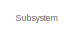
[diagram: root canvas - part 1/33, top left region]
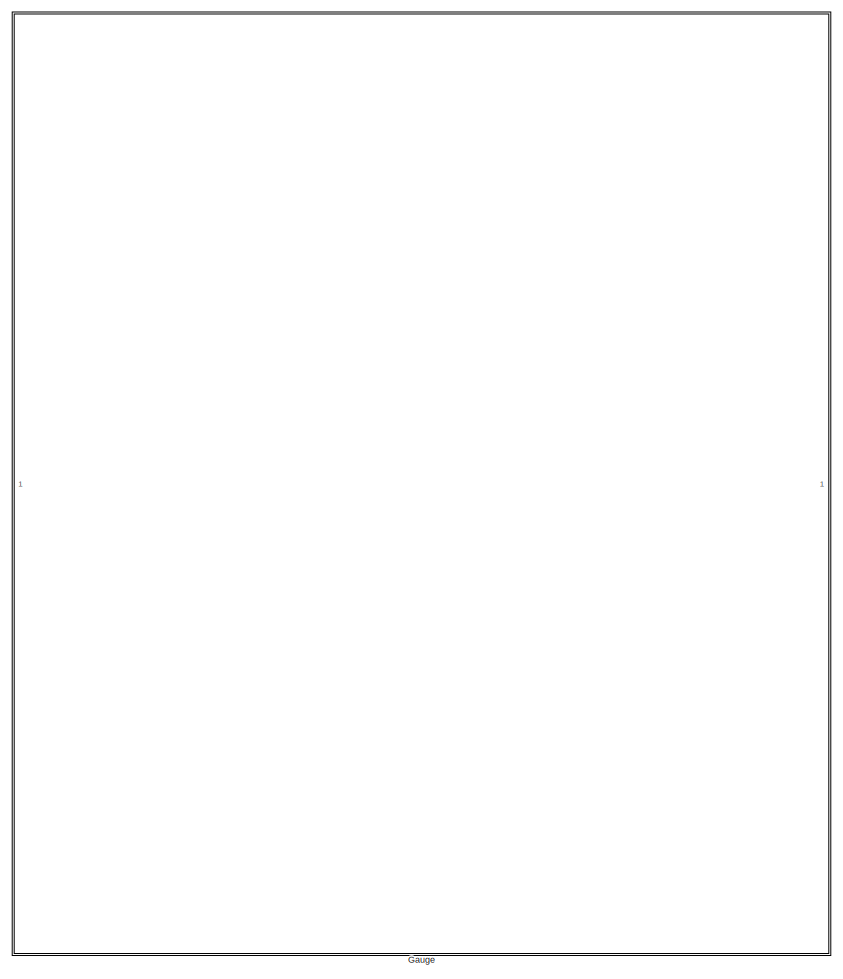
[diagram: root canvas - part 2/33, top left region]
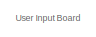
[diagram: root canvas - part 3/33, top center region]
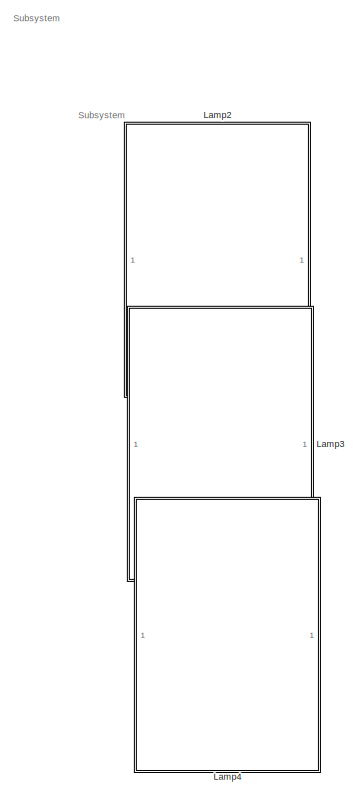
[diagram: root canvas - part 4/33, top center region]
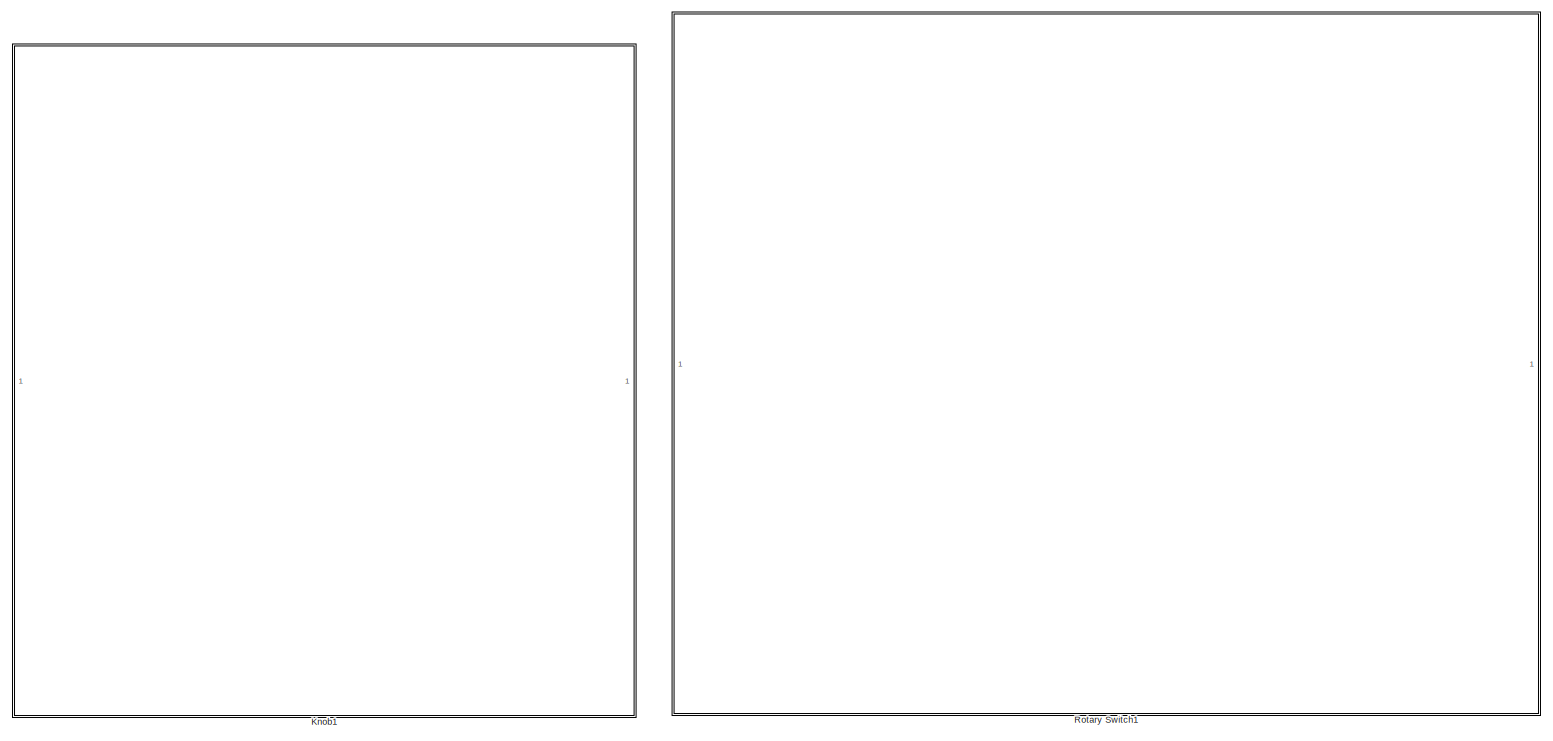
[diagram: root canvas - part 5/33, top right region]
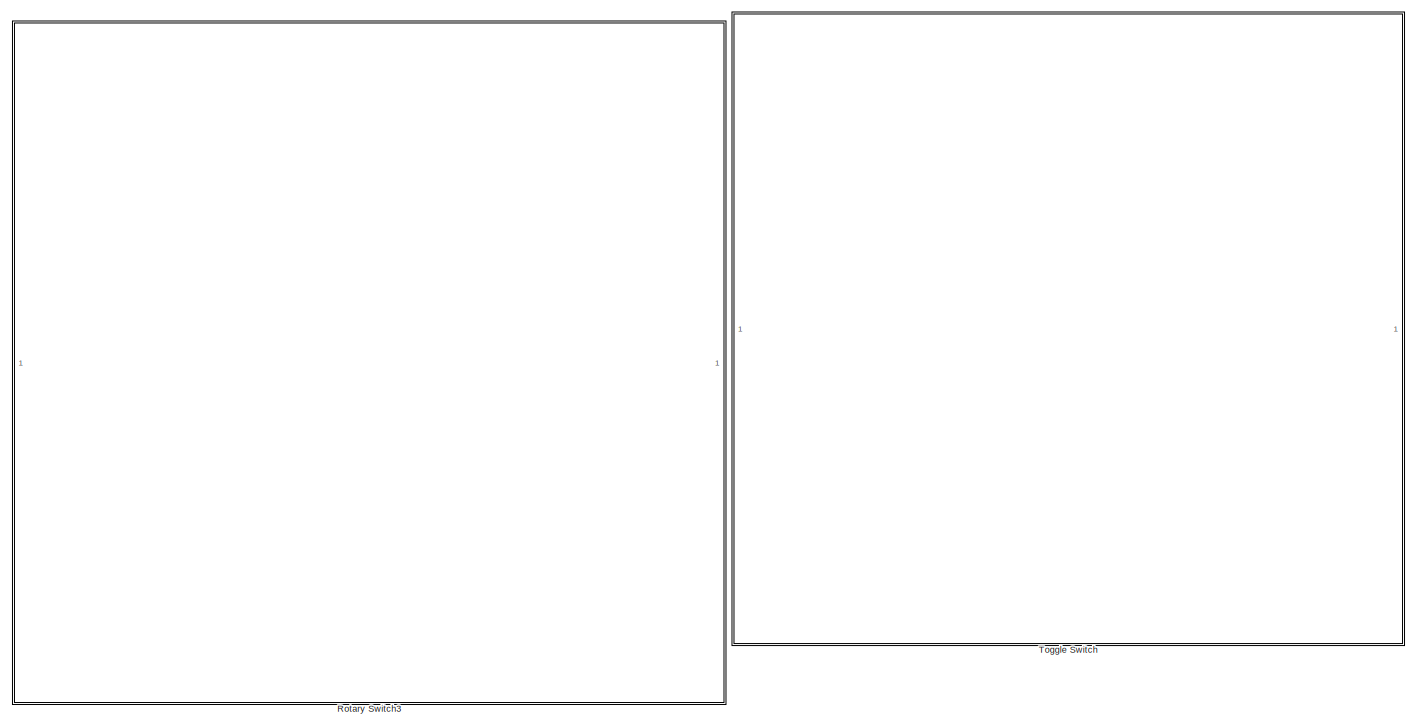
[diagram: root canvas - part 6/33, top center region]
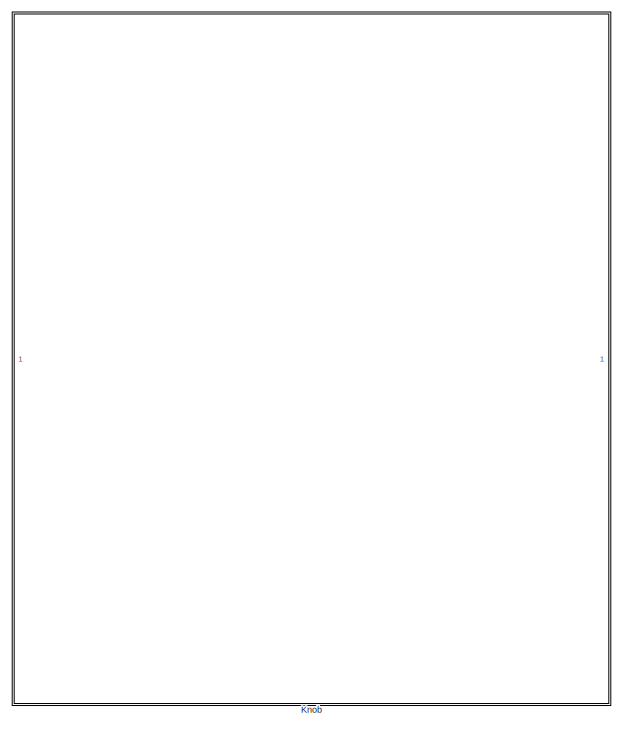
[diagram: root canvas - part 7/33, top right region]
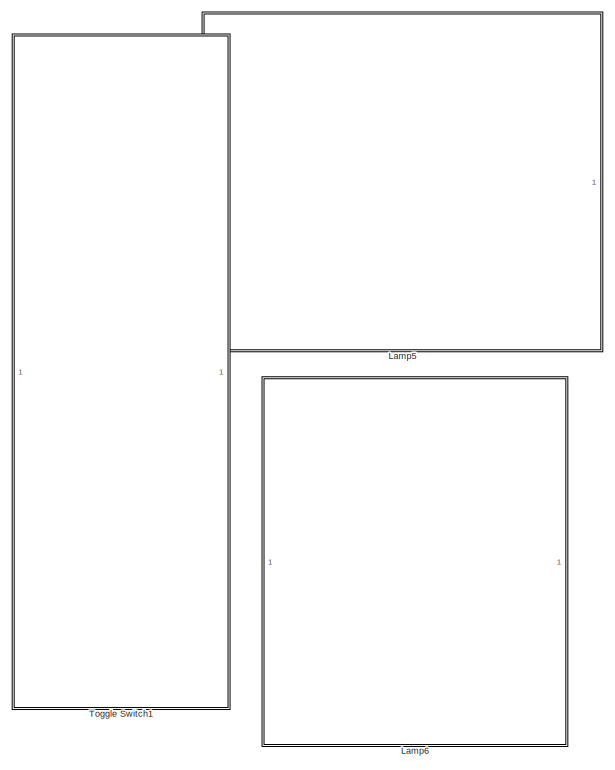
[diagram: root canvas - part 8/33, top right region]
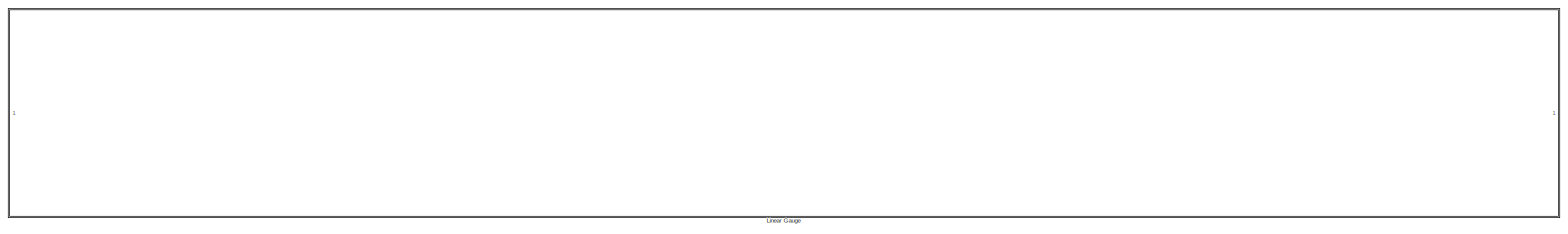
[diagram: root canvas - part 9/33, top left region]
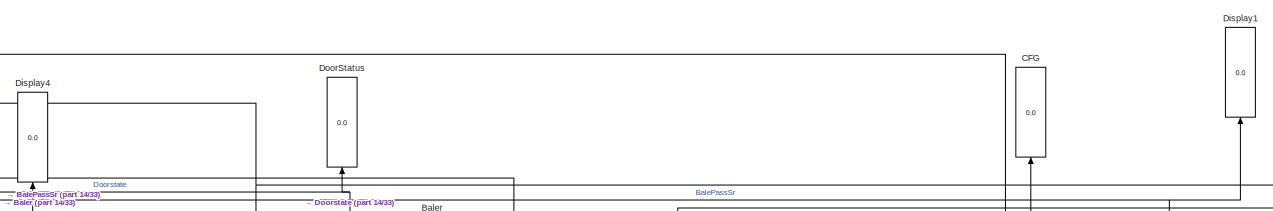
[diagram: root canvas - part 10/33, top right region]
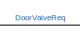
[diagram: root canvas - part 11/33, top center region]
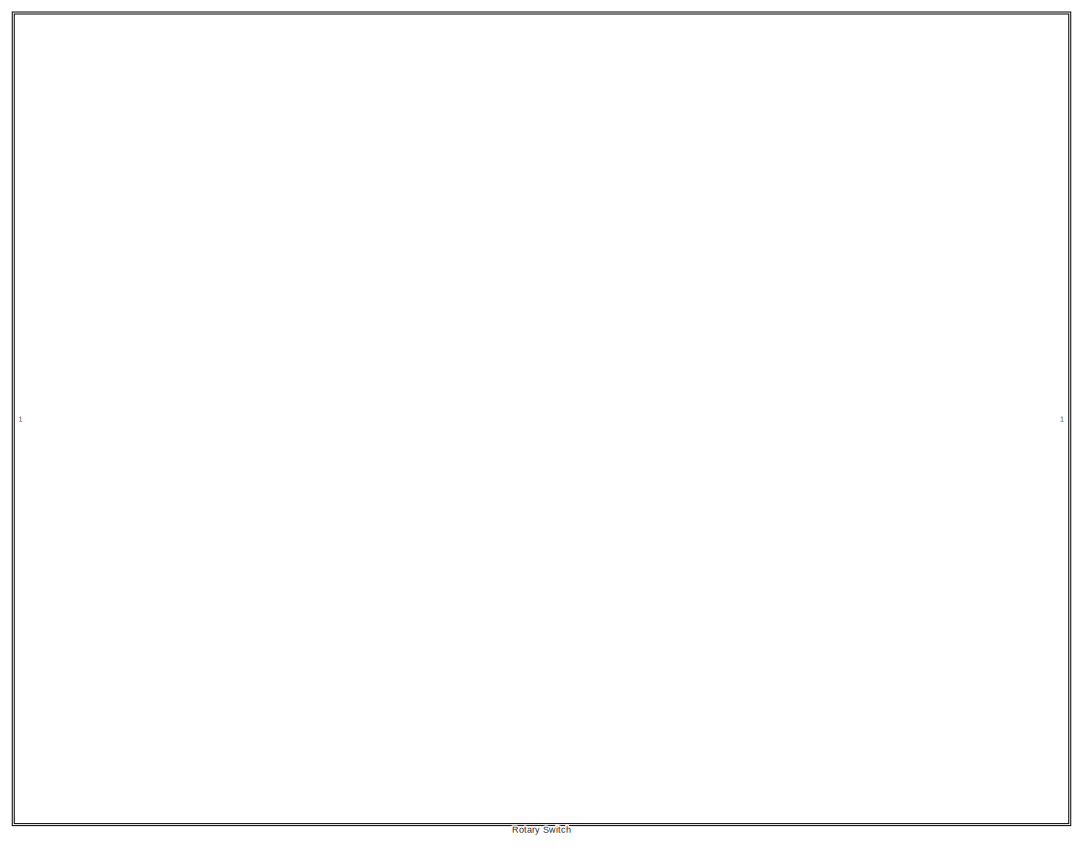
[diagram: root canvas - part 12/33, middle left region]
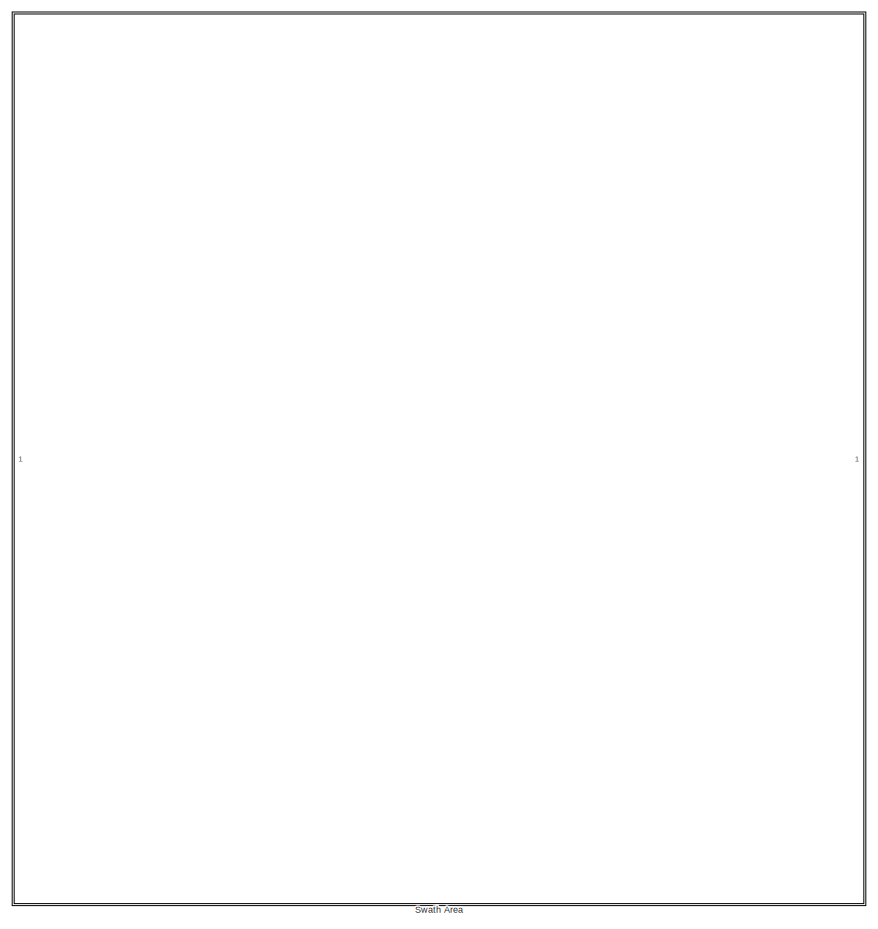
[diagram: root canvas - part 13/33, middle left region]
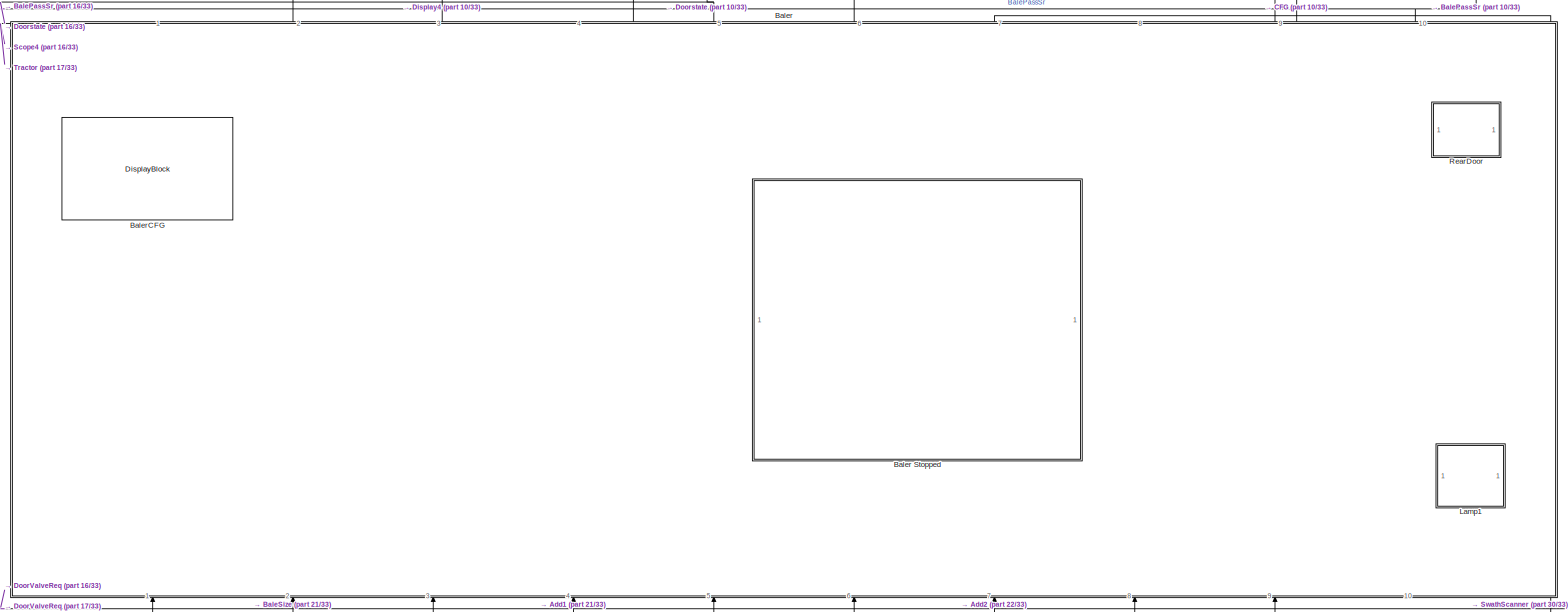
[diagram: root canvas - part 14/33, middle right region]
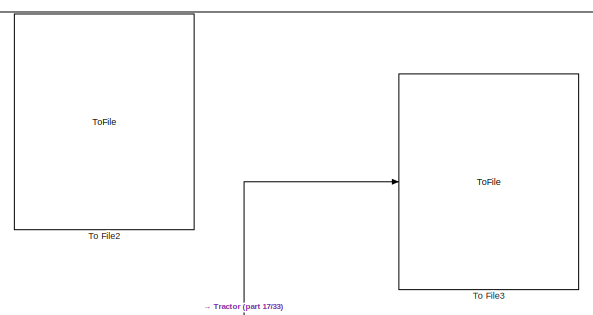
[diagram: root canvas - part 15/33, central region]
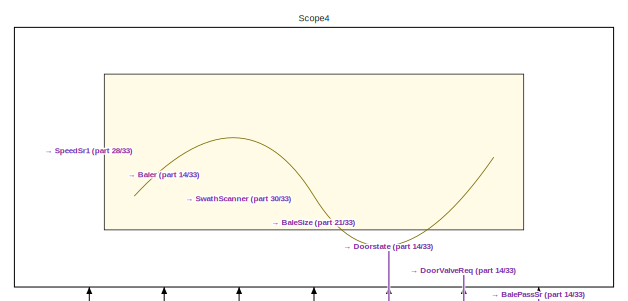
[diagram: root canvas - part 16/33, central region]
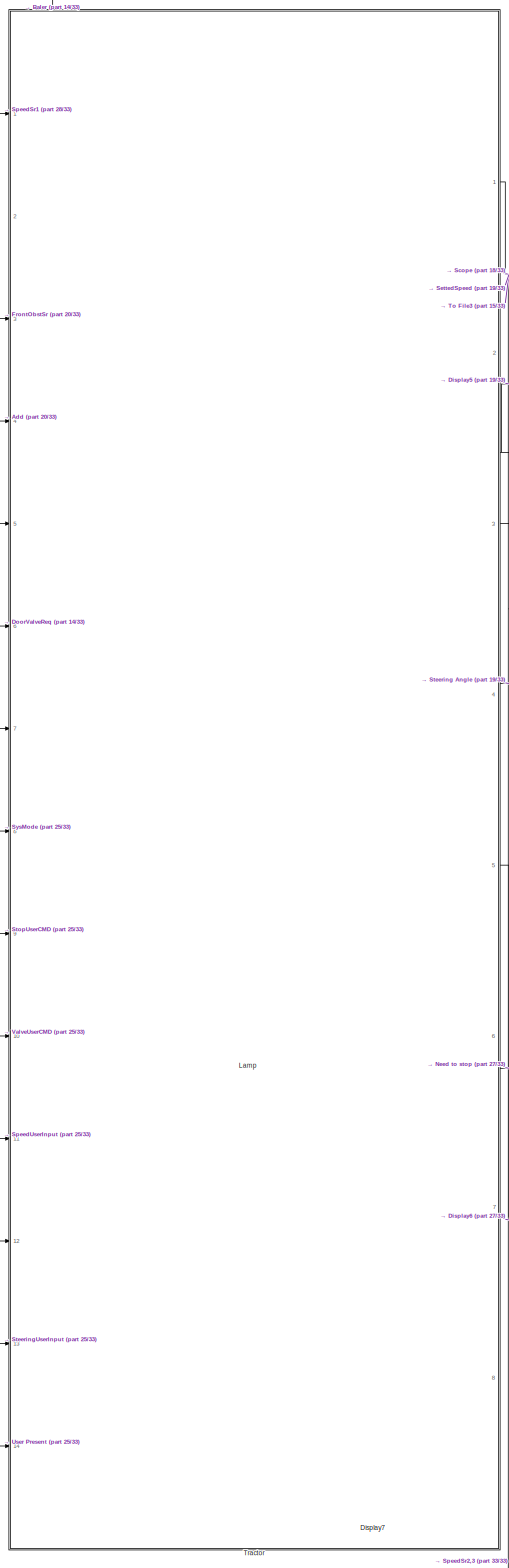
[diagram: root canvas - part 17/33, central region]
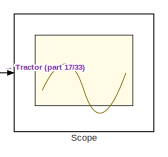
[diagram: root canvas - part 18/33, central region]
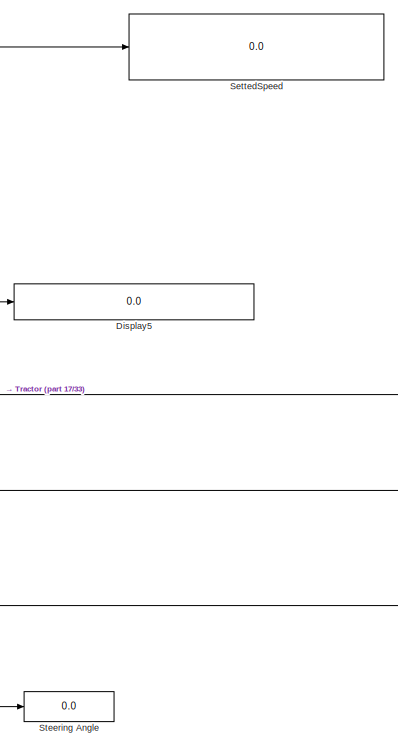
[diagram: root canvas - part 19/33, central region]
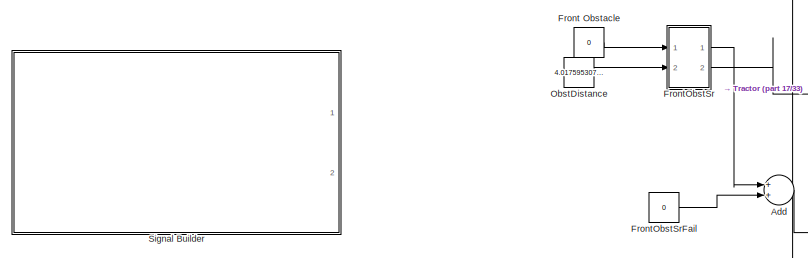
[diagram: root canvas - part 20/33, middle left region]
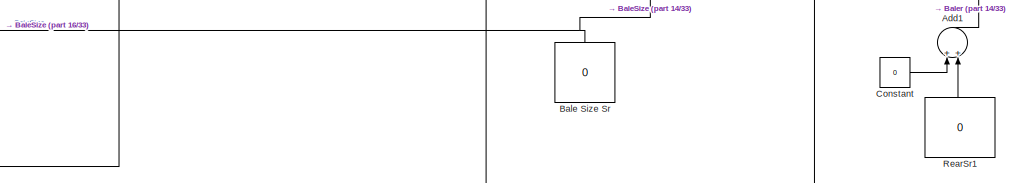
[diagram: root canvas - part 21/33, middle right region]
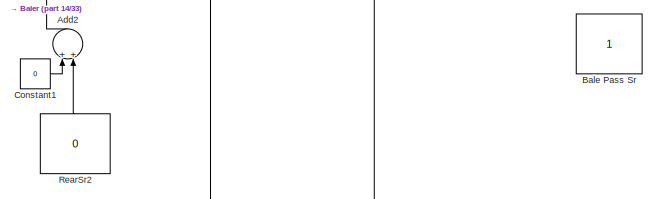
[diagram: root canvas - part 22/33, middle right region]
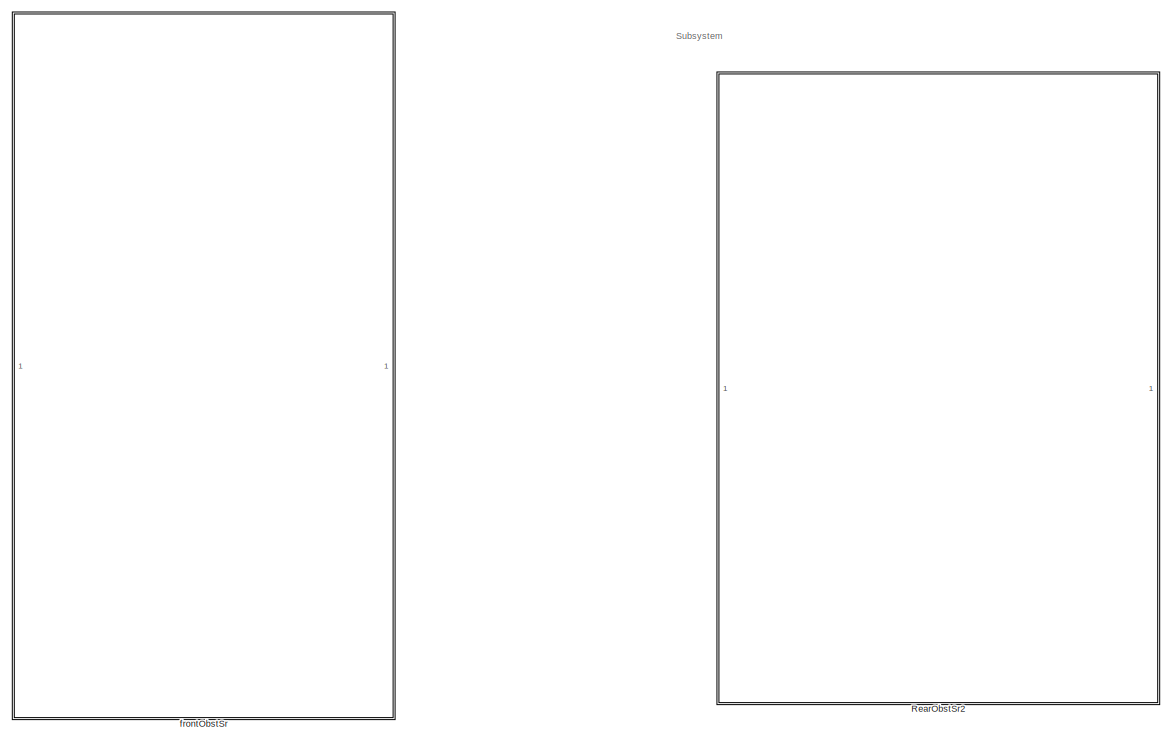
[diagram: root canvas - part 23/33, middle left region]
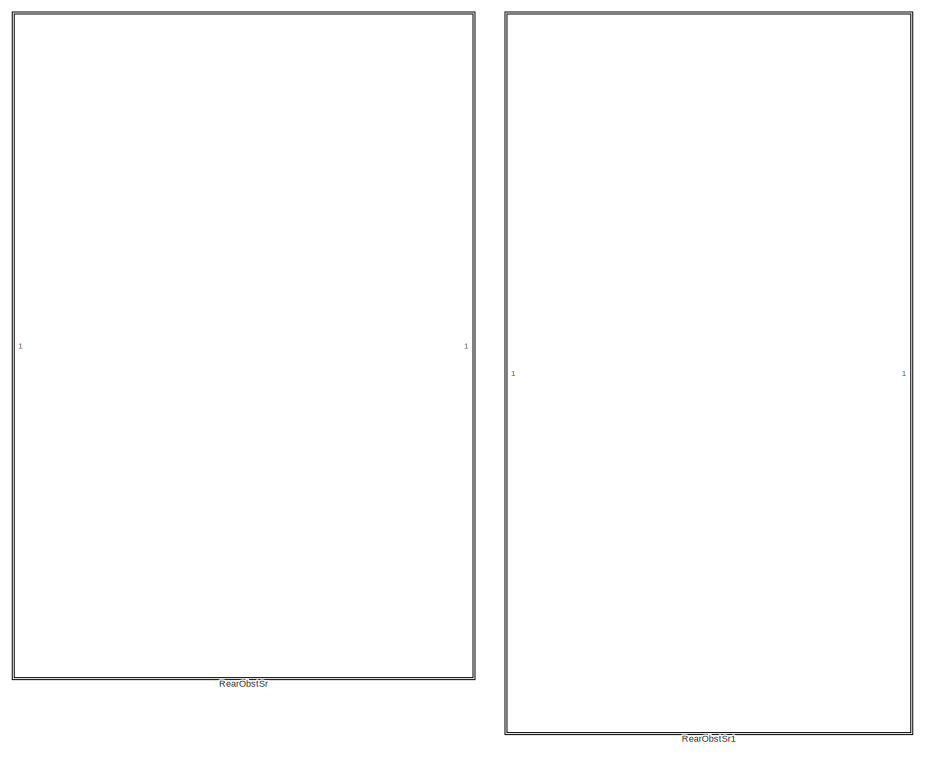
[diagram: root canvas - part 24/33, middle left region]
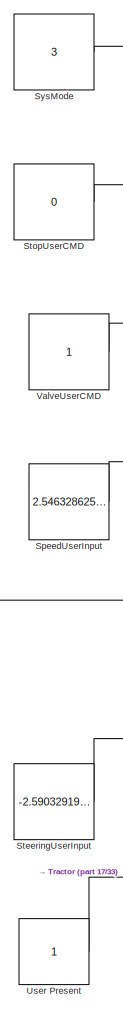
[diagram: root canvas - part 25/33, bottom center region]
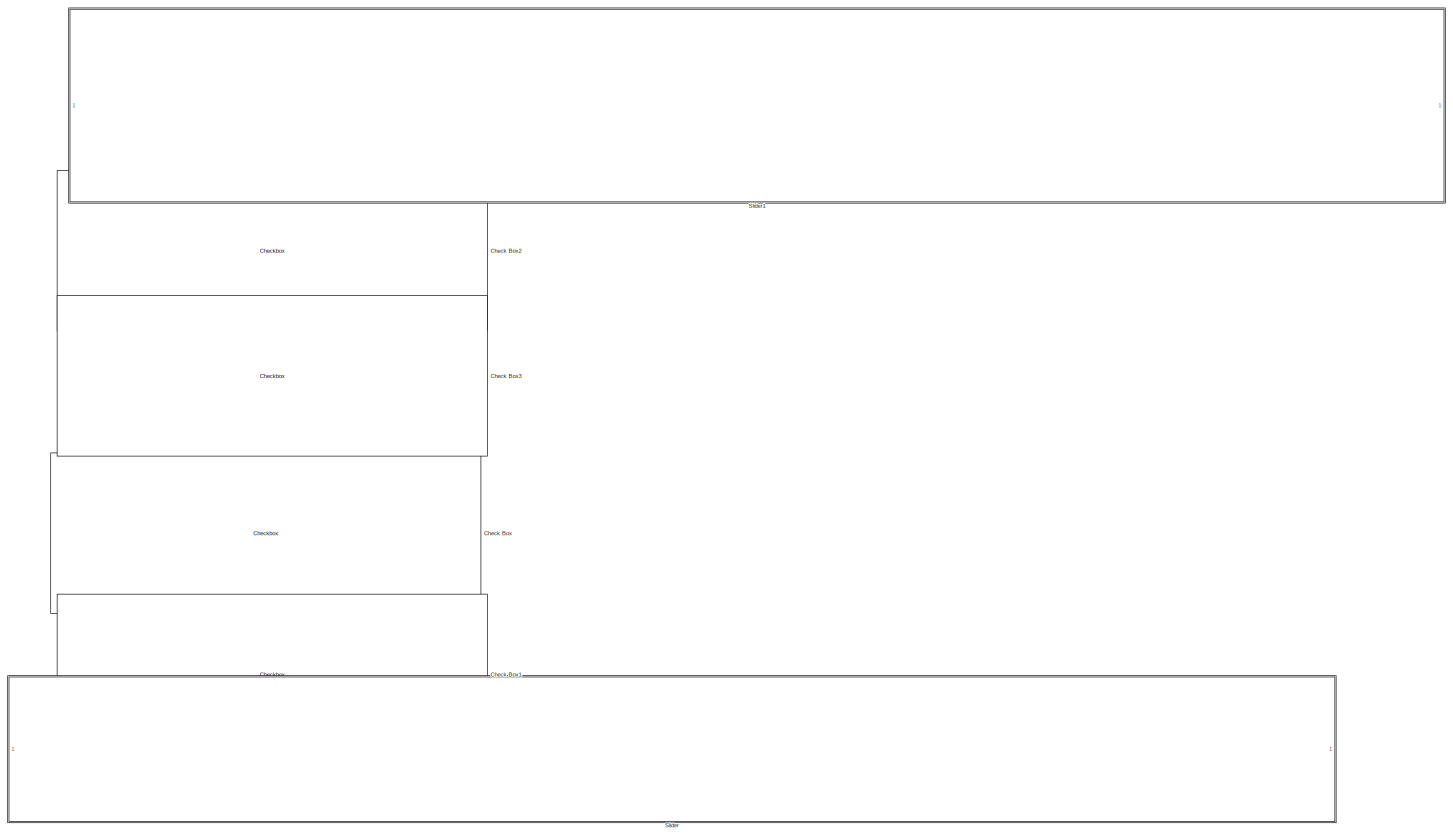
[diagram: root canvas - part 26/33, bottom left region]
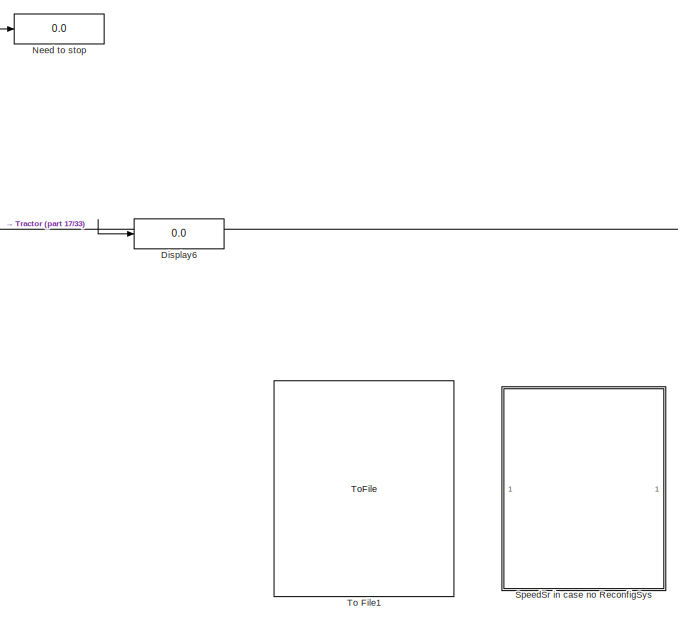
[diagram: root canvas - part 27/33, bottom center region]
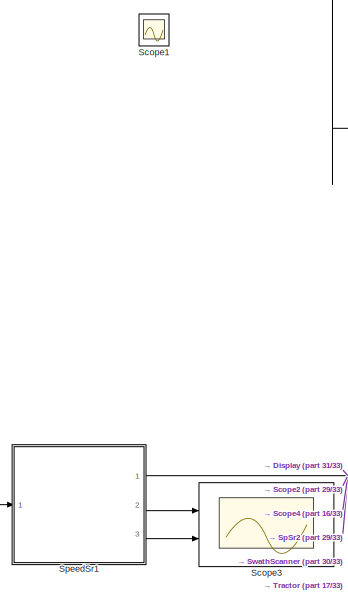
[diagram: root canvas - part 28/33, bottom left region]
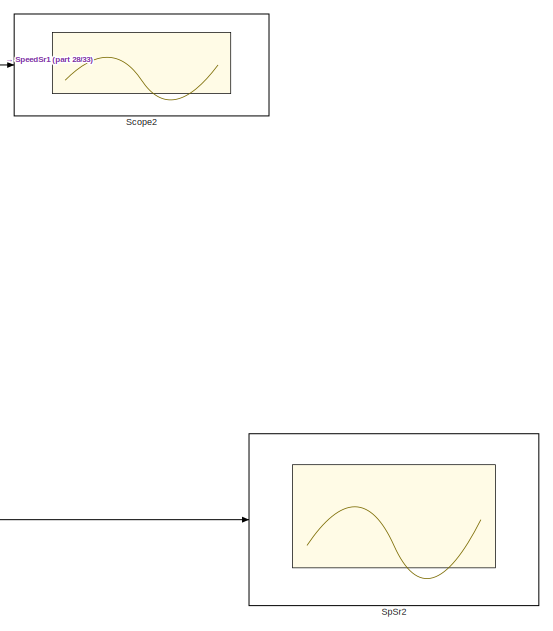
[diagram: root canvas - part 29/33, bottom center region]
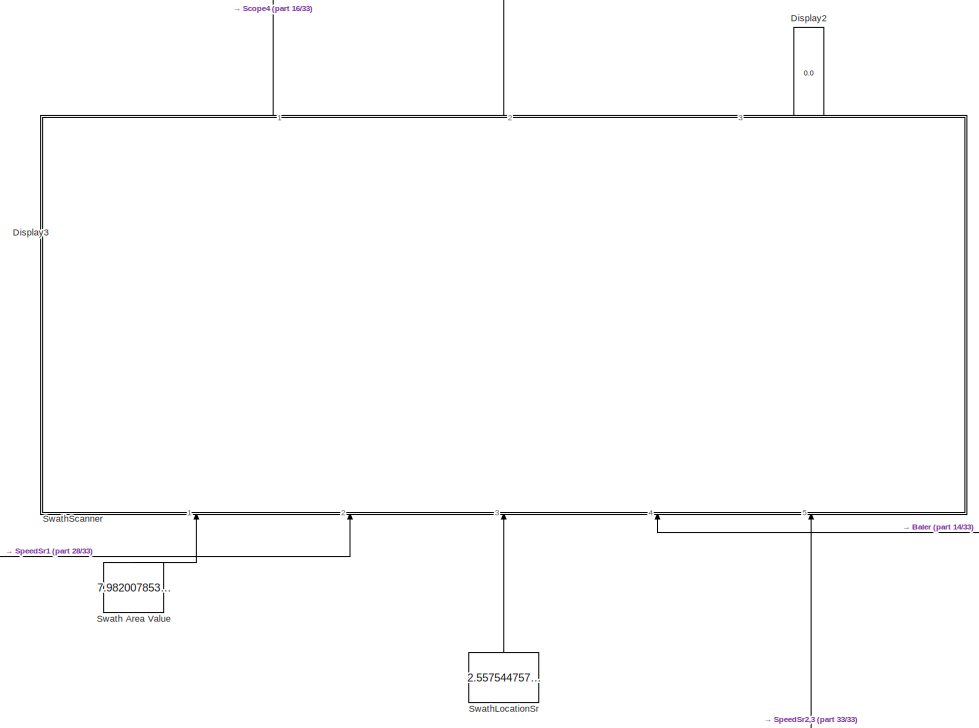
[diagram: root canvas - part 30/33, bottom right region]
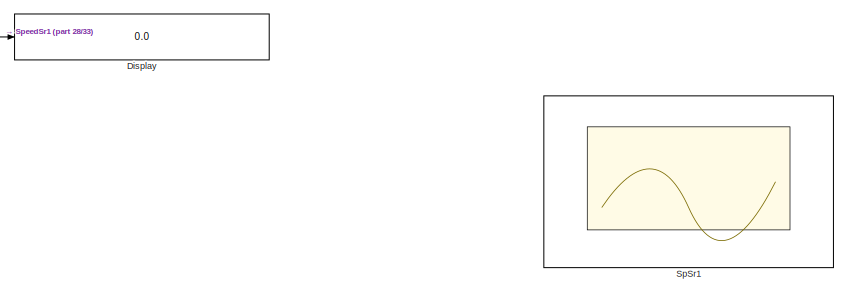
[diagram: root canvas - part 31/33, bottom center region]
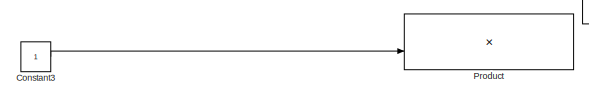
[diagram: root canvas - part 32/33, bottom center region]
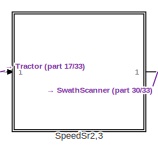
[diagram: root canvas - part 33/33, bottom left region]
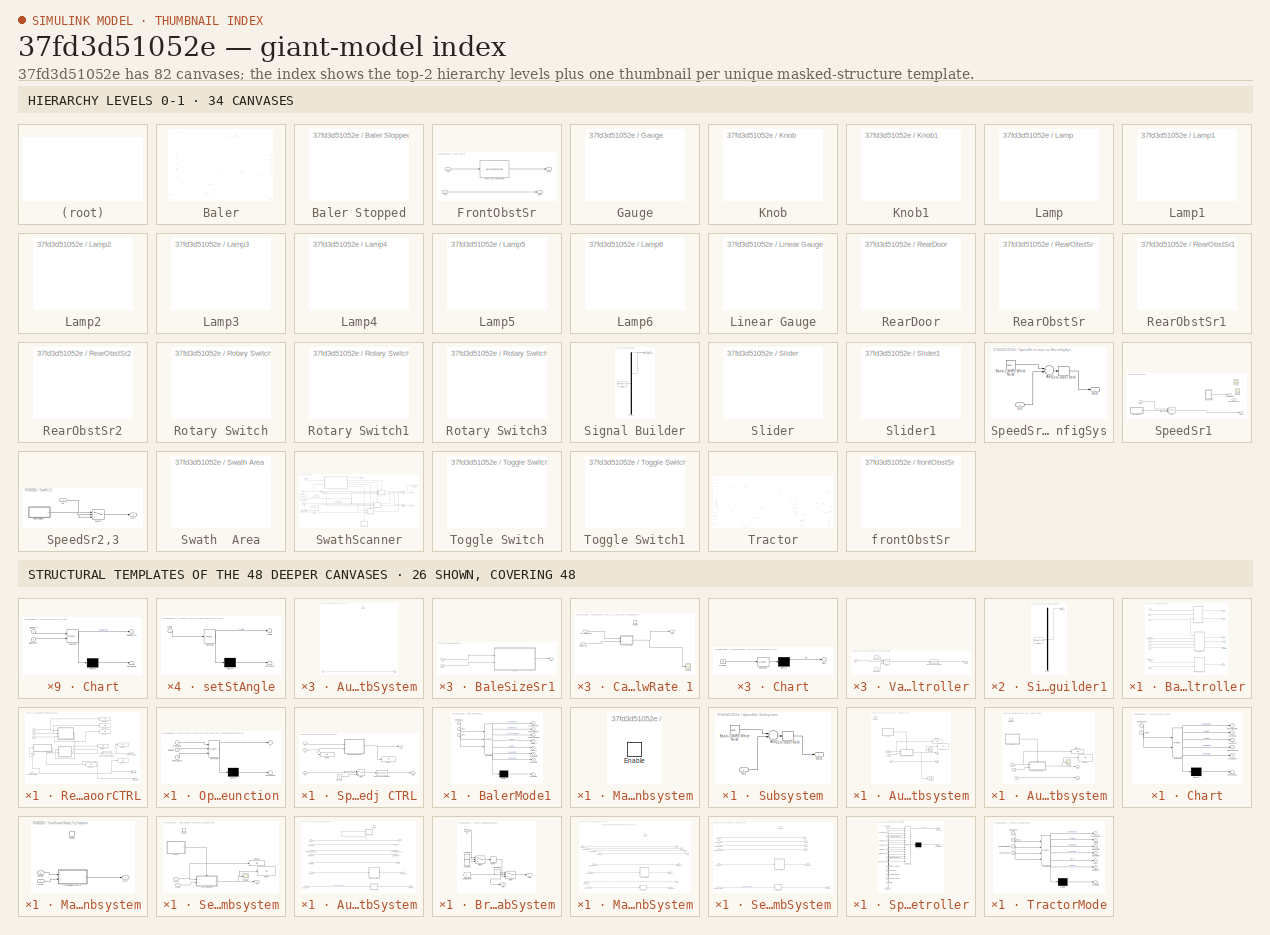
[diagram: thumbnail index - top-2 hierarchy levels (34 canvases) + 26 structural-template representatives of the remaining 48 canvases]
MODEL slx_37fd3d51052e
KIND model
CONFIG AbsTol = auto
CONFIG EnableMultiTasking = off
CONFIG FixedStep = auto
CONFIG MaxStep = auto
CONFIG MinStep = auto
CONFIG RelTol = 1e-3
CONFIG SampleTimeConstraint = Unconstrained
CONFIG Solver = VariableStepAuto
CONFIG SolverName = VariableStepAuto
CONFIG StartTime = 0.0
CONFIG StopTime = inf
BLOCK [Sum] Add
  InputSameDT = off
  OutDataTypeStr = Inherit: Inherit via internal rule
  Ports = [2, 1]
  SaturateOnIntegerOverflow = off
BLOCK [Sum] Add1
  InputSameDT = off
  OutDataTypeStr = Inherit: Inherit via internal rule
  Ports = [2, 1]
  SaturateOnIntegerOverflow = off
BLOCK [Sum] Add2
  InputSameDT = off
  OutDataTypeStr = Inherit: Inherit via internal rule
  Ports = [2, 1]
  SaturateOnIntegerOverflow = off
BLOCK [Constant] Bale Pass Sr
BLOCK [Constant] Bale Size Sr
  Value = 0
BLOCK [SubSystem] Baler
  Ports = [10, 10]
  RequestExecContextInheritance = off
  Variant = off
BLOCK [SubSystem] Baler Stopped
  DialogController = hmiCreateDDGDialog
  IsWebBlock = on
  MaskHideContents = on
  Ports = []
  RequestExecContextInheritance = off
  Variant = off
BLOCK [SubSystem] Baler/AutoCfg_1 SubSystem
  Ports = [1, 1, 1]
  RequestExecContextInheritance = off
  Variant = off
BLOCK [EnablePort] Baler/AutoCfg_1 SubSystem/Enable
  Ports = []
BLOCK [Inport] Baler/AutoCfg_1 SubSystem/In4
  IconDisplay = Port number
BLOCK [Outport] Baler/AutoCfg_1 SubSystem/Out5
  IconDisplay = Port number
BLOCK [SubSystem] Baler/AutoCfg_2 Subsystem
  Ports = [1, 1, 1]
  RequestExecContextInheritance = off
  Variant = off
BLOCK [EnablePort] Baler/AutoCfg_2 Subsystem/Enable
  Ports = []
BLOCK [Inport] Baler/AutoCfg_2 Subsystem/In4
  IconDisplay = Port number
BLOCK [Outport] Baler/AutoCfg_2 Subsystem/Out5
  IconDisplay = Port number
BLOCK [Inport] Baler/BaleOutSr
  IconDisplay = Port number
  Port = 10
BLOCK [Inport] Baler/BaleSizeSr
  IconDisplay = Port number
  Port = 2
BLOCK [SubSystem] Baler/BaleSizeSr1
  Ports = [2, 1]
  RequestExecContextInheritance = off
  Variant = off
BLOCK [SubSystem] Baler/BaleSizeSr1/Chart
  ErrorFcn = Stateflow.Translate.translate
  PermitHierarchicalResolution = ExplicitOnly
  Ports = [2, 1]
  RequestExecContextInheritance = off
  SFBlockType = Chart
  TreatAsAtomicUnit = on
  Variant = off
BLOCK [Demux] Baler/BaleSizeSr1/Chart/ Demux 
  Outputs = 1
  Ports = [1, 1]
BLOCK [S-Function] Baler/BaleSizeSr1/Chart/ SFunction 
  EnableBusSupport = on
  FunctionName = sf_sfun
  PortCounts = [2 2]
  Ports = [2, 2]
  SFcnIsStateOwnerBlock = off
  SFunctionDeploymentMode = off
  Tag = Stateflow S-Function TIA 6
BLOCK [Terminator] Baler/BaleSizeSr1/Chart/ Terminator 
BLOCK [Inport] Baler/BaleSizeSr1/Chart/BaleSizeIn
  IconDisplay = Port number
BLOCK [Outport] Baler/BaleSizeSr1/Chart/BaleSizeOut
  IconDisplay = Port number
BLOCK [Inport] Baler/BaleSizeSr1/Chart/BaleState
  IconDisplay = Port number
  Port = 2
BLOCK [Inport] Baler/BaleSizeSr1/In1
  IconDisplay = Port number
BLOCK [Inport] Baler/BaleSizeSr1/In2
  IconDisplay = Port number
  Port = 2
BLOCK [Outport] Baler/BaleSizeSr1/Out1
  IconDisplay = Port number
BLOCK [Outport] Baler/BaleState
  IconDisplay = Port number
  Port = 10
BLOCK [SubSystem] Baler/Baler Controller
  Ports = [9, 6]
  RequestExecContextInheritance = off
  Variant = off
BLOCK [Outport] Baler/Baler Controller/BaleState
  IconDisplay = Port number
  Port = 6
BLOCK [Inport] Baler/Baler Controller/In1
  IconDisplay = Port number
BLOCK [Inport] Baler/Baler Controller/In2
  IconDisplay = Port number
  Port = 2
BLOCK [Inport] Baler/Baler Controller/In3
  IconDisplay = Port number
  Port = 3
BLOCK [Inport] Baler/Baler Controller/In6
  IconDisplay = Port number
  Port = 6
BLOCK [Inport] Baler/Baler Controller/In7
  IconDisplay = Port number
  Port = 7
BLOCK [Inport] Baler/Baler Controller/In8
  IconDisplay = Port number
  Port = 8
BLOCK [Inport] Baler/Baler Controller/In9
  IconDisplay = Port number
  Port = 9
BLOCK [Outport] Baler/Baler Controller/Out1
  IconDisplay = Port number
BLOCK [Outport] Baler/Baler Controller/Out2
  IconDisplay = Port number
  Port = 2
BLOCK [Outport] Baler/Baler Controller/Out3
  IconDisplay = Port number
  Port = 3
BLOCK [Outport] Baler/Baler Controller/Out4
  IconDisplay = Port number
  Port = 4
BLOCK [Outport] Baler/Baler Controller/Out5
  IconDisplay = Port number
  Port = 5
BLOCK [SubSystem] Baler/Baler Controller/RearDoorCTRL
  Ports = [5, 3]
  RequestExecContextInheritance = off
  Variant = off
BLOCK [Outport] Baler/Baler Controller/RearDoorCTRL/BaleState
  IconDisplay = Port number
  Port = 3
BLOCK [SubSystem] Baler/Baler Controller/RearDoorCTRL/Chart
  ErrorFcn = Stateflow.Translate.translate
  PermitHierarchicalResolution = ExplicitOnly
  Ports = [1, 1]
  RequestExecContextInheritance = off
  SFBlockType = Chart
  TreatAsAtomicUnit = on
  Variant = off
BLOCK [Demux] Baler/Baler Controller/RearDoorCTRL/Chart/ Demux 
  Outputs = 1
  Ports = [1, 1]
BLOCK [S-Function] Baler/Baler Controller/RearDoorCTRL/Chart/ SFunction 
  EnableBusSupport = on
  FunctionName = sf_sfun
  PortCounts = [1 2]
  Ports = [1, 2]
  SFcnIsStateOwnerBlock = off
  SFunctionDeploymentMode = off
  Tag = Stateflow S-Function TIA 4
BLOCK [Terminator] Baler/Baler Controller/RearDoorCTRL/Chart/ Terminator 
BLOCK [Outport] Baler/Baler Controller/RearDoorCTRL/Chart/BaleState
  IconDisplay = Port number
BLOCK [Inport] Baler/Baler Controller/RearDoorCTRL/Chart/DoorState
  IconDisplay = Port number
BLOCK [SubSystem] Baler/Baler Controller/RearDoorCTRL/CloseRearDoor
  ErrorFcn = Stateflow.Translate.translate
  PermitHierarchicalResolution = ExplicitOnly
  Ports = [2, 1]
  RequestExecContextInheritance = off
  SFBlockType = MATLAB Function
  TreatAsAtomicUnit = on
  Variant = off
BLOCK [Demux] Baler/Baler Controller/RearDoorCTRL/CloseRearDoor/ Demux 
  Outputs = 1
  Ports = [1, 1]
BLOCK [S-Function] Baler/Baler Controller/RearDoorCTRL/CloseRearDoor/ SFunction 
  EnableBusSupport = on
  FunctionName = sf_sfun
  PortCounts = [2 2]
  Ports = [2, 2]
  SFcnIsStateOwnerBlock = off
  SFunctionDeploymentMode = off
  Tag = Stateflow S-Function TIA 12
BLOCK [Terminator] Baler/Baler Controller/RearDoorCTRL/CloseRearDoor/ Terminator 
BLOCK [Inport] Baler/Baler Controller/RearDoorCTRL/CloseRearDoor/BaleStateSr
  IconDisplay = Port number
  Port = 2
BLOCK [Inport] Baler/Baler Controller/RearDoorCTRL/CloseRearDoor/DoorStatus
  IconDisplay = Port number
BLOCK [Outport] Baler/Baler Controller/RearDoorCTRL/CloseRearDoor/y
  IconDisplay = Port number
BLOCK [DataTypeConversion] Baler/Baler Controller/RearDoorCTRL/Data Type Conversion1
  OutDataTypeStr = boolean
  RndMeth = Floor
  SaturateOnIntegerOverflow = off
BLOCK [Display] Baler/Baler Controller/RearDoorCTRL/Display
  Decimation = 1
  Ports = [1]
BLOCK [Display] Baler/Baler Controller/RearDoorCTRL/Display1
  Decimation = 1
  Ports = [1]
BLOCK [Display] Baler/Baler Controller/RearDoorCTRL/Display2
  Decimation = 1
  Ports = [1]
BLOCK [Display] Baler/Baler Controller/RearDoorCTRL/Display3
  Decimation = 1
  Ports = [1]
BLOCK [Display] Baler/Baler Controller/RearDoorCTRL/Display4
  Decimation = 1
  Ports = [1]
BLOCK [Display] Baler/Baler Controller/RearDoorCTRL/Display5
  Decimation = 1
  Ports = [1]
BLOCK [Display] Baler/Baler Controller/RearDoorCTRL/Display6
  Decimation = 1
  Ports = [1]
BLOCK [Outport] Baler/Baler Controller/RearDoorCTRL/DoorState
  IconDisplay = Port number
  Port = 2
BLOCK [Inport] Baler/Baler Controller/RearDoorCTRL/DoorValveCmd
  IconDisplay = Port number
  Port = 5
BLOCK [Inport] Baler/Baler Controller/RearDoorCTRL/In1
  IconDisplay = Port number
BLOCK [Inport] Baler/Baler Controller/RearDoorCTRL/In2
  IconDisplay = Port number
  Port = 2
BLOCK [Inport] Baler/Baler Controller/RearDoorCTRL/In3
  IconDisplay = Port number
  Port = 3
BLOCK [Inport] Baler/Baler Controller/RearDoorCTRL/In4
  IconDisplay = Port number
  Port = 4
BLOCK [SubSystem] Baler/Baler Controller/RearDoorCTRL/OpenRearDoorFunction
  ErrorFcn = Stateflow.Translate.translate
  PermitHierarchicalResolution = ExplicitOnly
  Ports = [3, 1]
  RequestExecContextInheritance = off
  SFBlockType = MATLAB Function
  TreatAsAtomicUnit = on
  Variant = off
BLOCK [Demux] Baler/Baler Controller/RearDoorCTRL/OpenRearDoorFunction/ Demux 
  Outputs = 1
  Ports = [1, 1]
BLOCK [S-Function] Baler/Baler Controller/RearDoorCTRL/OpenRearDoorFunction/ SFunction 
  EnableBusSupport = on
  FunctionName = sf_sfun
  PortCounts = [3 2]
  Ports = [3, 2]
  SFcnIsStateOwnerBlock = off
  SFunctionDeploymentMode = off
  Tag = Stateflow S-Function TIA 29
BLOCK [Terminator] Baler/Baler Controller/RearDoorCTRL/OpenRearDoorFunction/ Terminator 
BLOCK [Inport] Baler/Baler Controller/RearDoorCTRL/OpenRearDoorFunction/BaleSize
  IconDisplay = Port number
  Port = 2
BLOCK [Inport] Baler/Baler Controller/RearDoorCTRL/OpenRearDoorFunction/RearObstSr
  IconDisplay = Port number
  Port = 3
BLOCK [Inport] Baler/Baler Controller/RearDoorCTRL/OpenRearDoorFunction/StopSignal
  IconDisplay = Port number
BLOCK [Outport] Baler/Baler Controller/RearDoorCTRL/OpenRearDoorFunction/Y
  IconDisplay = Port number
BLOCK [Outport] Baler/Baler Controller/RearDoorCTRL/SendValvReq
  IconDisplay = Port number
BLOCK [SubSystem] Baler/Baler Controller/SpeedAdj CTRL
  Ports = [3, 2]
  RequestExecContextInheritance = off
  Variant = off
BLOCK [Constant] Baler/Baler Controller/SpeedAdj CTRL/Constant
  Value = 0
BLOCK [DataTypeConversion] Baler/Baler Controller/SpeedAdj CTRL/Data Type Conversion1
  OutDataTypeStr = double
  RndMeth = Floor
  SaturateOnIntegerOverflow = off
BLOCK [Display] Baler/Baler Controller/SpeedAdj CTRL/Display
  Decimation = 1
  Ports = [1]
BLOCK [Display] Baler/Baler Controller/SpeedAdj CTRL/Display1
  Decimation = 1
  Ports = [1]
BLOCK [Inport] Baler/Baler Controller/SpeedAdj CTRL/In1
  IconDisplay = Port number
  Port = 2
BLOCK [Inport] Baler/Baler Controller/SpeedAdj CTRL/In2
  IconDisplay = Port number
  Port = 3
BLOCK [Inport] Baler/Baler Controller/SpeedAdj CTRL/In3
  IconDisplay = Port number
BLOCK [Outport] Baler/Baler Controller/SpeedAdj CTRL/Out1
  IconDisplay = Port number
BLOCK [Outport] Baler/Baler Controller/SpeedAdj CTRL/Out2
  IconDisplay = Port number
  Port = 2
BLOCK [SubSystem] Baler/Baler Controller/SpeedAdj CTRL/SpeedRequestCTRL
  ErrorFcn = Stateflow.Translate.translate
  PermitHierarchicalResolution = ExplicitOnly
  Ports = [2, 1]
  RequestExecContextInheritance = off
  SFBlockType = Chart
  TreatAsAtomicUnit = on
  Variant = off
BLOCK [Demux] Baler/Baler Controller/SpeedAdj CTRL/SpeedRequestCTRL/ Demux 
  Outputs = 1
  Ports = [1, 1]
BLOCK [S-Function] Baler/Baler Controller/SpeedAdj CTRL/SpeedRequestCTRL/ SFunction 
  EnableBusSupport = on
  FunctionName = sf_sfun
  PortCounts = [2 2]
  Ports = [2, 2]
  SFcnIsStateOwnerBlock = off
  SFunctionDeploymentMode = off
  Tag = Stateflow S-Function TIA 27
BLOCK [Terminator] Baler/Baler Controller/SpeedAdj CTRL/SpeedRequestCTRL/ Terminator 
BLOCK [Inport] Baler/Baler Controller/SpeedAdj CTRL/SpeedRequestCTRL/CSpeed
  IconDisplay = Port number
BLOCK [Inport] Baler/Baler Controller/SpeedAdj CTRL/SpeedRequestCTRL/FR
  IconDisplay = Port number
  Port = 2
BLOCK [Outport] Baler/Baler Controller/SpeedAdj CTRL/SpeedRequestCTRL/SpeedReq
  IconDisplay = Port number
BLOCK [Switch] Baler/Baler Controller/SpeedAdj CTRL/Switch
  Criteria = u2 > Threshold
  InputSameDT = off
  SaturateOnIntegerOverflow = off
BLOCK [SubSystem] Baler/Baler Controller/SteeringAdjCTRL
  Ports = [2, 1]
  RequestExecContextInheritance = off
  Variant = off
BLOCK [SubSystem] Baler/Baler Controller/SteeringAdjCTRL/CalcTargetAngel
  ErrorFcn = Stateflow.Translate.translate
  PermitHierarchicalResolution = ExplicitOnly
  Ports = [2, 1]
  RequestExecContextInheritance = off
  SFBlockType = MATLAB Function
  TreatAsAtomicUnit = on
  Variant = off
BLOCK [Demux] Baler/Baler Controller/SteeringAdjCTRL/CalcTargetAngel/ Demux 
  Outputs = 1
  Ports = [1, 1]
BLOCK [S-Function] Baler/Baler Controller/SteeringAdjCTRL/CalcTargetAngel/ SFunction 
  EnableBusSupport = on
  FunctionName = sf_sfun
  PortCounts = [2 2]
  Ports = [2, 2]
  SFcnIsStateOwnerBlock = off
  SFunctionDeploymentMode = off
  Tag = Stateflow S-Function TIA 30
BLOCK [Terminator] Baler/Baler Controller/SteeringAdjCTRL/CalcTargetAngel/ Terminator 
BLOCK [Inport] Baler/Baler Controller/SteeringAdjCTRL/CalcTargetAngel/SWL
  IconDisplay = Port number
  Port = 2
BLOCK [Inport] Baler/Baler Controller/SteeringAdjCTRL/CalcTargetAngel/Stop
  IconDisplay = Port number
BLOCK [Outport] Baler/Baler Controller/SteeringAdjCTRL/CalcTargetAngel/TargetAngle
  IconDisplay = Port number
BLOCK [Inport] Baler/Baler Controller/SteeringAdjCTRL/In1
  IconDisplay = Port number
BLOCK [Inport] Baler/Baler Controller/SteeringAdjCTRL/In2
  IconDisplay = Port number
  Port = 2
BLOCK [Outport] Baler/Baler Controller/SteeringAdjCTRL/Out1
  IconDisplay = Port number
BLOCK [Inport] Baler/Baler Controller/just  stop sign
  IconDisplay = Port number
  Port = 4
BLOCK [Inport] Baler/Baler Controller/just  stop sign1
  IconDisplay = Port number
  Port = 5
BLOCK [Outport] Baler/BalerCfg
  IconDisplay = Port number
  Port = 8
BLOCK [SubSystem] Baler/BalerMode1
  ErrorFcn = Stateflow.Translate.translate
  PermitHierarchicalResolution = ExplicitOnly
  Ports = [3, 7]
  RequestExecContextInheritance = off
  SFBlockType = Chart
  TreatAsAtomicUnit = on
  Variant = off
BLOCK [Demux] Baler/BalerMode1/ Demux 
  Outputs = 1
  Ports = [1, 1]
BLOCK [S-Function] Baler/BalerMode1/ SFunction 
  EnableBusSupport = on
  FunctionName = sf_sfun
  PortCounts = [3 8]
  Ports = [3, 8]
  SFcnIsStateOwnerBlock = off
  SFunctionDeploymentMode = off
  Tag = Stateflow S-Function TIA 7
BLOCK [Terminator] Baler/BalerMode1/ Terminator 
BLOCK [Outport] Baler/BalerMode1/AutoCfg_1
  IconDisplay = Port number
  Port = 4
BLOCK [Outport] Baler/BalerMode1/AutoCfg_2
  IconDisplay = Port number
  Port = 5
BLOCK [Outport] Baler/BalerMode1/BalerCfgMode
  IconDisplay = Port number
  Port = 2
BLOCK [Outport] Baler/BalerMode1/ManualCfg
  IconDisplay = Port number
  Port = 7
BLOCK [Inport] Baler/BalerMode1/ModeInput
  IconDisplay = Port number
BLOCK [Inport] Baler/BalerMode1/RSr1
  IconDisplay = Port number
  Port = 2
BLOCK [Inport] Baler/BalerMode1/RSr2
  IconDisplay = Port number
  Port = 3
BLOCK [Outport] Baler/BalerMode1/SemiAutoCfg
  IconDisplay = Port number
  Port = 6
BLOCK [Outport] Baler/BalerMode1/SysModeOut
  IconDisplay = Port number
BLOCK [Outport] Baler/BalerMode1/SysReconfigReq
  IconDisplay = Port number
  Port = 3
BLOCK [Outport] Baler/BrakeState
  IconDisplay = Port number
  Port = 3
BLOCK [Display] Baler/Display
  Decimation = 1
  Ports = [1]
BLOCK [Display] Baler/Display1
  Decimation = 1
  Ports = [1]
BLOCK [Outport] Baler/DoorState
  IconDisplay = Port number
  Port = 5
BLOCK [Outport] Baler/DoorValveReq
  IconDisplay = Port number
  Port = 4
BLOCK [SubSystem] Baler/ManualCfg Subsystem
  Ports = [0, 0, 1]
  RequestExecContextInheritance = off
  Variant = off
BLOCK [EnablePort] Baler/ManualCfg Subsystem/Enable
  Ports = []
BLOCK [Memory] Baler/Memory
BLOCK [Merge] Baler/Merge
  Inputs = 3
  Ports = [3, 1]
BLOCK [Inport] Baler/ModeCngCMD
  IconDisplay = Port number
  Port = 9
BLOCK [Outport] Baler/RcfgCMD
  IconDisplay = Port number
  Port = 7
BLOCK [Inport] Baler/RearDoorCmd
  IconDisplay = Port number
  Port = 8
BLOCK [Inport] Baler/RearObsSr1
  IconDisplay = Port number
  Port = 4
BLOCK [Inport] Baler/RearObstSr2
  IconDisplay = Port number
  Port = 7
BLOCK [SubSystem] Baler/SemiAutoCfg Subsystem
  Ports = [1, 1, 1]
  RequestExecContextInheritance = off
  Variant = off
BLOCK [EnablePort] Baler/SemiAutoCfg Subsystem/Enable
  Ports = []
BLOCK [Inport] Baler/SemiAutoCfg Subsystem/In4
  IconDisplay = Port number
BLOCK [Outport] Baler/SemiAutoCfg Subsystem/Out4
  IconDisplay = Port number
BLOCK [Outport] Baler/SetAngReq
  IconDisplay = Port number
  Port = 6
BLOCK [Outport] Baler/SetSpeedReq
  IconDisplay = Port number
BLOCK [Inport] Baler/StopComand
  IconDisplay = Port number
  Port = 3
BLOCK [Outport] Baler/StopReq 
  IconDisplay = Port number
  Port = 2
BLOCK [Inport] Baler/SwathLocation
  IconDisplay = Port number
  Port = 6
BLOCK [Inport] Baler/SwathVFlowRate
  IconDisplay = Port number
  Port = 5
BLOCK [Outport] Baler/SysReconfigReq
  IconDisplay = Port number
  Port = 9
BLOCK [UnitDelay] Baler/Unit Delay
  InputProcessing = Elements as channels (sample based)
  SampleTime = -1
BLOCK [Inport] Baler/settedSpeed 
  IconDisplay = Port number
BLOCK [DisplayBlock] BalerCFG
  Alignment = Center
  Format = long
  LabelPosition = Hide
  ModelName = TIA
  ShowFormattedStrings = off
  ShowInitialText = on
  WebBlockId = 152
BLOCK [Display] CFG
  Decimation = 1
  Ports = [1]
BLOCK [Checkbox] Check Box
  Checked = off
  Label = RearSr_1_Fail
  LabelPosition = Hide
  ModelName = TIA
  ShowInitialText = off
  WebBlockId = 154
BLOCK [Checkbox] Check Box1
  Checked = off
  Label = RearSr_2_Fail
  LabelPosition = Hide
  ModelName = TIA
  ShowInitialText = off
  WebBlockId = 155
BLOCK [Checkbox] Check Box2
  Checked = off
  Label = SpeedSr_Fail
  LabelPosition = Hide
  ModelName = TIA
  ShowInitialText = off
  WebBlockId = 156
BLOCK [Checkbox] Check Box3
  Checked = off
  Label = FrontObstSr_Fail
  LabelPosition = Hide
  ModelName = TIA
  ShowInitialText = off
  WebBlockId = 157
BLOCK [Constant] Constant
  Value = 0
BLOCK [Constant] Constant1
  Value = 0
BLOCK [Constant] Constant3
BLOCK [Display] Display
  Decimation = 1
  Ports = [1]
BLOCK [Display] Display1
  Decimation = 1
  Ports = [1]
BLOCK [Display] Display2
  Decimation = 1
  Ports = [1]
BLOCK [DisplayBlock] Display3
  Alignment = Center
  Format = long
  LabelPosition = Hide
  ModelName = TIA
  ShowFormattedStrings = off
  ShowInitialText = on
  WebBlockId = 163
BLOCK [Display] Display4
  Decimation = 1
  Ports = [1]
BLOCK [Display] Display5
  Decimation = 1
  Ports = [1]
BLOCK [Display] Display6
  Decimation = 1
  Ports = [1]
BLOCK [DisplayBlock] Display7
  Alignment = Center
  Format = long
  LabelPosition = Hide
  ModelName = TIA
  ShowFormattedStrings = off
  ShowInitialText = on
  WebBlockId = 167
BLOCK [Display] DoorStatus
  Decimation = 1
  Ports = [1]
BLOCK [Constant] Front Obstacle
  Value = 0
BLOCK [SubSystem] FrontObstSr
  Ports = [2, 2]
  RequestExecContextInheritance = off
  Variant = off
BLOCK [DataTypeConversion] FrontObstSr/Data Type Conversion
  OutDataTypeStr = boolean
  RndMeth = Floor
  SaturateOnIntegerOverflow = off
BLOCK [Inport] FrontObstSr/In1
  IconDisplay = Port number
BLOCK [Inport] FrontObstSr/In2
  IconDisplay = Port number
  Port = 2
BLOCK [Outport] FrontObstSr/Out1
  IconDisplay = Port number
BLOCK [Outport] FrontObstSr/Out2
  IconDisplay = Port number
  Port = 2
BLOCK [Constant] FrontObstSrFail
  Value = 0
BLOCK [SubSystem] Gauge
  DialogController = hmiCreateDDGDialog
  IsWebBlock = on
  MaskHideContents = on
  Ports = []
  RequestExecContextInheritance = off
  Variant = off
BLOCK [SubSystem] Knob
  DialogController = hmiCreateDDGDialog
  IsWebBlock = on
  MaskHideContents = on
  Ports = []
  RequestExecContextInheritance = off
  Variant = off
BLOCK [SubSystem] Knob1
  DialogController = hmiCreateDDGDialog
  IsWebBlock = on
  MaskHideContents = on
  Ports = []
  RequestExecContextInheritance = off
  Variant = off
BLOCK [SubSystem] Lamp
  DialogController = hmiCreateDDGDialog
  IsWebBlock = on
  MaskHideContents = on
  Ports = []
  RequestExecContextInheritance = off
  Variant = off
BLOCK [SubSystem] Lamp1
  DialogController = hmiCreateDDGDialog
  IsWebBlock = on
  MaskHideContents = on
  Ports = []
  RequestExecContextInheritance = off
  Variant = off
BLOCK [SubSystem] Lamp2
  DialogController = hmiCreateDDGDialog
  IsWebBlock = on
  MaskHideContents = on
  Ports = []
  RequestExecContextInheritance = off
  Variant = off
BLOCK [SubSystem] Lamp3
  DialogController = hmiCreateDDGDialog
  IsWebBlock = on
  MaskHideContents = on
  Ports = []
  RequestExecContextInheritance = off
  Variant = off
BLOCK [SubSystem] Lamp4
  DialogController = hmiCreateDDGDialog
  IsWebBlock = on
  MaskHideContents = on
  Ports = []
  RequestExecContextInheritance = off
  Variant = off
BLOCK [SubSystem] Lamp5
  DialogController = hmiCreateDDGDialog
  IsWebBlock = on
  MaskHideContents = on
  Ports = []
  RequestExecContextInheritance = off
  Variant = off
BLOCK [SubSystem] Lamp6
  DialogController = hmiCreateDDGDialog
  IsWebBlock = on
  MaskHideContents = on
  Ports = []
  RequestExecContextInheritance = off
  Variant = off
BLOCK [SubSystem] Linear Gauge
  DialogController = hmiCreateDDGDialog
  IsWebBlock = on
  MaskHideContents = on
  Ports = []
  RequestExecContextInheritance = off
  Variant = off
BLOCK [Display] Need to stop
  Decimation = 1
  Ports = [1]
BLOCK [Constant] ObstDistance
  Value = 4.0175953079179
BLOCK [Product] Product
  InputSameDT = off
  OutDataTypeStr = Inherit: Inherit via internal rule
  Ports = [2, 1]
  RndMeth = Floor
  SaturateOnIntegerOverflow = off
BLOCK [SubSystem] RearDoor
  DialogController = hmiCreateDDGDialog
  IsWebBlock = on
  MaskHideContents = on
  Ports = []
  RequestExecContextInheritance = off
  Variant = off
BLOCK [SubSystem] RearObstSr
  DialogController = hmiCreateDDGDialog
  IsWebBlock = on
  MaskHideContents = on
  Ports = []
  RequestExecContextInheritance = off
  Variant = off
BLOCK [SubSystem] RearObstSr1
  Commented = on
  DialogController = hmiCreateDDGDialog
  IsWebBlock = on
  MaskHideContents = on
  Ports = []
  RequestExecContextInheritance = off
  Variant = off
BLOCK [SubSystem] RearObstSr2
  DialogController = hmiCreateDDGDialog
  IsWebBlock = on
  MaskHideContents = on
  Ports = []
  RequestExecContextInheritance = off
  Variant = off
BLOCK [Constant] RearSr1
  Value = 0
BLOCK [Constant] RearSr2
  Value = 0
BLOCK [SubSystem] Rotary Switch
  DialogController = hmiCreateDDGDialog
  IsWebBlock = on
  MaskHideContents = on
  Ports = []
  RequestExecContextInheritance = off
  Variant = off
BLOCK [SubSystem] Rotary Switch1
  DialogController = hmiCreateDDGDialog
  IsWebBlock = on
  MaskHideContents = on
  Ports = []
  RequestExecContextInheritance = off
  Variant = off
BLOCK [SubSystem] Rotary Switch3
  DialogController = hmiCreateDDGDialog
  IsWebBlock = on
  MaskHideContents = on
  Ports = []
  RequestExecContextInheritance = off
  Variant = off
BLOCK [Scope] Scope
  NumInputPorts = 1
  Ports = [1]
  ScopeSpecificationString = Simulink.scopes.TimeScopeBlockCfg('CurrentConfiguration', extmgr.ConfigurationSet(extmgr.Configuration('Core','General UI',true),extmgr.Configuration('Core','Source UI',true),extmgr.Configuration('Sources','WiredSimulink',true,'DataLoggingVariableName','ScopeData1'),extmgr.Configuration('Visuals','Time Domain',true,'SerializedDisplays',{struct('MinYLimReal','-2.25','MaxYLimReal','20.25','YLabelRea...<+1474ch>
BLOCK [Scope] Scope1
  NumInputPorts = 1
  Ports = [1]
  ScopeSpecificationString = Simulink.scopes.TimeScopeBlockCfg('CurrentConfiguration', extmgr.ConfigurationSet(extmgr.Configuration('Core','General UI',true),extmgr.Configuration('Core','Source UI',true),extmgr.Configuration('Sources','WiredSimulink',true,'DataLoggingVariableName','ScopeData1'),extmgr.Configuration('Visuals','Time Domain',true),extmgr.Configuration('Tools','Plot Navigation',true),extmgr.Configuration('Tools',...<+40ch>
BLOCK [Scope] Scope2
  NumInputPorts = 3
  Ports = [3]
  ScopeSpecificationString = Simulink.scopes.TimeScopeBlockCfg('CurrentConfiguration', extmgr.ConfigurationSet(extmgr.Configuration('Core','General UI',true),extmgr.Configuration('Core','Source UI',true),extmgr.Configuration('Sources','WiredSimulink',true,'DataLoggingVariableName','ScopeData5'),extmgr.Configuration('Visuals','Time Domain',true,'SerializedDisplays',{struct('MinYLimReal','-9.05','MaxYLimReal','81.45','YLabelRea...<+1451ch>
BLOCK [Scope] Scope3
  NumInputPorts = 2
  Ports = [2]
  ScopeSpecificationString = Simulink.scopes.TimeScopeBlockCfg('CurrentConfiguration', extmgr.ConfigurationSet(extmgr.Configuration('Core','General UI',true),extmgr.Configuration('Core','Source UI',true),extmgr.Configuration('Sources','WiredSimulink',true,'DataLoggingVariableName','ScopeData1'),extmgr.Configuration('Visuals','Time Domain',true,'SerializedDisplays',{struct('MinYLimReal','-2.2625','MaxYLimReal','20.3625','YLabe...<+1455ch>
BLOCK [Scope] Scope4
  NumInputPorts = 7
  Ports = [7]
  ScopeSpecificationString = Simulink.scopes.TimeScopeBlockCfg('CurrentConfiguration', extmgr.ConfigurationSet(extmgr.Configuration('Core','General UI',true),extmgr.Configuration('Core','Source UI',true),extmgr.Configuration('Sources','WiredSimulink',true,'DataLoggingVariableName','ScopeData2'),extmgr.Configuration('Visuals','Time Domain',true,'PlotType','Stairs','SerializedDisplays',{struct('MinYLimReal','-1.00000','MaxYLimR...<+6465ch>
BLOCK [Display] SettedSpeed
  Decimation = 1
  Ports = [1]
BLOCK [SubSystem] Signal Builder
  ClipboardFcn = sigbuilder_block('clipboard');
  CloseFcn = sigbuilder_block('close');
  ContinueFcn = sigbuilder_block('continue');
  CopyFcn = sigbuilder_block('copy');
  DeleteFcn = sigbuilder_block('delete');
  LoadFcn = sigbuilder_block('load');
  MaskHideContents = on
  ModelCloseFcn = sigbuilder_block('modelClose');
  NameChangeFcn = sigbuilder_block('namechange');
  OpenFcn = sigbuilder_block('open',[107.25 -48.75 897.75 700.5 ]);
  PauseFcn = sigbuilder_block('pause');
  Ports = [0, 2]
  PreSaveFcn = sigbuilder_block('preSave');
  RequestExecContextInheritance = off
  StartFcn = sigbuilder_block('start');
  StopFcn = sigbuilder_block('stop');
  Tag = STV Subsys
  Variant = off
BLOCK [Demux] Signal Builder/Demux
  Outputs = 2
  Ports = [1, 2]
  Tag = STV Demux
BLOCK [Outport] Signal Builder/Distance
  IconDisplay = Port number
  Port = 2
  Tag = STV Outport
BLOCK [Outport] Signal Builder/FObstSr
  IconDisplay = Port number
  Tag = STV Outport
BLOCK [FromWorkspace] Signal Builder/FromWs
  SampleTime = 0
  Tag = STV FromWs
  VariableName = tuvar
  ZeroCross = on
BLOCK [SubSystem] Slider
  Commented = on
  DialogController = hmiCreateDDGDialog
  IsWebBlock = on
  MaskHideContents = on
  Ports = []
  RequestExecContextInheritance = off
  Variant = off
BLOCK [SubSystem] Slider1
  DialogController = hmiCreateDDGDialog
  IsWebBlock = on
  MaskHideContents = on
  Ports = []
  RequestExecContextInheritance = off
  Variant = off
BLOCK [Scope] SpSr1
  NumInputPorts = 1
  Ports = [1]
  ScopeSpecificationString = Simulink.scopes.TimeScopeBlockCfg('CurrentConfiguration', extmgr.ConfigurationSet(extmgr.Configuration('Core','General UI',true),extmgr.Configuration('Core','Source UI',true),extmgr.Configuration('Sources','WiredSimulink',true,'DataLoggingVariableName','ScopeData1'),extmgr.Configuration('Visuals','Time Domain',true,'SerializedDisplays',{struct('MinYLimReal','-9.05','MaxYLimReal','81.45','YLabelRea...<+1431ch>
BLOCK [Scope] SpSr2
  NumInputPorts = 1
  Ports = [1]
  ScopeSpecificationString = Simulink.scopes.TimeScopeBlockCfg('CurrentConfiguration', extmgr.ConfigurationSet(extmgr.Configuration('Core','General UI',true),extmgr.Configuration('Core','Source UI',true),extmgr.Configuration('Sources','WiredSimulink',true,'DataLoggingVariableName','ScopeData2'),extmgr.Configuration('Visuals','Time Domain',true,'SerializedDisplays',{struct('MinYLimReal','-2.25','MaxYLimReal','20.25','YLabelRea...<+1406ch>
BLOCK [SubSystem] SpeedSr in case no ReconfigSys
  Commented = on
  Ports = [1, 1]
  RequestExecContextInheritance = off
  Variant = off
BLOCK [Sum] SpeedSr in case no ReconfigSys/Add
  InputSameDT = off
  OutDataTypeStr = Inherit: Inherit via internal rule
  Ports = [2, 1]
  SaturateOnIntegerOverflow = off
BLOCK [Reference] SpeedSr in case no ReconfigSys/Band-Limited White Noise  REF=simulink/Sources/Band-Limited
White Noise
  Ports = [0, 1]
  SourceBlock = simulink/Sources/Band-Limited\nWhite Noise
  SourceProductBaseCode = SL
  SourceProductName = Simulink
  SourceType = Band-Limited White Noise.
BLOCK [Inport] SpeedSr in case no ReconfigSys/In1
  IconDisplay = Port number
BLOCK [Outport] SpeedSr in case no ReconfigSys/Out1
  IconDisplay = Port number
BLOCK [ZeroOrderHold] SpeedSr in case no ReconfigSys/Zero-Order Hold
  SampleTime = 0.1
BLOCK [SubSystem] SpeedSr1 
  Ports = [1, 3]
  RequestExecContextInheritance = off
  Variant = off
BLOCK [Outport] SpeedSr1 /ActualSpeed
  IconDisplay = Port number
  Port = 2
BLOCK [Inport] SpeedSr1 /In1
  IconDisplay = Port number
BLOCK [Outport] SpeedSr1 /MesuredSpeed
  IconDisplay = Port number
  Port = 3
BLOCK [Outport] SpeedSr1 /Out1
  IconDisplay = Port number
BLOCK [Scope] SpeedSr1 /Scope
  NumInputPorts = 1
  Ports = [1]
  ScopeSpecificationString = Simulink.scopes.TimeScopeBlockCfg('CurrentConfiguration', extmgr.ConfigurationSet(extmgr.Configuration('Core','General UI',true),extmgr.Configuration('Core','Source UI',true),extmgr.Configuration('Sources','WiredSimulink',true,'DataLoggingVariableName','ScopeData3'),extmgr.Configuration('Visuals','Time Domain',true,'SerializedDisplays',{struct('MinYLimReal','-4.54881','MaxYLimReal','4.88753','YLab...<+1441ch>
BLOCK [Scope] SpeedSr1 /Scope1
  Commented = on
  NumInputPorts = 2
  Ports = [2]
  ScopeSpecificationString = Simulink.scopes.TimeScopeBlockCfg('CurrentConfiguration', extmgr.ConfigurationSet(extmgr.Configuration('Core','General UI',true),extmgr.Configuration('Core','Source UI',true),extmgr.Configuration('Sources','WiredSimulink',true,'DataLoggingVariableName','ScopeData4'),extmgr.Configuration('Visuals','Time Domain',true,'SerializedDisplays',{struct('MinYLimReal','-2.07111','MaxYLimReal','17.78257','YLa...<+1454ch>
BLOCK [SubSystem] SpeedSr1 /Signal Builder1
  ClipboardFcn = sigbuilder_block('clipboard');
  CloseFcn = sigbuilder_block('close');
  ContinueFcn = sigbuilder_block('continue');
  CopyFcn = sigbuilder_block('copy');
  DeleteFcn = sigbuilder_block('delete');
  LoadFcn = sigbuilder_block('load');
  MaskHideContents = on
  ModelCloseFcn = sigbuilder_block('modelClose');
  NameChangeFcn = sigbuilder_block('namechange');
  OpenFcn = sigbuilder_block('open',[205.5 39 544.5 355.5 ]);
  PauseFcn = sigbuilder_block('pause');
  Ports = [0, 1]
  PreSaveFcn = sigbuilder_block('preSave');
  RequestExecContextInheritance = off
  StartFcn = sigbuilder_block('start');
  StopFcn = sigbuilder_block('stop');
  Tag = STV Subsys
  Variant = off
BLOCK [Demux] SpeedSr1 /Signal Builder1/Demux
  Outputs = 1
  Ports = [1, 1]
  Tag = STV Demux
BLOCK [FromWorkspace] SpeedSr1 /Signal Builder1/FromWs
  SampleTime = 0
  Tag = STV FromWs
  VariableName = tuvar
  ZeroCross = on
BLOCK [Outport] SpeedSr1 /Signal Builder1/Signal 1
  IconDisplay = Port number
  Tag = STV Outport
BLOCK [SubSystem] SpeedSr1 /Subsystem
  Commented = on
  Ports = [1, 1]
  RequestExecContextInheritance = off
  Variant = off
BLOCK [Sum] SpeedSr1 /Subsystem/Add
  InputSameDT = off
  OutDataTypeStr = Inherit: Inherit via internal rule
  Ports = [2, 1]
  SaturateOnIntegerOverflow = off
BLOCK [Reference] SpeedSr1 /Subsystem/Band-Limited White Noise  REF=simulink/Sources/Band-Limited
White Noise
  Ports = [0, 1]
  SourceBlock = simulink/Sources/Band-Limited\nWhite Noise
  SourceProductBaseCode = SL
  SourceProductName = Simulink
  SourceType = Band-Limited White Noise.
BLOCK [Inport] SpeedSr1 /Subsystem/In1
  IconDisplay = Port number
BLOCK [Outport] SpeedSr1 /Subsystem/Out1
  IconDisplay = Port number
BLOCK [ZeroOrderHold] SpeedSr1 /Subsystem/Zero-Order Hold
  SampleTime = 0.1
BLOCK [Switch] SpeedSr1 /Switch
  InputSameDT = off
  SaturateOnIntegerOverflow = off
BLOCK [SubSystem] SpeedSr2,3
  Ports = [1, 1]
  RequestExecContextInheritance = off
  Variant = off
BLOCK [Inport] SpeedSr2,3/In1
  IconDisplay = Port number
BLOCK [Outport] SpeedSr2,3/Out1
  IconDisplay = Port number
BLOCK [SubSystem] SpeedSr2,3/Signal Builder1
  ClipboardFcn = sigbuilder_block('clipboard');
  CloseFcn = sigbuilder_block('close');
  ContinueFcn = sigbuilder_block('continue');
  CopyFcn = sigbuilder_block('copy');
  DeleteFcn = sigbuilder_block('delete');
  LoadFcn = sigbuilder_block('load');
  MaskHideContents = on
  ModelCloseFcn = sigbuilder_block('modelClose');
  NameChangeFcn = sigbuilder_block('namechange');
  OpenFcn = sigbuilder_block('open',[438.75 215.25 544.5 355.5 ]);
  PauseFcn = sigbuilder_block('pause');
  Ports = [0, 1]
  PreSaveFcn = sigbuilder_block('preSave');
  RequestExecContextInheritance = off
  StartFcn = sigbuilder_block('start');
  StopFcn = sigbuilder_block('stop');
  Tag = STV Subsys
  Variant = off
BLOCK [Demux] SpeedSr2,3/Signal Builder1/Demux
  Outputs = 1
  Ports = [1, 1]
  Tag = STV Demux
BLOCK [FromWorkspace] SpeedSr2,3/Signal Builder1/FromWs
  SampleTime = 0
  Tag = STV FromWs
  VariableName = tuvar
  ZeroCross = on
BLOCK [Outport] SpeedSr2,3/Signal Builder1/Signal 1
  IconDisplay = Port number
  Tag = STV Outport
BLOCK [Switch] SpeedSr2,3/Switch
  InputSameDT = off
  SaturateOnIntegerOverflow = off
BLOCK [Constant] SpeedUserInput
  Value = 2.5463286253205
BLOCK [Display] Steering Angle
  Decimation = 1
  Ports = [1]
BLOCK [Constant] SteeringUserInput
  Value = -2.590329196644
BLOCK [Constant] StopUserCMD
  Value = 0
BLOCK [SubSystem] Swath  Area
  Commented = on
  DialogController = hmiCreateDDGDialog
  IsWebBlock = on
  MaskHideContents = on
  Ports = []
  RequestExecContextInheritance = off
  Variant = off
BLOCK [Constant] Swath Area Value
  Value = 7.9820078531901
BLOCK [Constant] SwathLocationSr
  Value = 2.5575447570332
BLOCK [SubSystem] SwathScanner
  Ports = [5, 3]
  RequestExecContextInheritance = off
  Variant = off
BLOCK [SubSystem] SwathScanner/Auto_1_Cfg Subsystem
  Ports = [3, 2, 1]
  RequestExecContextInheritance = off
  TreatAsAtomicUnit = on
  Variant = off
BLOCK [SubSystem] SwathScanner/Auto_1_Cfg Subsystem/CalcVolFlowRate 1
  Ports = [2, 1, 0, 1]
  RequestExecContextInheritance = off
  Variant = off
BLOCK [Inport] SwathScanner/Auto_1_Cfg Subsystem/CalcVolFlowRate 1/CurrentSpeed
  IconDisplay = Port number
BLOCK [SubSystem] SwathScanner/Auto_1_Cfg Subsystem/CalcVolFlowRate 1/MATLAB Function
  ErrorFcn = Stateflow.Translate.translate
  PermitHierarchicalResolution = ExplicitOnly
  Ports = [2, 1]
  RequestExecContextInheritance = off
  SFBlockType = MATLAB Function
  TreatAsAtomicUnit = on
  Variant = off
BLOCK [Demux] SwathScanner/Auto_1_Cfg Subsystem/CalcVolFlowRate 1/MATLAB Function/ Demux 
  Outputs = 1
  Ports = [1, 1]
BLOCK [S-Function] SwathScanner/Auto_1_Cfg Subsystem/CalcVolFlowRate 1/MATLAB Function/ SFunction 
  EnableBusSupport = on
  FunctionName = sf_sfun
  PortCounts = [2 2]
  Ports = [2, 2]
  SFcnIsStateOwnerBlock = off
  SFunctionDeploymentMode = off
  Tag = Stateflow S-Function TIA 11
BLOCK [Terminator] SwathScanner/Auto_1_Cfg Subsystem/CalcVolFlowRate 1/MATLAB Function/ Terminator 
BLOCK [Inport] SwathScanner/Auto_1_Cfg Subsystem/CalcVolFlowRate 1/MATLAB Function/area
  IconDisplay = Port number
  Port = 2
BLOCK [Inport] SwathScanner/Auto_1_Cfg Subsystem/CalcVolFlowRate 1/MATLAB Function/speed
  IconDisplay = Port number
BLOCK [Outport] SwathScanner/Auto_1_Cfg Subsystem/CalcVolFlowRate 1/MATLAB Function/y
  IconDisplay = Port number
BLOCK [Outport] SwathScanner/Auto_1_Cfg Subsystem/CalcVolFlowRate 1/Out1
  IconDisplay = Port number
BLOCK [Scope] SwathScanner/Auto_1_Cfg Subsystem/CalcVolFlowRate 1/Scope
  NumInputPorts = 1
  Ports = [1]
  ScopeSpecificationString = Simulink.scopes.TimeScopeBlockCfg('CurrentConfiguration', extmgr.ConfigurationSet(extmgr.Configuration('Core','General UI',true),extmgr.Configuration('Core','Source UI',true),extmgr.Configuration('Sources','WiredSimulink',true,'DataLoggingVariableName','ScopeData1'),extmgr.Configuration('Visuals','Time Domain',true,'SerializedDisplays',{struct('MinYLimReal','-13.125','MaxYLimReal','118.125','YLabe...<+1446ch>  <repeated x3 — deduplicated; at blocks: Scope>
BLOCK [Inport] SwathScanner/Auto_1_Cfg Subsystem/CalcVolFlowRate 1/SwathArea
  IconDisplay = Port number
  Port = 2
BLOCK [TriggerPort] SwathScanner/Auto_1_Cfg Subsystem/CalcVolFlowRate 1/function
  Ports = []
  StatesWhenEnabling = held
  TriggerType = function-call
  VariantControl = Variant
BLOCK [SubSystem] SwathScanner/Auto_1_Cfg Subsystem/Chart
  ErrorFcn = Stateflow.Translate.translate
  PermitHierarchicalResolution = ExplicitOnly
  Ports = [0, 1]
  RequestExecContextInheritance = off
  SFBlockType = Chart
  TreatAsAtomicUnit = on
  Variant = off
BLOCK [Demux] SwathScanner/Auto_1_Cfg Subsystem/Chart/ Demux 
  Outputs = 1
  Ports = [1, 1]
BLOCK [Ground] SwathScanner/Auto_1_Cfg Subsystem/Chart/ Ground 
BLOCK [S-Function] SwathScanner/Auto_1_Cfg Subsystem/Chart/ SFunction 
  EnableBusSupport = on
  FunctionName = sf_sfun
  PortCounts = [1 1]
  Ports = [1, 1]
  SFcnIsStateOwnerBlock = off
  SFunctionDeploymentMode = off
  Tag = Stateflow S-Function TIA 16
BLOCK [Outport] SwathScanner/Auto_1_Cfg Subsystem/Chart/Calc()
  IconDisplay = Port number
BLOCK [Display] SwathScanner/Auto_1_Cfg Subsystem/Display
  Decimation = 1
  Ports = [1]
BLOCK [Display] SwathScanner/Auto_1_Cfg Subsystem/Display1
  Decimation = 1
  Ports = [1]
BLOCK [EnablePort] SwathScanner/Auto_1_Cfg Subsystem/Enable
  Ports = []
  StatesWhenEnabling = reset
BLOCK [Inport] SwathScanner/Auto_1_Cfg Subsystem/In3
  IconDisplay = Port number
  Port = 3
BLOCK [Outport] SwathScanner/Auto_1_Cfg Subsystem/Out1
  IconDisplay = Port number
BLOCK [Outport] SwathScanner/Auto_1_Cfg Subsystem/Out2
  IconDisplay = Port number
  Port = 2
BLOCK [Scope] SwathScanner/Auto_1_Cfg Subsystem/Scope
  NumInputPorts = 1
  Ports = [1]
  ScopeSpecificationString = Simulink.scopes.TimeScopeBlockCfg('CurrentConfiguration', extmgr.ConfigurationSet(extmgr.Configuration('Core','General UI',true),extmgr.Configuration('Core','Source UI',true),extmgr.Configuration('Sources','WiredSimulink',true,'DataLoggingVariableName','ScopeData1'),extmgr.Configuration('Visuals','Time Domain',true,'SerializedDisplays',{struct('MinYLimReal','-0.9375','MaxYLimReal','8.4375','YLabel...<+1423ch>
BLOCK [ToFile] SwathScanner/Auto_1_Cfg Subsystem/To File
  Filename = swathvalues.mat
  MatrixName = swathvalues
  Ports = [1]
  SaveFormat = Timeseries
BLOCK [Inport] SwathScanner/Auto_1_Cfg Subsystem/cArea
  IconDisplay = Port number
  Port = 2
BLOCK [Inport] SwathScanner/Auto_1_Cfg Subsystem/cSpeed
  IconDisplay = Port number
BLOCK [SubSystem] SwathScanner/Auto_2_Cfg Subsystem
  Ports = [3, 2, 1]
  RequestExecContextInheritance = off
  TreatAsAtomicUnit = on
  Variant = off
BLOCK [SubSystem] SwathScanner/Auto_2_Cfg Subsystem/CalcVolFlowRate 1
  Ports = [2, 1, 0, 1]
  RequestExecContextInheritance = off
  Variant = off
BLOCK [Inport] SwathScanner/Auto_2_Cfg Subsystem/CalcVolFlowRate 1/CurrentSpeed
  IconDisplay = Port number
BLOCK [SubSystem] SwathScanner/Auto_2_Cfg Subsystem/CalcVolFlowRate 1/MATLAB Function
  ErrorFcn = Stateflow.Translate.translate
  PermitHierarchicalResolution = ExplicitOnly
  Ports = [2, 1]
  RequestExecContextInheritance = off
  SFBlockType = MATLAB Function
  TreatAsAtomicUnit = on
  Variant = off
BLOCK [Demux] SwathScanner/Auto_2_Cfg Subsystem/CalcVolFlowRate 1/MATLAB Function/ Demux 
  Outputs = 1
  Ports = [1, 1]
BLOCK [S-Function] SwathScanner/Auto_2_Cfg Subsystem/CalcVolFlowRate 1/MATLAB Function/ SFunction 
  EnableBusSupport = on
  FunctionName = sf_sfun
  PortCounts = [2 2]
  Ports = [2, 2]
  SFcnIsStateOwnerBlock = off
  SFunctionDeploymentMode = off
  Tag = Stateflow S-Function TIA 2
BLOCK [Terminator] SwathScanner/Auto_2_Cfg Subsystem/CalcVolFlowRate 1/MATLAB Function/ Terminator 
BLOCK [Inport] SwathScanner/Auto_2_Cfg Subsystem/CalcVolFlowRate 1/MATLAB Function/area
  IconDisplay = Port number
  Port = 2
BLOCK [Inport] SwathScanner/Auto_2_Cfg Subsystem/CalcVolFlowRate 1/MATLAB Function/speed
  IconDisplay = Port number
BLOCK [Outport] SwathScanner/Auto_2_Cfg Subsystem/CalcVolFlowRate 1/MATLAB Function/y
  IconDisplay = Port number
BLOCK [Outport] SwathScanner/Auto_2_Cfg Subsystem/CalcVolFlowRate 1/Out1
  IconDisplay = Port number
BLOCK [Scope] SwathScanner/Auto_2_Cfg Subsystem/CalcVolFlowRate 1/Scope
  NumInputPorts = 1
  Ports = [1]
BLOCK [Inport] SwathScanner/Auto_2_Cfg Subsystem/CalcVolFlowRate 1/SwathArea
  IconDisplay = Port number
  Port = 2
BLOCK [TriggerPort] SwathScanner/Auto_2_Cfg Subsystem/CalcVolFlowRate 1/function
  Ports = []
  StatesWhenEnabling = held
  TriggerType = function-call
  VariantControl = Variant
BLOCK [SubSystem] SwathScanner/Auto_2_Cfg Subsystem/Chart
  ErrorFcn = Stateflow.Translate.translate
  PermitHierarchicalResolution = ExplicitOnly
  Ports = [0, 1]
  RequestExecContextInheritance = off
  SFBlockType = Chart
  TreatAsAtomicUnit = on
  Variant = off
BLOCK [Demux] SwathScanner/Auto_2_Cfg Subsystem/Chart/ Demux 
  Outputs = 1
  Ports = [1, 1]
BLOCK [Ground] SwathScanner/Auto_2_Cfg Subsystem/Chart/ Ground 
BLOCK [S-Function] SwathScanner/Auto_2_Cfg Subsystem/Chart/ SFunction 
  EnableBusSupport = on
  FunctionName = sf_sfun
  PortCounts = [1 1]
  Ports = [1, 1]
  SFcnIsStateOwnerBlock = off
  SFunctionDeploymentMode = off
  Tag = Stateflow S-Function TIA 20
BLOCK [Outport] SwathScanner/Auto_2_Cfg Subsystem/Chart/Calc()
  IconDisplay = Port number
BLOCK [Display] SwathScanner/Auto_2_Cfg Subsystem/Display
  Decimation = 1
  Ports = [1]
BLOCK [Display] SwathScanner/Auto_2_Cfg Subsystem/Display1
  Decimation = 1
  Ports = [1]
BLOCK [EnablePort] SwathScanner/Auto_2_Cfg Subsystem/Enable
  Ports = []
BLOCK [Inport] SwathScanner/Auto_2_Cfg Subsystem/In3
  IconDisplay = Port number
  Port = 3
BLOCK [Outport] SwathScanner/Auto_2_Cfg Subsystem/Out1
  IconDisplay = Port number
BLOCK [Outport] SwathScanner/Auto_2_Cfg Subsystem/Out2
  IconDisplay = Port number
  Port = 2
BLOCK [Scope] SwathScanner/Auto_2_Cfg Subsystem/Scope
  NumInputPorts = 1
  Ports = [1]
  ScopeSpecificationString = Simulink.scopes.TimeScopeBlockCfg('CurrentConfiguration', extmgr.ConfigurationSet(extmgr.Configuration('Core','General UI',true),extmgr.Configuration('Core','Source UI',true),extmgr.Configuration('Sources','WiredSimulink',true,'DataLoggingVariableName','ScopeData1'),extmgr.Configuration('Visuals','Time Domain',true,'SerializedDisplays',{struct('MinYLimReal','-0.9375','MaxYLimReal','8.4375','YLabel...<+1423ch>
BLOCK [Inport] SwathScanner/Auto_2_Cfg Subsystem/cArea
  IconDisplay = Port number
  Port = 2
BLOCK [Inport] SwathScanner/Auto_2_Cfg Subsystem/cSpeed
  IconDisplay = Port number
BLOCK [Outport] SwathScanner/CfgStatus
  IconDisplay = Port number
  Port = 3
BLOCK [SubSystem] SwathScanner/Chart
  ErrorFcn = Stateflow.Translate.translate
  PermitHierarchicalResolution = ExplicitOnly
  Ports = [2, 5]
  RequestExecContextInheritance = off
  SFBlockType = Chart
  TreatAsAtomicUnit = on
  Variant = off
BLOCK [Demux] SwathScanner/Chart/ Demux 
  Outputs = 1
  Ports = [1, 1]
BLOCK [S-Function] SwathScanner/Chart/ SFunction 
  EnableBusSupport = on
  FunctionName = sf_sfun
  PortCounts = [2 6]
  Ports = [2, 6]
  SFcnIsStateOwnerBlock = off
  SFunctionDeploymentMode = off
  Tag = Stateflow S-Function TIA 10
BLOCK [Terminator] SwathScanner/Chart/ Terminator 
BLOCK [Outport] SwathScanner/Chart/AutoCfg1
  IconDisplay = Port number
  Port = 2
BLOCK [Outport] SwathScanner/Chart/AutoCfg2
  IconDisplay = Port number
  Port = 3
BLOCK [Outport] SwathScanner/Chart/ManualCfg
  IconDisplay = Port number
  Port = 5
BLOCK [Inport] SwathScanner/Chart/ModeInput
  IconDisplay = Port number
BLOCK [Outport] SwathScanner/Chart/SemiAutoCfg
  IconDisplay = Port number
  Port = 4
BLOCK [Inport] SwathScanner/Chart/SpSr1
  IconDisplay = Port number
  Port = 2
BLOCK [Outport] SwathScanner/Chart/SysModeOut
  IconDisplay = Port number
BLOCK [Display] SwathScanner/Display
  Decimation = 1
  Ports = [1]
BLOCK [Display] SwathScanner/Display1
  Decimation = 1
  Ports = [1]
BLOCK [Display] SwathScanner/Display2
  Decimation = 1
  Ports = [1]
BLOCK [Display] SwathScanner/Display3
  Decimation = 1
  Ports = [1]
BLOCK [Display] SwathScanner/Display4
  Decimation = 1
  Ports = [1]
BLOCK [Outport] SwathScanner/FlowRate
  IconDisplay = Port number
BLOCK [Inport] SwathScanner/In1
  IconDisplay = Port number
BLOCK [SubSystem] SwathScanner/Manual_Cfg Subsystem
  Ports = [2, 1, 1]
  RequestExecContextInheritance = off
  TreatAsAtomicUnit = on
  Variant = off
BLOCK [SubSystem] SwathScanner/Manual_Cfg Subsystem/CalcVolFlowRate 1
  Ports = [2, 1]
  RequestExecContextInheritance = off
  Variant = off
BLOCK [Inport] SwathScanner/Manual_Cfg Subsystem/CalcVolFlowRate 1/CurrentSpeed
  IconDisplay = Port number
BLOCK [SubSystem] SwathScanner/Manual_Cfg Subsystem/CalcVolFlowRate 1/MATLAB Function
  ErrorFcn = Stateflow.Translate.translate
  PermitHierarchicalResolution = ExplicitOnly
  Ports = [2, 1]
  RequestExecContextInheritance = off
  SFBlockType = MATLAB Function
  TreatAsAtomicUnit = on
  Variant = off
BLOCK [Demux] SwathScanner/Manual_Cfg Subsystem/CalcVolFlowRate 1/MATLAB Function/ Demux 
  Outputs = 1
  Ports = [1, 1]
BLOCK [S-Function] SwathScanner/Manual_Cfg Subsystem/CalcVolFlowRate 1/MATLAB Function/ SFunction 
  EnableBusSupport = on
  FunctionName = sf_sfun
  PortCounts = [2 2]
  Ports = [2, 2]
  SFcnIsStateOwnerBlock = off
  SFunctionDeploymentMode = off
  Tag = Stateflow S-Function TIA 3
BLOCK [Terminator] SwathScanner/Manual_Cfg Subsystem/CalcVolFlowRate 1/MATLAB Function/ Terminator 
BLOCK [Inport] SwathScanner/Manual_Cfg Subsystem/CalcVolFlowRate 1/MATLAB Function/area
  IconDisplay = Port number
  Port = 2
BLOCK [Inport] SwathScanner/Manual_Cfg Subsystem/CalcVolFlowRate 1/MATLAB Function/speed
  IconDisplay = Port number
BLOCK [Outport] SwathScanner/Manual_Cfg Subsystem/CalcVolFlowRate 1/MATLAB Function/y
  IconDisplay = Port number
BLOCK [Outport] SwathScanner/Manual_Cfg Subsystem/CalcVolFlowRate 1/Out1
  IconDisplay = Port number
BLOCK [Inport] SwathScanner/Manual_Cfg Subsystem/CalcVolFlowRate 1/SwathArea
  IconDisplay = Port number
  Port = 2
BLOCK [EnablePort] SwathScanner/Manual_Cfg Subsystem/Enable
  Ports = []
BLOCK [Outport] SwathScanner/Manual_Cfg Subsystem/Out1
  IconDisplay = Port number
BLOCK [Inport] SwathScanner/Manual_Cfg Subsystem/cArea
  IconDisplay = Port number
  Port = 2
BLOCK [Inport] SwathScanner/Manual_Cfg Subsystem/cSpeed
  IconDisplay = Port number
BLOCK [Merge] SwathScanner/Merge
  Inputs = 3
  Ports = [3, 1]
BLOCK [Merge] SwathScanner/Merge1
  Ports = [2, 1]
BLOCK [Inport] SwathScanner/ReCfgCMD
  IconDisplay = Port number
  Port = 4
BLOCK [Reference] SwathScanner/Repeating Sequence Stair  REF=simulink/Sources/Repeating
Sequence
Stair
  Ports = [0, 1]
  SourceBlock = simulink/Sources/Repeating\nSequence\nStair
  SourceProductBaseCode = SL
  SourceProductName = Simulink
  SourceType = Repeating Sequence Stair
BLOCK [Scope] SwathScanner/Scope1
  NumInputPorts = 1
  Ports = [1]
  ScopeSpecificationString = Simulink.scopes.TimeScopeBlockCfg('CurrentConfiguration', extmgr.ConfigurationSet(extmgr.Configuration('Core','General UI',true),extmgr.Configuration('Core','Source UI',true),extmgr.Configuration('Sources','WiredSimulink',true,'DataLoggingVariableName','ScopeData3'),extmgr.Configuration('Visuals','Time Domain',true,'SerializedDisplays',{struct('MinYLimReal','0.9','MaxYLimReal','1.1','YLabelReal','...<+1401ch>
BLOCK [SubSystem] SwathScanner/SemiAuto_Cfg Subsystem
  Ports = [2, 1, 1]
  RequestExecContextInheritance = off
  TreatAsAtomicUnit = on
  Variant = off
BLOCK [SubSystem] SwathScanner/SemiAuto_Cfg Subsystem/CalcVolFlowRate 1
  Ports = [2, 1, 0, 1]
  RequestExecContextInheritance = off
  Variant = off
BLOCK [Inport] SwathScanner/SemiAuto_Cfg Subsystem/CalcVolFlowRate 1/CurrentSpeed
  IconDisplay = Port number
BLOCK [SubSystem] SwathScanner/SemiAuto_Cfg Subsystem/CalcVolFlowRate 1/MATLAB Function
  ErrorFcn = Stateflow.Translate.translate
  PermitHierarchicalResolution = ExplicitOnly
  Ports = [2, 1]
  RequestExecContextInheritance = off
  SFBlockType = MATLAB Function
  TreatAsAtomicUnit = on
  Variant = off
BLOCK [Demux] SwathScanner/SemiAuto_Cfg Subsystem/CalcVolFlowRate 1/MATLAB Function/ Demux 
  Outputs = 1
  Ports = [1, 1]
BLOCK [S-Function] SwathScanner/SemiAuto_Cfg Subsystem/CalcVolFlowRate 1/MATLAB Function/ SFunction 
  EnableBusSupport = on
  FunctionName = sf_sfun
  PortCounts = [2 2]
  Ports = [2, 2]
  SFcnIsStateOwnerBlock = off
  SFunctionDeploymentMode = off
  Tag = Stateflow S-Function TIA 9
BLOCK [Terminator] SwathScanner/SemiAuto_Cfg Subsystem/CalcVolFlowRate 1/MATLAB Function/ Terminator 
BLOCK [Inport] SwathScanner/SemiAuto_Cfg Subsystem/CalcVolFlowRate 1/MATLAB Function/area
  IconDisplay = Port number
  Port = 2
BLOCK [Inport] SwathScanner/SemiAuto_Cfg Subsystem/CalcVolFlowRate 1/MATLAB Function/speed
  IconDisplay = Port number
BLOCK [Outport] SwathScanner/SemiAuto_Cfg Subsystem/CalcVolFlowRate 1/MATLAB Function/y
  IconDisplay = Port number
BLOCK [Outport] SwathScanner/SemiAuto_Cfg Subsystem/CalcVolFlowRate 1/Out1
  IconDisplay = Port number
BLOCK [Scope] SwathScanner/SemiAuto_Cfg Subsystem/CalcVolFlowRate 1/Scope
  NumInputPorts = 1
  Ports = [1]
BLOCK [Inport] SwathScanner/SemiAuto_Cfg Subsystem/CalcVolFlowRate 1/SwathArea
  IconDisplay = Port number
  Port = 2
BLOCK [TriggerPort] SwathScanner/SemiAuto_Cfg Subsystem/CalcVolFlowRate 1/function
  Ports = []
  StatesWhenEnabling = held
  TriggerType = function-call
  VariantControl = Variant
BLOCK [SubSystem] SwathScanner/SemiAuto_Cfg Subsystem/Chart
  ErrorFcn = Stateflow.Translate.translate
  PermitHierarchicalResolution = ExplicitOnly
  Ports = [0, 1]
  RequestExecContextInheritance = off
  SFBlockType = Chart
  TreatAsAtomicUnit = on
  Variant = off
BLOCK [Demux] SwathScanner/SemiAuto_Cfg Subsystem/Chart/ Demux 
  Outputs = 1
  Ports = [1, 1]
BLOCK [Ground] SwathScanner/SemiAuto_Cfg Subsystem/Chart/ Ground 
BLOCK [S-Function] SwathScanner/SemiAuto_Cfg Subsystem/Chart/ SFunction 
  EnableBusSupport = on
  FunctionName = sf_sfun
  PortCounts = [1 1]
  Ports = [1, 1]
  SFcnIsStateOwnerBlock = off
  SFunctionDeploymentMode = off
  Tag = Stateflow S-Function TIA 26
BLOCK [Outport] SwathScanner/SemiAuto_Cfg Subsystem/Chart/Calc()
  IconDisplay = Port number
BLOCK [Display] SwathScanner/SemiAuto_Cfg Subsystem/Display
  Decimation = 1
  Ports = [1]
BLOCK [Display] SwathScanner/SemiAuto_Cfg Subsystem/Display1
  Decimation = 1
  Ports = [1]
BLOCK [EnablePort] SwathScanner/SemiAuto_Cfg Subsystem/Enable
  Ports = []
BLOCK [Outport] SwathScanner/SemiAuto_Cfg Subsystem/Out1
  IconDisplay = Port number
BLOCK [Scope] SwathScanner/SemiAuto_Cfg Subsystem/Scope
  NumInputPorts = 1
  Ports = [1]
  ScopeSpecificationString = Simulink.scopes.TimeScopeBlockCfg('CurrentConfiguration', extmgr.ConfigurationSet(extmgr.Configuration('Core','General UI',true),extmgr.Configuration('Core','Source UI',true),extmgr.Configuration('Sources','WiredSimulink',true,'DataLoggingVariableName','ScopeData2'),extmgr.Configuration('Visuals','Time Domain',true,'SerializedDisplays',{struct('MinYLimReal','-0.9375','MaxYLimReal','8.4375','YLabel...<+1423ch>
BLOCK [Inport] SwathScanner/SemiAuto_Cfg Subsystem/cArea
  IconDisplay = Port number
  Port = 2
BLOCK [Inport] SwathScanner/SemiAuto_Cfg Subsystem/cSpeed
  IconDisplay = Port number
BLOCK [Inport] SwathScanner/SpeedSr1
  IconDisplay = Port number
  Port = 2
BLOCK [Inport] SwathScanner/SpeedSr2,3
  IconDisplay = Port number
  Port = 5
BLOCK [Sin] SwathScanner/SwathLocDetector
  Amplitude = 4
  Frequency = 0.0003
  Ports = [0, 1]
  SampleTime = 0
BLOCK [Outport] SwathScanner/SwathLocation
  IconDisplay = Port number
  Port = 2
BLOCK [Inport] SwathScanner/SwathLocationSr
  IconDisplay = Port number
  Port = 3
BLOCK [Constant] SysMode
  Value = 3
BLOCK [ToFile] To File1
  Commented = on
  Ports = [1]
  SaveFormat = Timeseries
BLOCK [ToFile] To File2
  Filename = without
  MatrixName = without
  Ports = [1]
  SaveFormat = Timeseries
BLOCK [ToFile] To File3
  Filename = with
  MatrixName = with
  Ports = [1]
  SaveFormat = Timeseries
BLOCK [SubSystem] Toggle Switch
  DialogController = hmiCreateDDGDialog
  IsWebBlock = on
  MaskHideContents = on
  Ports = []
  RequestExecContextInheritance = off
  Variant = off
BLOCK [SubSystem] Toggle Switch1
  DialogController = hmiCreateDDGDialog
  IsWebBlock = on
  MaskHideContents = on
  Ports = []
  RequestExecContextInheritance = off
  Variant = off
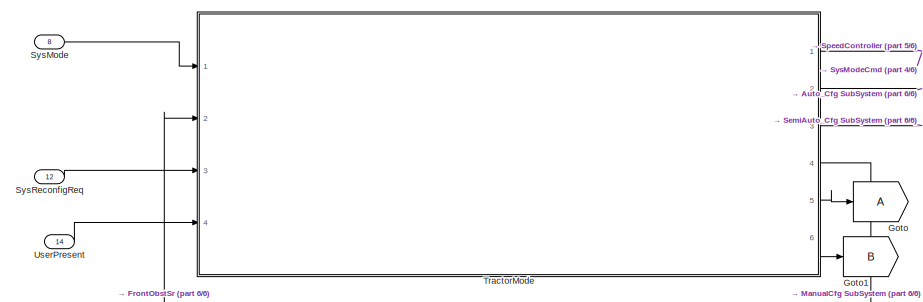
[diagram: Tractor - part 1/6, top left region]
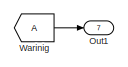
[diagram: Tractor - part 2/6, top center region]
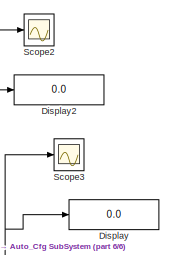
[diagram: Tractor - part 3/6, top center region]
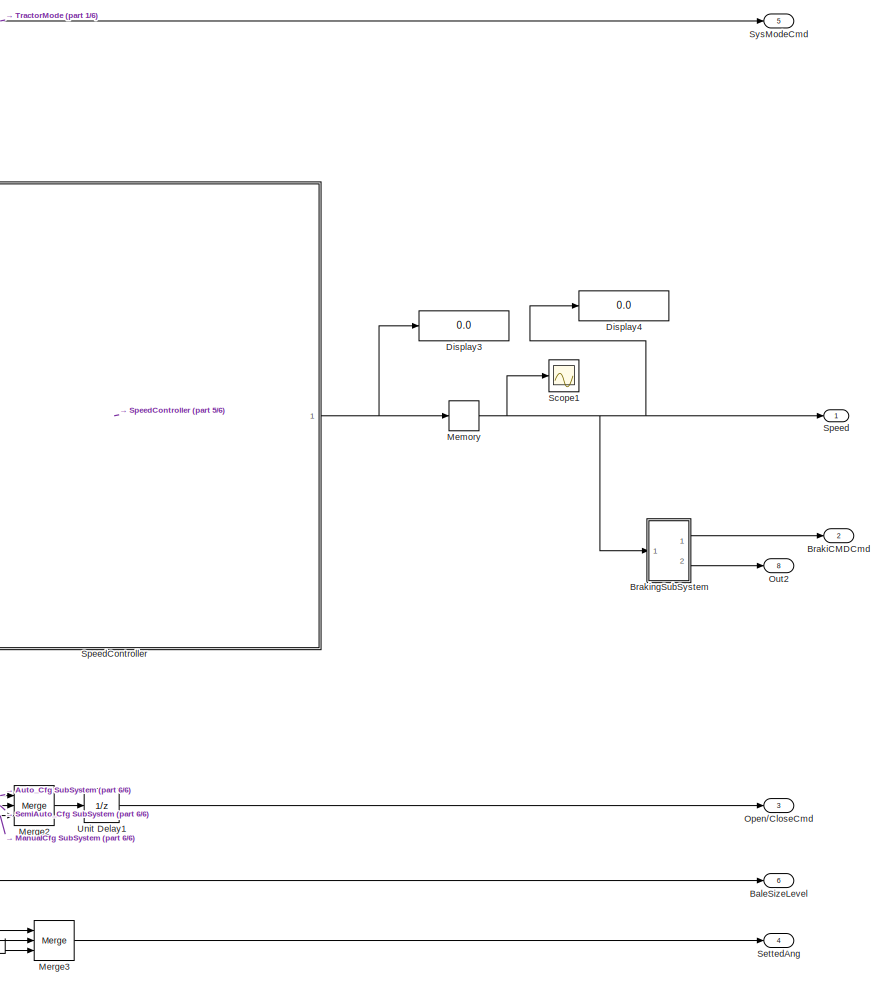
[diagram: Tractor - part 4/6, middle right region]
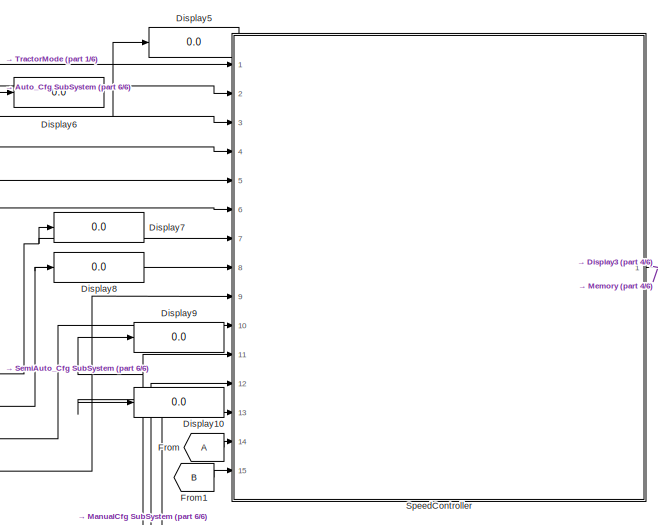
[diagram: Tractor - part 5/6, middle right region]
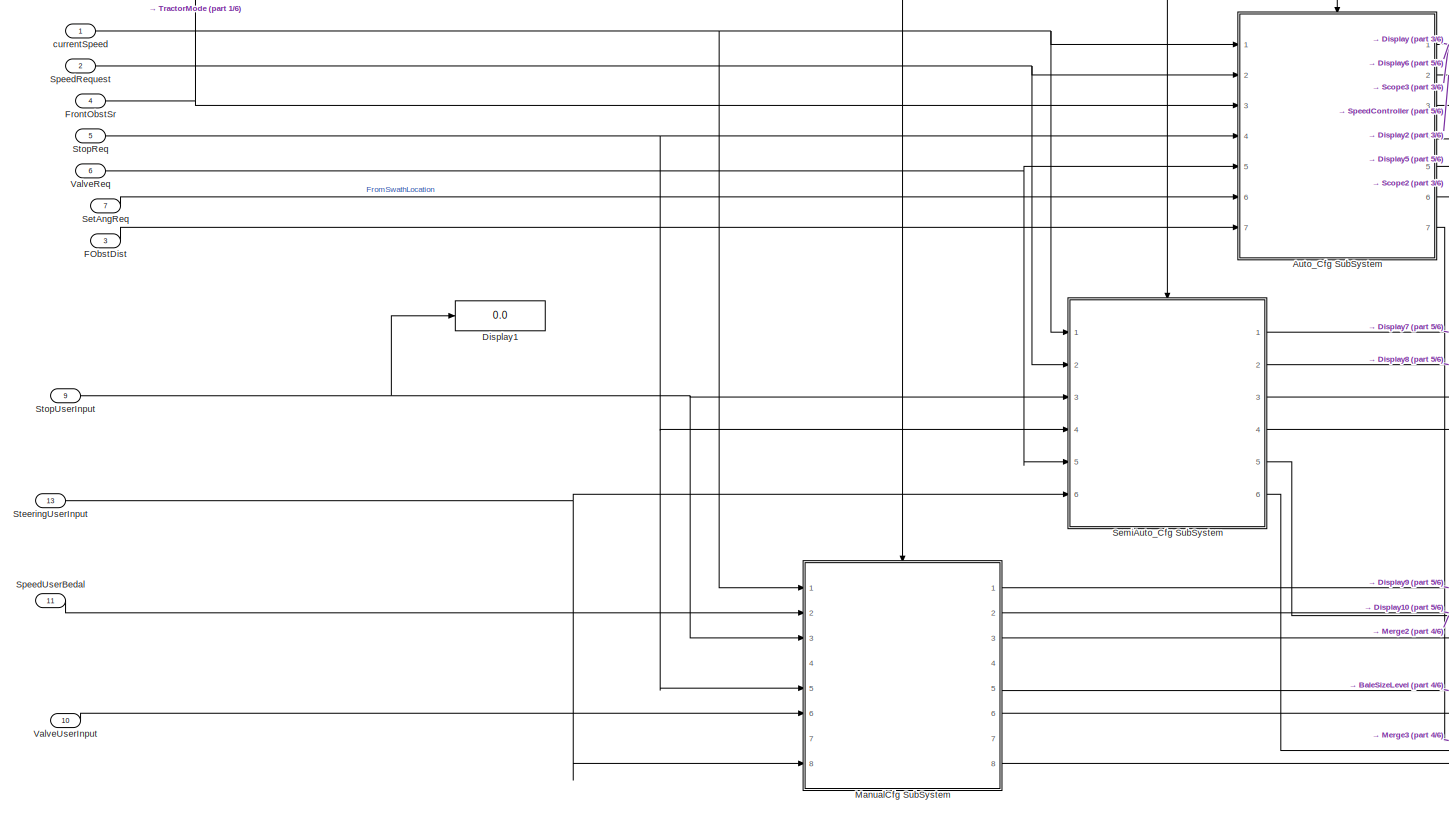
[diagram: Tractor - part 6/6, bottom left region]
BLOCK [SubSystem] Tractor
  Ports = [14, 8]
  RequestExecContextInheritance = off
  Variant = off
BLOCK [SubSystem] Tractor/Auto_Cfg SubSystem
  Ports = [7, 7, 1]
  RequestExecContextInheritance = off
  Variant = off
BLOCK [Outport] Tractor/Auto_Cfg SubSystem/1
  IconDisplay = Port number
BLOCK [Outport] Tractor/Auto_Cfg SubSystem/2
  IconDisplay = Port number
  Port = 2
BLOCK [Outport] Tractor/Auto_Cfg SubSystem/5
  IconDisplay = Port number
  Port = 5
BLOCK [Inport] Tractor/Auto_Cfg SubSystem/CSpeed
  IconDisplay = Port number
BLOCK [SubSystem] Tractor/Auto_Cfg SubSystem/CalcTSpeed
  Commented = on
  ErrorFcn = Stateflow.Translate.translate
  PermitHierarchicalResolution = ExplicitOnly
  Ports = [2, 1]
  RequestExecContextInheritance = off
  SFBlockType = MATLAB Function
  TreatAsAtomicUnit = on
  Variant = off
BLOCK [Demux] Tractor/Auto_Cfg SubSystem/CalcTSpeed/ Demux 
  Outputs = 1
  Ports = [1, 1]
BLOCK [S-Function] Tractor/Auto_Cfg SubSystem/CalcTSpeed/ SFunction 
  EnableBusSupport = on
  FunctionName = sf_sfun
  PortCounts = [2 2]
  Ports = [2, 2]
  SFcnIsStateOwnerBlock = off
  SFunctionDeploymentMode = off
  Tag = Stateflow S-Function TIA 1
BLOCK [Terminator] Tractor/Auto_Cfg SubSystem/CalcTSpeed/ Terminator 
BLOCK [Inport] Tractor/Auto_Cfg SubSystem/CalcTSpeed/CSpeed
  IconDisplay = Port number
BLOCK [Outport] Tractor/Auto_Cfg SubSystem/CalcTSpeed/TSpeed
  IconDisplay = Port number
BLOCK [Inport] Tractor/Auto_Cfg SubSystem/CalcTSpeed/u
  IconDisplay = Port number
  Port = 2
BLOCK [EnablePort] Tractor/Auto_Cfg SubSystem/Enable
  Ports = []
BLOCK [Inport] Tractor/Auto_Cfg SubSystem/FObstDist
  IconDisplay = Port number
  Port = 7
BLOCK [Inport] Tractor/Auto_Cfg SubSystem/FrontObstSr
  IconDisplay = Port number
  Port = 3
BLOCK [Inport] Tractor/Auto_Cfg SubSystem/SetAngReq
  IconDisplay = Port number
  Port = 6
BLOCK [Outport] Tractor/Auto_Cfg SubSystem/SettedAng
  IconDisplay = Port number
  Port = 7
BLOCK [Inport] Tractor/Auto_Cfg SubSystem/SpeedReq
  IconDisplay = Port number
  Port = 2
BLOCK [Outport] Tractor/Auto_Cfg SubSystem/StopCMDBaleFull
  IconDisplay = Port number
  Port = 3
BLOCK [Outport] Tractor/Auto_Cfg SubSystem/StopCMDObst
  IconDisplay = Port number
  Port = 4
BLOCK [Inport] Tractor/Auto_Cfg SubSystem/StopReqBaleSize
  IconDisplay = Port number
  Port = 4
BLOCK [Outport] Tractor/Auto_Cfg SubSystem/ValveCmd
  IconDisplay = Port number
  Port = 6
BLOCK [SubSystem] Tractor/Auto_Cfg SubSystem/ValveController
  Ports = [1, 1]
  RequestExecContextInheritance = off
  Variant = off
BLOCK [Constant] Tractor/Auto_Cfg SubSystem/ValveController/Constant
BLOCK [Constant] Tractor/Auto_Cfg SubSystem/ValveController/Constant1
  Value = 0
BLOCK [DataTypeConversion] Tractor/Auto_Cfg SubSystem/ValveController/Data Type Conversion
  OutDataTypeStr = boolean
  RndMeth = Floor
  SaturateOnIntegerOverflow = off
BLOCK [Inport] Tractor/Auto_Cfg SubSystem/ValveController/In1
  IconDisplay = Port number
BLOCK [Outport] Tractor/Auto_Cfg SubSystem/ValveController/Out1
  IconDisplay = Port number
BLOCK [Switch] Tractor/Auto_Cfg SubSystem/ValveController/Switch
  Criteria = u2 ~= 0
  InputSameDT = off
  SaturateOnIntegerOverflow = off
BLOCK [Inport] Tractor/Auto_Cfg SubSystem/ValveReq
  IconDisplay = Port number
  Port = 5
BLOCK [SubSystem] Tractor/Auto_Cfg SubSystem/setStAngle
  ErrorFcn = Stateflow.Translate.translate
  PermitHierarchicalResolution = ExplicitOnly
  Ports = [1, 1]
  RequestExecContextInheritance = off
  SFBlockType = MATLAB Function
  TreatAsAtomicUnit = on
  Variant = off
BLOCK [Demux] Tractor/Auto_Cfg SubSystem/setStAngle/ Demux 
  Outputs = 1
  Ports = [1, 1]
BLOCK [S-Function] Tractor/Auto_Cfg SubSystem/setStAngle/ SFunction 
  EnableBusSupport = on
  FunctionName = sf_sfun
  PortCounts = [1 2]
  Ports = [1, 2]
  SFcnIsStateOwnerBlock = off
  SFunctionDeploymentMode = off
  Tag = Stateflow S-Function TIA 24
BLOCK [Terminator] Tractor/Auto_Cfg SubSystem/setStAngle/ Terminator 
BLOCK [Outport] Tractor/Auto_Cfg SubSystem/setStAngle/CAngle
  IconDisplay = Port number
BLOCK [Inport] Tractor/Auto_Cfg SubSystem/setStAngle/TAngle
  IconDisplay = Port number
BLOCK [Outport] Tractor/BaleSizeLevel
  IconDisplay = Port number
  Port = 6
BLOCK [Outport] Tractor/BrakiCMDCmd
  IconDisplay = Port number
  Port = 2
BLOCK [SubSystem] Tractor/BrakingSubSystem
  Ports = [1, 2]
  RequestExecContextInheritance = off
  Variant = off
BLOCK [Constant] Tractor/BrakingSubSystem/Constant
  Value = 0
BLOCK [Constant] Tractor/BrakingSubSystem/Constant1
BLOCK [Constant] Tractor/BrakingSubSystem/Constant2
  Value = 2
BLOCK [Inport] Tractor/BrakingSubSystem/In1
  IconDisplay = Port number
BLOCK [Memory] Tractor/BrakingSubSystem/Memory
BLOCK [Outport] Tractor/BrakingSubSystem/Out1
  IconDisplay = Port number
BLOCK [Outport] Tractor/BrakingSubSystem/Out2
  IconDisplay = Port number
  Port = 2
BLOCK [From] Tractor/BrakingSubSystem/Shutted Down
  GotoTag = B
  IconDisplay = Signal name
BLOCK [Switch] Tractor/BrakingSubSystem/Switch
  Criteria = u2 ~= 0
  InputSameDT = off
  SaturateOnIntegerOverflow = off
BLOCK [Switch] Tractor/BrakingSubSystem/Switch2
  Criteria = u2 ~= 0
  InputSameDT = off
  SaturateOnIntegerOverflow = off
  Threshold = 2
BLOCK [Display] Tractor/Display
  Decimation = 1
  Ports = [1]
BLOCK [Display] Tractor/Display1
  Decimation = 1
  Ports = [1]
BLOCK [Display] Tractor/Display10
  Decimation = 1
  Ports = [1]
BLOCK [Display] Tractor/Display2
  Decimation = 1
  Ports = [1]
BLOCK [Display] Tractor/Display3
  Decimation = 1
  Ports = [1]
BLOCK [Display] Tractor/Display4
  Decimation = 1
  Ports = [1]
BLOCK [Display] Tractor/Display5
  Decimation = 1
  Ports = [1]
BLOCK [Display] Tractor/Display6
  Decimation = 1
  Ports = [1]
BLOCK [Display] Tractor/Display7
  Decimation = 1
  Ports = [1]
BLOCK [Display] Tractor/Display8
  Decimation = 1
  Ports = [1]
BLOCK [Display] Tractor/Display9
  Decimation = 1
  Ports = [1]
BLOCK [Inport] Tractor/FObstDist
  IconDisplay = Port number
  Port = 3
BLOCK [From] Tractor/From
  IconDisplay = Signal name
BLOCK [From] Tractor/From1
  GotoTag = B
  IconDisplay = Signal name
BLOCK [Inport] Tractor/FrontObstSr
  IconDisplay = Port number
  Port = 4
BLOCK [Goto] Tractor/Goto
BLOCK [Goto] Tractor/Goto1
  GotoTag = B
BLOCK [SubSystem] Tractor/ManualCfg SubSystem
  Ports = [8, 8, 1]
  RequestExecContextInheritance = off
  Variant = off
BLOCK [Outport] Tractor/ManualCfg SubSystem/BaleSizeLvl
  IconDisplay = Port number
  Port = 5
BLOCK [Inport] Tractor/ManualCfg SubSystem/CSpeed
  IconDisplay = Port number
BLOCK [EnablePort] Tractor/ManualCfg SubSystem/Enable
  Ports = []
BLOCK [Outport] Tractor/ManualCfg SubSystem/Out1
  IconDisplay = Port number
BLOCK [Outport] Tractor/ManualCfg SubSystem/Out2
  IconDisplay = Port number
  Port = 2
BLOCK [Outport] Tractor/ManualCfg SubSystem/Out3
  IconDisplay = Port number
  Port = 3
BLOCK [Outport] Tractor/ManualCfg SubSystem/Out4
  IconDisplay = Port number
  Port = 7
BLOCK [Outport] Tractor/ManualCfg SubSystem/Out5
  IconDisplay = Port number
  Port = 4
BLOCK [Inport] Tractor/ManualCfg SubSystem/SpeedUserReq
  IconDisplay = Port number
  Port = 2
BLOCK [Outport] Tractor/ManualCfg SubSystem/SteeringAngle
  IconDisplay = Port number
  Port = 8
BLOCK [Inport] Tractor/ManualCfg SubSystem/SteeringUserInput
  IconDisplay = Port number
  Port = 8
BLOCK [Inport] Tractor/ManualCfg SubSystem/StopReqBaleSize
  IconDisplay = Port number
  Port = 5
BLOCK [Inport] Tractor/ManualCfg SubSystem/StopSpeed emergency
  IconDisplay = Port number
  Port = 7
BLOCK [Inport] Tractor/ManualCfg SubSystem/StopUserInput
  IconDisplay = Port number
  Port = 3
BLOCK [Inport] Tractor/ManualCfg SubSystem/UserPresent
  IconDisplay = Port number
  Port = 4
BLOCK [Outport] Tractor/ManualCfg SubSystem/ValveCMD
  IconDisplay = Port number
  Port = 6
BLOCK [SubSystem] Tractor/ManualCfg SubSystem/ValveController
  Ports = [1, 1]
  RequestExecContextInheritance = off
  Variant = off
BLOCK [Constant] Tractor/ManualCfg SubSystem/ValveController/Constant
BLOCK [Constant] Tractor/ManualCfg SubSystem/ValveController/Constant1
  Value = 0
BLOCK [DataTypeConversion] Tractor/ManualCfg SubSystem/ValveController/Data Type Conversion
  OutDataTypeStr = boolean
  RndMeth = Floor
  SaturateOnIntegerOverflow = off
BLOCK [Inport] Tractor/ManualCfg SubSystem/ValveController/In1
  IconDisplay = Port number
BLOCK [Outport] Tractor/ManualCfg SubSystem/ValveController/Out1
  IconDisplay = Port number
BLOCK [Switch] Tractor/ManualCfg SubSystem/ValveController/Switch
  Criteria = u2 ~= 0
  InputSameDT = off
  SaturateOnIntegerOverflow = off
BLOCK [Inport] Tractor/ManualCfg SubSystem/ValveUserInput
  IconDisplay = Port number
  Port = 6
BLOCK [SubSystem] Tractor/ManualCfg SubSystem/setStAngle
  ErrorFcn = Stateflow.Translate.translate
  PermitHierarchicalResolution = ExplicitOnly
  Ports = [1, 1]
  RequestExecContextInheritance = off
  SFBlockType = MATLAB Function
  TreatAsAtomicUnit = on
  Variant = off
BLOCK [Demux] Tractor/ManualCfg SubSystem/setStAngle/ Demux 
  Outputs = 1
  Ports = [1, 1]
BLOCK [S-Function] Tractor/ManualCfg SubSystem/setStAngle/ SFunction 
  EnableBusSupport = on
  FunctionName = sf_sfun
  PortCounts = [1 2]
  Ports = [1, 2]
  SFcnIsStateOwnerBlock = off
  SFunctionDeploymentMode = off
  Tag = Stateflow S-Function TIA 23
BLOCK [Terminator] Tractor/ManualCfg SubSystem/setStAngle/ Terminator 
BLOCK [Outport] Tractor/ManualCfg SubSystem/setStAngle/CAngle
  IconDisplay = Port number
BLOCK [Inport] Tractor/ManualCfg SubSystem/setStAngle/TAngle
  IconDisplay = Port number
BLOCK [Memory] Tractor/Memory
BLOCK [Merge] Tractor/Merge2
  Inputs = 3
  Ports = [3, 1]
BLOCK [Merge] Tractor/Merge3
  Inputs = 3
  Ports = [3, 1]
BLOCK [Outport] Tractor/Open//CloseCmd
  IconDisplay = Port number
  Port = 3
BLOCK [Outport] Tractor/Out1
  IconDisplay = Port number
  Port = 7
BLOCK [Outport] Tractor/Out2
  IconDisplay = Port number
  Port = 8
BLOCK [Scope] Tractor/Scope1
  NumInputPorts = 1
  Ports = [1]
  ScopeSpecificationString = Simulink.scopes.TimeScopeBlockCfg('CurrentConfiguration', extmgr.ConfigurationSet(extmgr.Configuration('Core','General UI',true),extmgr.Configuration('Core','Source UI',true),extmgr.Configuration('Sources','WiredSimulink',true,'DataLoggingVariableName','ScopeData3'),extmgr.Configuration('Visuals','Time Domain',true,'SerializedDisplays',{struct('MinYLimReal','-1.875','MaxYLimReal','16.875','YLabelR...<+1417ch>
BLOCK [Scope] Tractor/Scope2
  NumInputPorts = 1
  Ports = [1]
  ScopeSpecificationString = Simulink.scopes.TimeScopeBlockCfg('CurrentConfiguration', extmgr.ConfigurationSet(extmgr.Configuration('Core','General UI',true),extmgr.Configuration('Core','Source UI',true),extmgr.Configuration('Sources','WiredSimulink',true,'DataLoggingVariableName','ScopeData4'),extmgr.Configuration('Visuals','Time Domain',true,'SerializedDisplays',{struct('MinYLimReal','-0.75','MaxYLimReal','6.75','YLabelReal...<+1457ch>
BLOCK [Scope] Tractor/Scope3
  NumInputPorts = 1
  Ports = [1]
  ScopeSpecificationString = Simulink.scopes.TimeScopeBlockCfg('CurrentConfiguration', extmgr.ConfigurationSet(extmgr.Configuration('Core','General UI',true),extmgr.Configuration('Core','Source UI',true),extmgr.Configuration('Sources','WiredSimulink',true,'DataLoggingVariableName','ScopeData2'),extmgr.Configuration('Visuals','Time Domain',true,'SerializedDisplays',{struct('MinYLimReal','3.32453','MaxYLimReal','5.17638','YLabe...<+1448ch>
BLOCK [SubSystem] Tractor/SemiAuto_Cfg SubSystem
  Ports = [6, 6, 1]
  RequestExecContextInheritance = off
  Variant = off
BLOCK [Inport] Tractor/SemiAuto_Cfg SubSystem/CSpeed
  IconDisplay = Port number
BLOCK [EnablePort] Tractor/SemiAuto_Cfg SubSystem/Enable
  Ports = []
BLOCK [Outport] Tractor/SemiAuto_Cfg SubSystem/Out1
  IconDisplay = Port number
BLOCK [Outport] Tractor/SemiAuto_Cfg SubSystem/Out2
  IconDisplay = Port number
  Port = 2
BLOCK [Outport] Tractor/SemiAuto_Cfg SubSystem/Out3
  IconDisplay = Port number
  Port = 3
BLOCK [Outport] Tractor/SemiAuto_Cfg SubSystem/Out4
  IconDisplay = Port number
  Port = 4
BLOCK [Outport] Tractor/SemiAuto_Cfg SubSystem/SettedAng
  IconDisplay = Port number
  Port = 6
BLOCK [Inport] Tractor/SemiAuto_Cfg SubSystem/SpeedReq
  IconDisplay = Port number
  Port = 2
BLOCK [Inport] Tractor/SemiAuto_Cfg SubSystem/SteeringUserInput
  IconDisplay = Port number
  Port = 6
BLOCK [Inport] Tractor/SemiAuto_Cfg SubSystem/StopReqBaleSize
  IconDisplay = Port number
  Port = 4
BLOCK [Inport] Tractor/SemiAuto_Cfg SubSystem/StopUserInput
  IconDisplay = Port number
  Port = 3
BLOCK [Outport] Tractor/SemiAuto_Cfg SubSystem/ValveCMD
  IconDisplay = Port number
  Port = 5
BLOCK [SubSystem] Tractor/SemiAuto_Cfg SubSystem/ValveController
  Ports = [1, 1]
  RequestExecContextInheritance = off
  Variant = off
BLOCK [Constant] Tractor/SemiAuto_Cfg SubSystem/ValveController/Constant
BLOCK [Constant] Tractor/SemiAuto_Cfg SubSystem/ValveController/Constant1
  Value = 0
BLOCK [DataTypeConversion] Tractor/SemiAuto_Cfg SubSystem/ValveController/Data Type Conversion
  OutDataTypeStr = boolean
  RndMeth = Floor
  SaturateOnIntegerOverflow = off
BLOCK [Inport] Tractor/SemiAuto_Cfg SubSystem/ValveController/In1
  IconDisplay = Port number
BLOCK [Outport] Tractor/SemiAuto_Cfg SubSystem/ValveController/Out1
  IconDisplay = Port number
BLOCK [Switch] Tractor/SemiAuto_Cfg SubSystem/ValveController/Switch
  Criteria = u2 ~= 0
  InputSameDT = off
  SaturateOnIntegerOverflow = off
BLOCK [Inport] Tractor/SemiAuto_Cfg SubSystem/ValveReq
  IconDisplay = Port number
  Port = 5
BLOCK [SubSystem] Tractor/SemiAuto_Cfg SubSystem/setStAngle
  ErrorFcn = Stateflow.Translate.translate
  PermitHierarchicalResolution = ExplicitOnly
  Ports = [1, 1]
  RequestExecContextInheritance = off
  SFBlockType = MATLAB Function
  TreatAsAtomicUnit = on
  Variant = off
BLOCK [Demux] Tractor/SemiAuto_Cfg SubSystem/setStAngle/ Demux 
  Outputs = 1
  Ports = [1, 1]
BLOCK [S-Function] Tractor/SemiAuto_Cfg SubSystem/setStAngle/ SFunction 
  EnableBusSupport = on
  FunctionName = sf_sfun
  PortCounts = [1 2]
  Ports = [1, 2]
  SFcnIsStateOwnerBlock = off
  SFunctionDeploymentMode = off
  Tag = Stateflow S-Function TIA 25
BLOCK [Terminator] Tractor/SemiAuto_Cfg SubSystem/setStAngle/ Terminator 
BLOCK [Outport] Tractor/SemiAuto_Cfg SubSystem/setStAngle/CAngle
  IconDisplay = Port number
BLOCK [Inport] Tractor/SemiAuto_Cfg SubSystem/setStAngle/TAngle
  IconDisplay = Port number
BLOCK [Inport] Tractor/SetAngReq
  IconDisplay = Port number
  Port = 7
BLOCK [Outport] Tractor/SettedAng
  IconDisplay = Port number
  Port = 4
BLOCK [Outport] Tractor/Speed
  IconDisplay = Port number
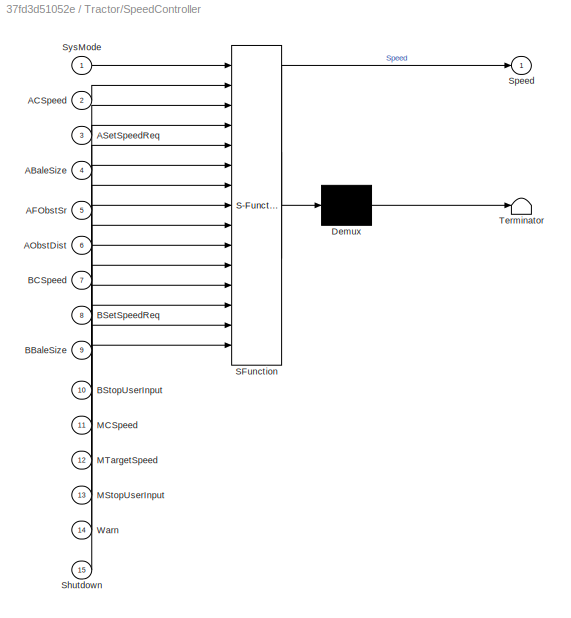
BLOCK [SubSystem] Tractor/SpeedController
  ErrorFcn = Stateflow.Translate.translate
  PermitHierarchicalResolution = ExplicitOnly
  Ports = [15, 1]
  RequestExecContextInheritance = off
  SFBlockType = Chart
  TreatAsAtomicUnit = on
  Variant = off
BLOCK [Demux] Tractor/SpeedController/ Demux 
  Outputs = 1
  Ports = [1, 1]
BLOCK [S-Function] Tractor/SpeedController/ SFunction 
  EnableBusSupport = on
  FunctionName = sf_sfun
  PortCounts = [15 2]
  Ports = [15, 2]
  SFcnIsStateOwnerBlock = off
  SFunctionDeploymentMode = off
  Tag = Stateflow S-Function TIA 28
BLOCK [Terminator] Tractor/SpeedController/ Terminator 
BLOCK [Inport] Tractor/SpeedController/ABaleSize
  IconDisplay = Port number
  Port = 4
BLOCK [Inport] Tractor/SpeedController/ACSpeed
  IconDisplay = Port number
  Port = 2
BLOCK [Inport] Tractor/SpeedController/AFObstSr
  IconDisplay = Port number
  Port = 5
BLOCK [Inport] Tractor/SpeedController/AObstDist
  IconDisplay = Port number
  Port = 6
BLOCK [Inport] Tractor/SpeedController/ASetSpeedReq
  IconDisplay = Port number
  Port = 3
BLOCK [Inport] Tractor/SpeedController/BBaleSize
  IconDisplay = Port number
  Port = 9
BLOCK [Inport] Tractor/SpeedController/BCSpeed
  IconDisplay = Port number
  Port = 7
BLOCK [Inport] Tractor/SpeedController/BSetSpeedReq
  IconDisplay = Port number
  Port = 8
BLOCK [Inport] Tractor/SpeedController/BStopUserInput
  IconDisplay = Port number
  Port = 10
BLOCK [Inport] Tractor/SpeedController/MCSpeed
  IconDisplay = Port number
  Port = 11
BLOCK [Inport] Tractor/SpeedController/MStopUserInput
  IconDisplay = Port number
  Port = 13
BLOCK [Inport] Tractor/SpeedController/MTargetSpeed
  IconDisplay = Port number
  Port = 12
BLOCK [Inport] Tractor/SpeedController/Shutdown
  IconDisplay = Port number
  Port = 15
BLOCK [Outport] Tractor/SpeedController/Speed
  IconDisplay = Port number
BLOCK [Inport] Tractor/SpeedController/SysMode
  IconDisplay = Port number
BLOCK [Inport] Tractor/SpeedController/Warn
  IconDisplay = Port number
  Port = 14
BLOCK [Inport] Tractor/SpeedRequest
  IconDisplay = Port number
  Port = 2
BLOCK [Inport] Tractor/SpeedUserBedal
  IconDisplay = Port number
  Port = 11
BLOCK [Inport] Tractor/SteeringUserInput
  IconDisplay = Port number
  Port = 13
BLOCK [Inport] Tractor/StopReq
  IconDisplay = Port number
  Port = 5
BLOCK [Inport] Tractor/StopUserInput
  IconDisplay = Port number
  Port = 9
BLOCK [Inport] Tractor/SysMode
  IconDisplay = Port number
  Port = 8
BLOCK [Outport] Tractor/SysModeCmd 
  IconDisplay = Port number
  Port = 5
BLOCK [Inport] Tractor/SysReconfigReq 
  IconDisplay = Port number
  Port = 12
BLOCK [SubSystem] Tractor/TractorMode
  ErrorFcn = Stateflow.Translate.translate
  PermitHierarchicalResolution = ExplicitOnly
  Ports = [4, 6]
  RequestExecContextInheritance = off
  SFBlockType = Chart
  TreatAsAtomicUnit = on
  Variant = off
BLOCK [Demux] Tractor/TractorMode/ Demux 
  Outputs = 1
  Ports = [1, 1]
BLOCK [S-Function] Tractor/TractorMode/ SFunction 
  EnableBusSupport = on
  FunctionName = sf_sfun
  PortCounts = [4 7]
  Ports = [4, 7]
  SFcnIsStateOwnerBlock = off
  SFunctionDeploymentMode = off
  Tag = Stateflow S-Function TIA 8
BLOCK [Outport] Tractor/TractorMode/ ShutDown
  IconDisplay = Port number
  Port = 6
BLOCK [Terminator] Tractor/TractorMode/ Terminator 
BLOCK [Outport] Tractor/TractorMode/ Warn
  IconDisplay = Port number
  Port = 5
BLOCK [Outport] Tractor/TractorMode/AutoCfg
  IconDisplay = Port number
  Port = 2
BLOCK [Inport] Tractor/TractorMode/Fobst
  IconDisplay = Port number
  Port = 2
BLOCK [Outport] Tractor/TractorMode/ManualCfg
  IconDisplay = Port number
  Port = 4
BLOCK [Inport] Tractor/TractorMode/ModeInput
  IconDisplay = Port number
BLOCK [Outport] Tractor/TractorMode/SemiAutoCfg
  IconDisplay = Port number
  Port = 3
BLOCK [Outport] Tractor/TractorMode/SysModeOut
  IconDisplay = Port number
BLOCK [Inport] Tractor/TractorMode/SysReconfigReq
  IconDisplay = Port number
  Port = 3
BLOCK [Inport] Tractor/TractorMode/UserPresent
  IconDisplay = Port number
  Port = 4
BLOCK [UnitDelay] Tractor/Unit Delay1
  InputProcessing = Elements as channels (sample based)
  SampleTime = 5
BLOCK [Inport] Tractor/UserPresent
  IconDisplay = Port number
  Port = 14
BLOCK [Inport] Tractor/ValveReq
  IconDisplay = Port number
  Port = 6
BLOCK [Inport] Tractor/ValveUserInput
  IconDisplay = Port number
  Port = 10
BLOCK [From] Tractor/Warinig
  IconDisplay = Signal name
BLOCK [Inport] Tractor/currentSpeed
  IconDisplay = Port number
BLOCK [Constant] User Present
BLOCK [Constant] ValveUserCMD
BLOCK [SubSystem] frontObstSr
  DialogController = hmiCreateDDGDialog
  IsWebBlock = on
  MaskHideContents = on
  Ports = []
  RequestExecContextInheritance = off
  Variant = off
ANNOTATION (root): User Input Board
ANNOTATION (root): Subsystem
ANNOTATION Tractor/ManualCfg SubSystem: urgent is just variable activated to indiacate that the system is on the manula mode which in tur requier user present variable to activate manual speed controller>> just to stop system when reconfig from auto to manual assumed that no driver ther till he comes
LINE Add1:1 -> Baler:4
LINE Add2:1 -> Baler:7
LINE Add:1 -> Tractor:4
NET Bale Size Sr:1 -> Baler:2, Scope4:4
LINE Baler/AutoCfg_1 SubSystem/In4:1 -> Baler/AutoCfg_1 SubSystem/Out5:1
LINE Baler/AutoCfg_1 SubSystem:1 -> Baler/Merge:1
LINE Baler/AutoCfg_2 Subsystem/In4:1 -> Baler/AutoCfg_2 Subsystem/Out5:1
LINE Baler/AutoCfg_2 Subsystem:1 -> Baler/Merge:2
LINE Baler/BaleOutSr:1 -> Baler/Baler Controller:6
LINE Baler/BaleSizeSr1/Chart:1 -> Baler/BaleSizeSr1/Out1:1
LINE Baler/BaleSizeSr1/In1:1 -> Baler/BaleSizeSr1/Chart:1
LINE Baler/BaleSizeSr1/In2:1 -> Baler/BaleSizeSr1/Chart:2
LINE Baler/BaleSizeSr1:1 -> Baler/Baler Controller:3
LINE Baler/BaleSizeSr:1 -> Baler/BaleSizeSr1:1
LINE Baler/Baler Controller/In1:1 -> Baler/Baler Controller/SpeedAdj CTRL:1
LINE Baler/Baler Controller/In2:1 -> Baler/Baler Controller/SpeedAdj CTRL:2
NET Baler/Baler Controller/In3:1 -> Baler/Baler Controller/RearDoorCTRL:1, Baler/Baler Controller/SpeedAdj CTRL:3
LINE Baler/Baler Controller/In6:1 -> Baler/Baler Controller/RearDoorCTRL:4
LINE Baler/Baler Controller/In7:1 -> Baler/Baler Controller/RearDoorCTRL:5
LINE Baler/Baler Controller/In8:1 -> Baler/Baler Controller/RearDoorCTRL:3
LINE Baler/Baler Controller/In9:1 -> Baler/Baler Controller/SteeringAdjCTRL:2
NET Baler/Baler Controller/RearDoorCTRL/Chart:1 -> Baler/Baler Controller/RearDoorCTRL/BaleState:1, Baler/Baler Controller/RearDoorCTRL/CloseRearDoor:2, Baler/Baler Controller/RearDoorCTRL/Display5:1
NET Baler/Baler Controller/RearDoorCTRL/CloseRearDoor:1 -> Baler/Baler Controller/RearDoorCTRL/Data Type Conversion1:1, Baler/Baler Controller/RearDoorCTRL/Display1:1
NET Baler/Baler Controller/RearDoorCTRL/Data Type Conversion1:1 -> Baler/Baler Controller/RearDoorCTRL/Display:1, Baler/Baler Controller/RearDoorCTRL/SendValvReq:1
NET Baler/Baler Controller/RearDoorCTRL/DoorValveCmd:1 -> Baler/Baler Controller/RearDoorCTRL/Chart:1, Baler/Baler Controller/RearDoorCTRL/Display6:1, Baler/Baler Controller/RearDoorCTRL/DoorState:1
NET Baler/Baler Controller/RearDoorCTRL/In1:1 -> Baler/Baler Controller/RearDoorCTRL/Display3:1, Baler/Baler Controller/RearDoorCTRL/OpenRearDoorFunction:2
NET Baler/Baler Controller/RearDoorCTRL/In2:1 -> Baler/Baler Controller/RearDoorCTRL/Display2:1, Baler/Baler Controller/RearDoorCTRL/OpenRearDoorFunction:1
NET Baler/Baler Controller/RearDoorCTRL/In3:1 -> Baler/Baler Controller/RearDoorCTRL/Display4:1, Baler/Baler Controller/RearDoorCTRL/OpenRearDoorFunction:3
LINE Baler/Baler Controller/RearDoorCTRL/OpenRearDoorFunction:1 -> Baler/Baler Controller/RearDoorCTRL/CloseRearDoor:1
LINE Baler/Baler Controller/RearDoorCTRL:1 -> Baler/Baler Controller/Out3:1
LINE Baler/Baler Controller/RearDoorCTRL:2 -> Baler/Baler Controller/Out4:1
LINE Baler/Baler Controller/RearDoorCTRL:3 -> Baler/Baler Controller/BaleState:1
LINE Baler/Baler Controller/SpeedAdj CTRL/Constant:1 -> Baler/Baler Controller/SpeedAdj CTRL/Switch:3
LINE Baler/Baler Controller/SpeedAdj CTRL/Data Type Conversion1:1 -> Baler/Baler Controller/SpeedAdj CTRL/Out2:1
NET Baler/Baler Controller/SpeedAdj CTRL/In1:1 -> Baler/Baler Controller/SpeedAdj CTRL/Display:1, Baler/Baler Controller/SpeedAdj CTRL/SpeedRequestCTRL:2
NET Baler/Baler Controller/SpeedAdj CTRL/In2:1 -> Baler/Baler Controller/SpeedAdj CTRL/Switch:1, Baler/Baler Controller/SpeedAdj CTRL/Switch:2
LINE Baler/Baler Controller/SpeedAdj CTRL/In3:1 -> Baler/Baler Controller/SpeedAdj CTRL/SpeedRequestCTRL:1
NET Baler/Baler Controller/SpeedAdj CTRL/SpeedRequestCTRL:1 -> Baler/Baler Controller/SpeedAdj CTRL/Display1:1, Baler/Baler Controller/SpeedAdj CTRL/Out1:1
LINE Baler/Baler Controller/SpeedAdj CTRL/Switch:1 -> Baler/Baler Controller/SpeedAdj CTRL/Data Type Conversion1:1
LINE Baler/Baler Controller/SpeedAdj CTRL:1 -> Baler/Baler Controller/Out1:1
LINE Baler/Baler Controller/SpeedAdj CTRL:2 -> Baler/Baler Controller/Out2:1
LINE Baler/Baler Controller/SteeringAdjCTRL/CalcTargetAngel:1 -> Baler/Baler Controller/SteeringAdjCTRL/Out1:1
LINE Baler/Baler Controller/SteeringAdjCTRL/In1:1 -> Baler/Baler Controller/SteeringAdjCTRL/CalcTargetAngel:1
LINE Baler/Baler Controller/SteeringAdjCTRL/In2:1 -> Baler/Baler Controller/SteeringAdjCTRL/CalcTargetAngel:2
LINE Baler/Baler Controller/SteeringAdjCTRL:1 -> Baler/Baler Controller/Out5:1
LINE Baler/Baler Controller/just  stop sign1:1 -> Baler/Baler Controller/RearDoorCTRL:2
LINE Baler/Baler Controller/just  stop sign:1 -> Baler/Baler Controller/SteeringAdjCTRL:1
LINE Baler/Baler Controller:1 -> Baler/Memory:1
LINE Baler/Baler Controller:2 -> Baler/StopReq :1
LINE Baler/Baler Controller:3 -> Baler/DoorValveReq:1
LINE Baler/Baler Controller:4 -> Baler/DoorState:1
LINE Baler/Baler Controller:5 -> Baler/SetAngReq:1
NET Baler/Baler Controller:6 -> Baler/BaleSizeSr1:2, Baler/BaleState:1
LINE Baler/BalerMode1:1 -> Baler/RcfgCMD:1
LINE Baler/BalerMode1:2 -> Baler/BalerCfg:1
NET Baler/BalerMode1:3 -> Baler/Display:1, Baler/Unit Delay:1
LINE Baler/BalerMode1:4 -> Baler/AutoCfg_1 SubSystem:enable
LINE Baler/BalerMode1:5 -> Baler/AutoCfg_2 Subsystem:enable
LINE Baler/BalerMode1:6 -> Baler/SemiAutoCfg Subsystem:enable
LINE Baler/BalerMode1:7 -> Baler/ManualCfg Subsystem:enable
LINE Baler/Memory:1 -> Baler/SetSpeedReq:1
LINE Baler/Merge:1 -> Baler/Baler Controller:8
LINE Baler/ModeCngCMD:1 -> Baler/BalerMode1:1
LINE Baler/RearDoorCmd:1 -> Baler/Baler Controller:7
NET Baler/RearObsSr1:1 -> Baler/AutoCfg_1 SubSystem:1, Baler/BalerMode1:2
NET Baler/RearObstSr2:1 -> Baler/AutoCfg_2 Subsystem:1, Baler/BalerMode1:3, Baler/SemiAutoCfg Subsystem:1
LINE Baler/SemiAutoCfg Subsystem/In4:1 -> Baler/SemiAutoCfg Subsystem/Out4:1
LINE Baler/SemiAutoCfg Subsystem:1 -> Baler/Merge:3
NET Baler/StopComand:1 -> Baler/Baler Controller:4, Baler/Baler Controller:5, Baler/BrakeState:1
LINE Baler/SwathLocation:1 -> Baler/Baler Controller:9
LINE Baler/SwathVFlowRate:1 -> Baler/Baler Controller:2
NET Baler/Unit Delay:1 -> Baler/Display1:1, Baler/SysReconfigReq:1
LINE Baler/settedSpeed :1 -> Baler/Baler Controller:1
NET Baler:1 -> Scope4:2, Tractor:2
NET Baler:10 -> Display1:1, Scope4:7
LINE Baler:2 -> Tractor:5
LINE Baler:3 -> Display4:1
NET Baler:4 -> Scope4:6, Tractor:6
NET Baler:5 -> DoorStatus:1, Scope4:5
LINE Baler:6 -> Tractor:7
LINE Baler:7 -> SwathScanner:4
LINE Baler:8 -> CFG:1
LINE Baler:9 -> Tractor:12
LINE Constant1:1 -> Add2:1
LINE Constant3:1 -> Product:2
LINE Constant:1 -> Add1:1
LINE Front Obstacle:1 -> FrontObstSr:1
LINE FrontObstSr/Data Type Conversion:1 -> FrontObstSr/Out1:1
LINE FrontObstSr/In1:1 -> FrontObstSr/Data Type Conversion:1
LINE FrontObstSr/In2:1 -> FrontObstSr/Out2:1
LINE FrontObstSr:1 -> Add:1
LINE FrontObstSr:2 -> Tractor:3
LINE FrontObstSrFail:1 -> Add:2
LINE ObstDistance:1 -> FrontObstSr:2
LINE RearSr1:1 -> Add1:2
LINE RearSr2:1 -> Add2:2
LINE SpeedSr in case no ReconfigSys/Add:1 -> SpeedSr in case no ReconfigSys/Zero-Order Hold:1
LINE SpeedSr in case no ReconfigSys/Band-Limited White Noise:1 -> SpeedSr in case no ReconfigSys/Add:1
LINE SpeedSr in case no ReconfigSys/In1:1 -> SpeedSr in case no ReconfigSys/Add:2
LINE SpeedSr in case no ReconfigSys/Zero-Order Hold:1 -> SpeedSr in case no ReconfigSys/Out1:1
LINE SpeedSr1 /In1:1 -> SpeedSr1 /Switch:1
NET SpeedSr1 /Signal Builder1:1 -> SpeedSr1 /Switch:2, SpeedSr1 /Switch:3
LINE SpeedSr1 /Subsystem/Add:1 -> SpeedSr1 /Subsystem/Zero-Order Hold:1
LINE SpeedSr1 /Subsystem/Band-Limited White Noise:1 -> SpeedSr1 /Subsystem/Add:1
LINE SpeedSr1 /Subsystem/In1:1 -> SpeedSr1 /Subsystem/Add:2
LINE SpeedSr1 /Subsystem/Zero-Order Hold:1 -> SpeedSr1 /Subsystem/Out1:1
LINE SpeedSr1 /Subsystem:1 -> SpeedSr1 /ActualSpeed:1
LINE SpeedSr1 /Switch:1 -> SpeedSr1 /Out1:1
NET SpeedSr1 :1 -> Display:1, Scope2:2, Scope4:1, SpSr2:1, SwathScanner:2, Tractor:1
LINE SpeedSr1 :2 -> Scope3:1
LINE SpeedSr1 :3 -> Scope3:2
LINE SpeedSr2,3/In1:1 -> SpeedSr2,3/Switch:1
NET SpeedSr2,3/Signal Builder1:1 -> SpeedSr2,3/Switch:2, SpeedSr2,3/Switch:3
LINE SpeedSr2,3/Switch:1 -> SpeedSr2,3/Out1:1
LINE SpeedSr2,3:1 -> SwathScanner:5
LINE SpeedUserInput:1 -> Tractor:11
LINE SteeringUserInput:1 -> Tractor:13
LINE StopUserCMD:1 -> Tractor:9
LINE Swath Area Value:1 -> SwathScanner:1
LINE SwathLocationSr:1 -> SwathScanner:3
LINE SwathScanner/Auto_1_Cfg Subsystem/CalcVolFlowRate 1/CurrentSpeed:1 -> SwathScanner/Auto_1_Cfg Subsystem/CalcVolFlowRate 1/MATLAB Function:1
NET SwathScanner/Auto_1_Cfg Subsystem/CalcVolFlowRate 1/MATLAB Function:1 -> SwathScanner/Auto_1_Cfg Subsystem/CalcVolFlowRate 1/Out1:1, SwathScanner/Auto_1_Cfg Subsystem/CalcVolFlowRate 1/Scope:1
LINE SwathScanner/Auto_1_Cfg Subsystem/CalcVolFlowRate 1/SwathArea:1 -> SwathScanner/Auto_1_Cfg Subsystem/CalcVolFlowRate 1/MATLAB Function:2
NET SwathScanner/Auto_1_Cfg Subsystem/CalcVolFlowRate 1:1 -> SwathScanner/Auto_1_Cfg Subsystem/Display:1, SwathScanner/Auto_1_Cfg Subsystem/Out1:1, SwathScanner/Auto_1_Cfg Subsystem/Scope:1, SwathScanner/Auto_1_Cfg Subsystem/To File:1
LINE SwathScanner/Auto_1_Cfg Subsystem/Chart:1 -> SwathScanner/Auto_1_Cfg Subsystem/CalcVolFlowRate 1:trigger
LINE SwathScanner/Auto_1_Cfg Subsystem/In3:1 -> SwathScanner/Auto_1_Cfg Subsystem/Out2:1
LINE SwathScanner/Auto_1_Cfg Subsystem/cArea:1 -> SwathScanner/Auto_1_Cfg Subsystem/CalcVolFlowRate 1:2
NET SwathScanner/Auto_1_Cfg Subsystem/cSpeed:1 -> SwathScanner/Auto_1_Cfg Subsystem/CalcVolFlowRate 1:1, SwathScanner/Auto_1_Cfg Subsystem/Display1:1
LINE SwathScanner/Auto_1_Cfg Subsystem:1 -> SwathScanner/Merge:1
LINE SwathScanner/Auto_1_Cfg Subsystem:2 -> SwathScanner/Merge1:1
LINE SwathScanner/Auto_2_Cfg Subsystem/CalcVolFlowRate 1/CurrentSpeed:1 -> SwathScanner/Auto_2_Cfg Subsystem/CalcVolFlowRate 1/MATLAB Function:1
NET SwathScanner/Auto_2_Cfg Subsystem/CalcVolFlowRate 1/MATLAB Function:1 -> SwathScanner/Auto_2_Cfg Subsystem/CalcVolFlowRate 1/Out1:1, SwathScanner/Auto_2_Cfg Subsystem/CalcVolFlowRate 1/Scope:1
LINE SwathScanner/Auto_2_Cfg Subsystem/CalcVolFlowRate 1/SwathArea:1 -> SwathScanner/Auto_2_Cfg Subsystem/CalcVolFlowRate 1/MATLAB Function:2
NET SwathScanner/Auto_2_Cfg Subsystem/CalcVolFlowRate 1:1 -> SwathScanner/Auto_2_Cfg Subsystem/Display:1, SwathScanner/Auto_2_Cfg Subsystem/Out1:1, SwathScanner/Auto_2_Cfg Subsystem/Scope:1
LINE SwathScanner/Auto_2_Cfg Subsystem/Chart:1 -> SwathScanner/Auto_2_Cfg Subsystem/CalcVolFlowRate 1:trigger
LINE SwathScanner/Auto_2_Cfg Subsystem/In3:1 -> SwathScanner/Auto_2_Cfg Subsystem/Out2:1
LINE SwathScanner/Auto_2_Cfg Subsystem/cArea:1 -> SwathScanner/Auto_2_Cfg Subsystem/CalcVolFlowRate 1:2
NET SwathScanner/Auto_2_Cfg Subsystem/cSpeed:1 -> SwathScanner/Auto_2_Cfg Subsystem/CalcVolFlowRate 1:1, SwathScanner/Auto_2_Cfg Subsystem/Display1:1
LINE SwathScanner/Auto_2_Cfg Subsystem:1 -> SwathScanner/Merge:2
LINE SwathScanner/Auto_2_Cfg Subsystem:2 -> SwathScanner/Merge1:2
LINE SwathScanner/Chart:1 -> SwathScanner/CfgStatus:1
LINE SwathScanner/Chart:2 -> SwathScanner/Auto_1_Cfg Subsystem:enable
LINE SwathScanner/Chart:3 -> SwathScanner/Auto_2_Cfg Subsystem:enable
LINE SwathScanner/Chart:4 -> SwathScanner/SemiAuto_Cfg Subsystem:enable
LINE SwathScanner/Chart:5 -> SwathScanner/Manual_Cfg Subsystem:enable
LINE SwathScanner/Manual_Cfg Subsystem/CalcVolFlowRate 1/CurrentSpeed:1 -> SwathScanner/Manual_Cfg Subsystem/CalcVolFlowRate 1/MATLAB Function:1
LINE SwathScanner/Manual_Cfg Subsystem/CalcVolFlowRate 1/MATLAB Function:1 -> SwathScanner/Manual_Cfg Subsystem/CalcVolFlowRate 1/Out1:1
LINE SwathScanner/Manual_Cfg Subsystem/CalcVolFlowRate 1/SwathArea:1 -> SwathScanner/Manual_Cfg Subsystem/CalcVolFlowRate 1/MATLAB Function:2
LINE SwathScanner/Manual_Cfg Subsystem/CalcVolFlowRate 1:1 -> SwathScanner/Manual_Cfg Subsystem/Out1:1
LINE SwathScanner/Manual_Cfg Subsystem/cArea:1 -> SwathScanner/Manual_Cfg Subsystem/CalcVolFlowRate 1:2
LINE SwathScanner/Manual_Cfg Subsystem/cSpeed:1 -> SwathScanner/Manual_Cfg Subsystem/CalcVolFlowRate 1:1
LINE SwathScanner/Merge1:1 -> SwathScanner/SwathLocation:1
NET SwathScanner/Merge:1 -> SwathScanner/Display:1, SwathScanner/FlowRate:1
LINE SwathScanner/ReCfgCMD:1 -> SwathScanner/Chart:1
NET SwathScanner/Repeating Sequence Stair:1 -> SwathScanner/Auto_1_Cfg Subsystem:2, SwathScanner/Display1:1, SwathScanner/Scope1:1, SwathScanner/SemiAuto_Cfg Subsystem:2
LINE SwathScanner/SemiAuto_Cfg Subsystem/CalcVolFlowRate 1/CurrentSpeed:1 -> SwathScanner/SemiAuto_Cfg Subsystem/CalcVolFlowRate 1/MATLAB Function:1
NET SwathScanner/SemiAuto_Cfg Subsystem/CalcVolFlowRate 1/MATLAB Function:1 -> SwathScanner/SemiAuto_Cfg Subsystem/CalcVolFlowRate 1/Out1:1, SwathScanner/SemiAuto_Cfg Subsystem/CalcVolFlowRate 1/Scope:1
LINE SwathScanner/SemiAuto_Cfg Subsystem/CalcVolFlowRate 1/SwathArea:1 -> SwathScanner/SemiAuto_Cfg Subsystem/CalcVolFlowRate 1/MATLAB Function:2
NET SwathScanner/SemiAuto_Cfg Subsystem/CalcVolFlowRate 1:1 -> SwathScanner/SemiAuto_Cfg Subsystem/Display:1, SwathScanner/SemiAuto_Cfg Subsystem/Out1:1, SwathScanner/SemiAuto_Cfg Subsystem/Scope:1
LINE SwathScanner/SemiAuto_Cfg Subsystem/Chart:1 -> SwathScanner/SemiAuto_Cfg Subsystem/CalcVolFlowRate 1:trigger
LINE SwathScanner/SemiAuto_Cfg Subsystem/cArea:1 -> SwathScanner/SemiAuto_Cfg Subsystem/CalcVolFlowRate 1:2
NET SwathScanner/SemiAuto_Cfg Subsystem/cSpeed:1 -> SwathScanner/SemiAuto_Cfg Subsystem/CalcVolFlowRate 1:1, SwathScanner/SemiAuto_Cfg Subsystem/Display1:1
LINE SwathScanner/SemiAuto_Cfg Subsystem:1 -> SwathScanner/Merge:3
NET SwathScanner/SpeedSr1:1 -> SwathScanner/Auto_1_Cfg Subsystem:1, SwathScanner/Chart:2, SwathScanner/Display3:1
NET SwathScanner/SpeedSr2,3:1 -> SwathScanner/Auto_2_Cfg Subsystem:1, SwathScanner/Display4:1, SwathScanner/SemiAuto_Cfg Subsystem:1
NET SwathScanner/SwathLocDetector:1 -> SwathScanner/Auto_1_Cfg Subsystem:3, SwathScanner/Auto_2_Cfg Subsystem:2, SwathScanner/Auto_2_Cfg Subsystem:3, SwathScanner/Display2:1
NET SwathScanner:1 -> Baler:5, Scope4:3
LINE SwathScanner:2 -> Baler:6
LINE SwathScanner:3 -> Display2:1
LINE SysMode:1 -> Tractor:8
NET Tractor/Auto_Cfg SubSystem/CSpeed:1 -> Tractor/Auto_Cfg SubSystem/1:1, Tractor/Auto_Cfg SubSystem/CalcTSpeed:1
LINE Tractor/Auto_Cfg SubSystem/FObstDist:1 -> Tractor/Auto_Cfg SubSystem/5:1
LINE Tractor/Auto_Cfg SubSystem/FrontObstSr:1 -> Tractor/Auto_Cfg SubSystem/StopCMDObst:1
LINE Tractor/Auto_Cfg SubSystem/SetAngReq:1 -> Tractor/Auto_Cfg SubSystem/setStAngle:1
LINE Tractor/Auto_Cfg SubSystem/SpeedReq:1 -> Tractor/Auto_Cfg SubSystem/2:1
LINE Tractor/Auto_Cfg SubSystem/StopReqBaleSize:1 -> Tractor/Auto_Cfg SubSystem/StopCMDBaleFull:1
LINE Tractor/Auto_Cfg SubSystem/ValveController/Constant1:1 -> Tractor/Auto_Cfg SubSystem/ValveController/Switch:3
LINE Tractor/Auto_Cfg SubSystem/ValveController/Constant:1 -> Tractor/Auto_Cfg SubSystem/ValveController/Switch:1
LINE Tractor/Auto_Cfg SubSystem/ValveController/Data Type Conversion:1 -> Tractor/Auto_Cfg SubSystem/ValveController/Out1:1
LINE Tractor/Auto_Cfg SubSystem/ValveController/In1:1 -> Tractor/Auto_Cfg SubSystem/ValveController/Switch:2
LINE Tractor/Auto_Cfg SubSystem/ValveController/Switch:1 -> Tractor/Auto_Cfg SubSystem/ValveController/Data Type Conversion:1
LINE Tractor/Auto_Cfg SubSystem/ValveController:1 -> Tractor/Auto_Cfg SubSystem/ValveCmd:1
LINE Tractor/Auto_Cfg SubSystem/ValveReq:1 -> Tractor/Auto_Cfg SubSystem/ValveController:1
LINE Tractor/Auto_Cfg SubSystem/setStAngle:1 -> Tractor/Auto_Cfg SubSystem/SettedAng:1
NET Tractor/Auto_Cfg SubSystem:1 -> Tractor/Display6:1, Tractor/Display:1, Tractor/Scope3:1, Tractor/SpeedController:2
NET Tractor/Auto_Cfg SubSystem:2 -> Tractor/Display2:1, Tractor/Display5:1, Tractor/Scope2:1, Tractor/SpeedController:3
LINE Tractor/Auto_Cfg SubSystem:3 -> Tractor/SpeedController:4
LINE Tractor/Auto_Cfg SubSystem:4 -> Tractor/SpeedController:5
LINE Tractor/Auto_Cfg SubSystem:5 -> Tractor/SpeedController:6
LINE Tractor/Auto_Cfg SubSystem:6 -> Tractor/Merge2:1
LINE Tractor/Auto_Cfg SubSystem:7 -> Tractor/Merge3:1
LINE Tractor/BrakingSubSystem/Constant1:1 -> Tractor/BrakingSubSystem/Switch2:3
LINE Tractor/BrakingSubSystem/Constant2:1 -> Tractor/BrakingSubSystem/Switch:1
LINE Tractor/BrakingSubSystem/Constant:1 -> Tractor/BrakingSubSystem/Switch2:1
LINE Tractor/BrakingSubSystem/In1:1 -> Tractor/BrakingSubSystem/Switch2:2
LINE Tractor/BrakingSubSystem/Memory:1 -> Tractor/BrakingSubSystem/Switch:3
NET Tractor/BrakingSubSystem/Shutted Down:1 -> Tractor/BrakingSubSystem/Out2:1, Tractor/BrakingSubSystem/Switch:2
LINE Tractor/BrakingSubSystem/Switch2:1 -> Tractor/BrakingSubSystem/Memory:1
LINE Tractor/BrakingSubSystem/Switch:1 -> Tractor/BrakingSubSystem/Out1:1
LINE Tractor/BrakingSubSystem:1 -> Tractor/BrakiCMDCmd:1
LINE Tractor/BrakingSubSystem:2 -> Tractor/Out2:1
LINE Tractor/FObstDist:1 -> Tractor/Auto_Cfg SubSystem:7
LINE Tractor/From1:1 -> Tractor/SpeedController:15
LINE Tractor/From:1 -> Tractor/SpeedController:14
NET Tractor/FrontObstSr:1 -> Tractor/Auto_Cfg SubSystem:3, Tractor/TractorMode:2
LINE Tractor/ManualCfg SubSystem/CSpeed:1 -> Tractor/ManualCfg SubSystem/Out1:1
LINE Tractor/ManualCfg SubSystem/SpeedUserReq:1 -> Tractor/ManualCfg SubSystem/Out2:1
LINE Tractor/ManualCfg SubSystem/SteeringUserInput:1 -> Tractor/ManualCfg SubSystem/setStAngle:1
LINE Tractor/ManualCfg SubSystem/StopReqBaleSize:1 -> Tractor/ManualCfg SubSystem/BaleSizeLvl:1
LINE Tractor/ManualCfg SubSystem/StopSpeed emergency:1 -> Tractor/ManualCfg SubSystem/Out4:1
LINE Tractor/ManualCfg SubSystem/StopUserInput:1 -> Tractor/ManualCfg SubSystem/Out3:1
LINE Tractor/ManualCfg SubSystem/UserPresent:1 -> Tractor/ManualCfg SubSystem/Out5:1
LINE Tractor/ManualCfg SubSystem/ValveController/Constant1:1 -> Tractor/ManualCfg SubSystem/ValveController/Switch:3
LINE Tractor/ManualCfg SubSystem/ValveController/Constant:1 -> Tractor/ManualCfg SubSystem/ValveController/Switch:1
LINE Tractor/ManualCfg SubSystem/ValveController/Data Type Conversion:1 -> Tractor/ManualCfg SubSystem/ValveController/Out1:1
LINE Tractor/ManualCfg SubSystem/ValveController/In1:1 -> Tractor/ManualCfg SubSystem/ValveController/Switch:2
LINE Tractor/ManualCfg SubSystem/ValveController/Switch:1 -> Tractor/ManualCfg SubSystem/ValveController/Data Type Conversion:1
LINE Tractor/ManualCfg SubSystem/ValveController:1 -> Tractor/ManualCfg SubSystem/ValveCMD:1
LINE Tractor/ManualCfg SubSystem/ValveUserInput:1 -> Tractor/ManualCfg SubSystem/ValveController:1
LINE Tractor/ManualCfg SubSystem/setStAngle:1 -> Tractor/ManualCfg SubSystem/SteeringAngle:1
NET Tractor/ManualCfg SubSystem:1 -> Tractor/Display9:1, Tractor/SpeedController:11
NET Tractor/ManualCfg SubSystem:2 -> Tractor/Display10:1, Tractor/SpeedController:12
LINE Tractor/ManualCfg SubSystem:3 -> Tractor/SpeedController:13
LINE Tractor/ManualCfg SubSystem:5 -> Tractor/BaleSizeLevel:1
LINE Tractor/ManualCfg SubSystem:6 -> Tractor/Merge2:3
LINE Tractor/ManualCfg SubSystem:8 -> Tractor/Merge3:3
NET Tractor/Memory:1 -> Tractor/BrakingSubSystem:1, Tractor/Display4:1, Tractor/Scope1:1, Tractor/Speed:1
LINE Tractor/Merge2:1 -> Tractor/Unit Delay1:1
LINE Tractor/Merge3:1 -> Tractor/SettedAng:1
LINE Tractor/SemiAuto_Cfg SubSystem/CSpeed:1 -> Tractor/SemiAuto_Cfg SubSystem/Out1:1
LINE Tractor/SemiAuto_Cfg SubSystem/SpeedReq:1 -> Tractor/SemiAuto_Cfg SubSystem/Out2:1
LINE Tractor/SemiAuto_Cfg SubSystem/SteeringUserInput:1 -> Tractor/SemiAuto_Cfg SubSystem/setStAngle:1
LINE Tractor/SemiAuto_Cfg SubSystem/StopReqBaleSize:1 -> Tractor/SemiAuto_Cfg SubSystem/Out4:1
LINE Tractor/SemiAuto_Cfg SubSystem/StopUserInput:1 -> Tractor/SemiAuto_Cfg SubSystem/Out3:1
LINE Tractor/SemiAuto_Cfg SubSystem/ValveController/Constant1:1 -> Tractor/SemiAuto_Cfg SubSystem/ValveController/Switch:3
LINE Tractor/SemiAuto_Cfg SubSystem/ValveController/Constant:1 -> Tractor/SemiAuto_Cfg SubSystem/ValveController/Switch:1
LINE Tractor/SemiAuto_Cfg SubSystem/ValveController/Data Type Conversion:1 -> Tractor/SemiAuto_Cfg SubSystem/ValveController/Out1:1
LINE Tractor/SemiAuto_Cfg SubSystem/ValveController/In1:1 -> Tractor/SemiAuto_Cfg SubSystem/ValveController/Switch:2
LINE Tractor/SemiAuto_Cfg SubSystem/ValveController/Switch:1 -> Tractor/SemiAuto_Cfg SubSystem/ValveController/Data Type Conversion:1
LINE Tractor/SemiAuto_Cfg SubSystem/ValveController:1 -> Tractor/SemiAuto_Cfg SubSystem/ValveCMD:1
LINE Tractor/SemiAuto_Cfg SubSystem/ValveReq:1 -> Tractor/SemiAuto_Cfg SubSystem/ValveController:1
LINE Tractor/SemiAuto_Cfg SubSystem/setStAngle:1 -> Tractor/SemiAuto_Cfg SubSystem/SettedAng:1
NET Tractor/SemiAuto_Cfg SubSystem:1 -> Tractor/Display7:1, Tractor/SpeedController:7
NET Tractor/SemiAuto_Cfg SubSystem:2 -> Tractor/Display8:1, Tractor/SpeedController:8
LINE Tractor/SemiAuto_Cfg SubSystem:3 -> Tractor/SpeedController:10
LINE Tractor/SemiAuto_Cfg SubSystem:4 -> Tractor/SpeedController:9
LINE Tractor/SemiAuto_Cfg SubSystem:5 -> Tractor/Merge2:2
LINE Tractor/SemiAuto_Cfg SubSystem:6 -> Tractor/Merge3:2
LINE Tractor/SetAngReq:1 -> Tractor/Auto_Cfg SubSystem:6
NET Tractor/SpeedController:1 -> Tractor/Display3:1, Tractor/Memory:1
NET Tractor/SpeedRequest:1 -> Tractor/Auto_Cfg SubSystem:2, Tractor/SemiAuto_Cfg SubSystem:2
LINE Tractor/SpeedUserBedal:1 -> Tractor/ManualCfg SubSystem:2
NET Tractor/SteeringUserInput:1 -> Tractor/ManualCfg SubSystem:8, Tractor/SemiAuto_Cfg SubSystem:6
NET Tractor/StopReq:1 -> Tractor/Auto_Cfg SubSystem:4, Tractor/ManualCfg SubSystem:5, Tractor/SemiAuto_Cfg SubSystem:4
NET Tractor/StopUserInput:1 -> Tractor/Display1:1, Tractor/ManualCfg SubSystem:3, Tractor/SemiAuto_Cfg SubSystem:3
LINE Tractor/SysMode:1 -> Tractor/TractorMode:1
LINE Tractor/SysReconfigReq :1 -> Tractor/TractorMode:3
NET Tractor/TractorMode:1 -> Tractor/SpeedController:1, Tractor/SysModeCmd :1
LINE Tractor/TractorMode:2 -> Tractor/Auto_Cfg SubSystem:enable
LINE Tractor/TractorMode:3 -> Tractor/SemiAuto_Cfg SubSystem:enable
LINE Tractor/TractorMode:4 -> Tractor/ManualCfg SubSystem:enable
LINE Tractor/TractorMode:5 -> Tractor/Goto:1
LINE Tractor/TractorMode:6 -> Tractor/Goto1:1
LINE Tractor/Unit Delay1:1 -> Tractor/Open//CloseCmd:1
LINE Tractor/UserPresent:1 -> Tractor/TractorMode:4
NET Tractor/ValveReq:1 -> Tractor/Auto_Cfg SubSystem:5, Tractor/SemiAuto_Cfg SubSystem:5
LINE Tractor/ValveUserInput:1 -> Tractor/ManualCfg SubSystem:6
LINE Tractor/Warinig:1 -> Tractor/Out1:1
NET Tractor/currentSpeed:1 -> Tractor/Auto_Cfg SubSystem:1, Tractor/ManualCfg SubSystem:1, Tractor/SemiAuto_Cfg SubSystem:1
NET Tractor:1 -> Baler:1, Scope:1, SettedSpeed:1, SpeedSr1 :1, SpeedSr2,3:1, To File3:1
NET Tractor:2 -> Baler:3, Display5:1
LINE Tractor:3 -> Baler:8
LINE Tractor:4 -> Steering Angle:1
NET Tractor:5 -> Baler:9, Display6:1
LINE Tractor:6 -> Need to stop:1
LINE User Present:1 -> Tractor:14
LINE ValveUserCMD:1 -> Tractor:10
note: NET lines group one-source signal fan-out (src -> all destinations, sorted); 1:1 wires keep LINE
CHART Tractor/Auto_Cfg
SubSystem/CalcTSpeed states=1 transitions=1
  STATE_LABEL 'eML_blk_kernel()'
  STATE_LABEL 'SCRIPT:\nfunction TSpeed = fcn(CSpeed, u)\nif (u==1)\n    TSpeed=10;\nelseif (u==2)\n    TSpeed=15; \nelseif (u==3)\n    TSpeed=20;\nelse\n    TSpeed=6;\n\n    \nend'
CHART SwathScanner/Auto_2_Cfg
Subsystem/CalcVolFlowRate
1/MATLAB Function states=1 transitions=1
  STATE_LABEL 'eML_blk_kernel()'
  STATE_LABEL 'SCRIPT:\nfunction y = fcn(speed, area)\nif(speed<5)\n    y=0;\nelseif((speed>=5)&&(speed<=10))\ny = 1*area;\nelseif ((speed>10)&&(speed<15))\n    y=2*area;\n    \nelse\n    y=3*area;\nend\n    \n'  <repeated x3 — deduplicated; at blocks: Auto_2_Cfg, SemiAuto_Cfg, Auto_1_Cfg>
CHART SwathScanner/Manual_Cfg
Subsystem/CalcVolFlowRate
1/MATLAB Function states=1 transitions=1
  STATE_LABEL 'eML_blk_kernel()'
  STATE_LABEL 'SCRIPT:\nfunction y = fcn(speed, area)\n\ny = speed*area;\n'
CHART Baler/Baler Controller/RearDoorCTRL/Chart states=3 transitions=4
  STATE_LABEL 'OFF'
  STATE_LABEL 'Eject'
  STATE_LABEL 'Ejected\nentry: BaleState=1\nexit:BaleState=0'
CHART Baler/BaleSizeSr1/Chart states=3 transitions=4
  STATE_LABEL 'InitiateNewRound\nentry: BaleSizeOut=0'
  STATE_LABEL 'DuringRound\n\ndu: BaleSizeOut=BaleSizeIn'
  STATE_LABEL 'EndRound\nentry: BaleSizeOut=0'
CHART Baler/BalerMode1 states=12 transitions=21
  STATE_LABEL 'SensorsLogic'
  STATE_LABEL 'BothSrsWork\n\nentry: BalerMode=3;\n SysReconfigReq=0;\n'
  STATE_LABEL 'FirstSrFail\n\nentry:  BalerMode=3.2;\n  SysReconfigReq=0;\n'
  STATE_LABEL 'BotheFail\n\nentry:  BalerMode=1;\n  SysReconfigReq=1;\n'
  STATE_LABEL 'SecondSrFail\n\nentry:  BalerMode=2;\n  SysReconfigReq=1.2;\n'
  STATE_LABEL '[RObstSr_isBroken(RSr1) ]'
  STATE_LABEL '[~(RObstSr_isBroken(RSr1))]'
  STATE_LABEL '[RObstSr_isBroken(RSr2)]'
  STATE_LABEL '[~RObstSr_isBroken(RSr2)]'
  STATE_LABEL '[~(RObstSr_isBroken(RSr1))&&~(RObstSr_isBroken(RSr2))]'
  STATE_LABEL '[RObstSr_isBroken(RSr2)]'
  STATE_LABEL '[~(RObstSr_isBroken(RSr2))]'
  STATE_LABEL '[(RObstSr_isBroken(RSr2))]'
  STATE_LABEL '[RObstSr_isBroken(RSr1)]'
  STATE_LABEL '[~RObstSr_isBroken(RSr1)]'
  STATE_LABEL 'BothSrsWork\n\nentry: BalerMode=3;\n SysReconfigReq=0;\n'
  STATE_LABEL 'FirstSrFail\n\nentry:  BalerMode=3.2;\n  SysReconfigReq=0;\n'
  STATE_LABEL 'BotheFail\n\nentry:  BalerMode=1;\n  SysReconfigReq=1;\n'
  STATE_LABEL 'SecondSrFail\n\nentry:  BalerMode=2;\n  SysReconfigReq=1.2;\n'
  STATE_LABEL 'BalerLogic'
  STATE_LABEL 'Auto\n\nentry: SysModeOut=3 ;\n ِ\n'
  STATE_LABEL 'Auto3\n\nentry:BalerCfgMode=3.2;\nAutoCfg_2=true;\nexit:AutoCfg_2=false;\n'
  STATE_LABEL 'Auto1\n\nentry:BalerCfgMode=3.1;\nAutoCfg_1=true;\nexit:AutoCfg_1=false;\nِ\n'
  STATE_LABEL '[ BalerMode==3.2]'
  STATE_LABEL 'SemiAuto\n\n\nentry: SysModeOut=2;\n BalerCfgMode=2;\n SemiAutoCfg=true;\nexit:SemiAutoCfg=false;\n'
  STATE_LABEL 'Manual\nentry: SysModeOut=1;\n BalerCfgMode=1;\n ManualCfg=true;\nexit: ManualCfg=false;\n'
  STATE_LABEL '[ModeInput==3]'
  STATE_LABEL '[ModeInput==2&&(BalerMode~=1)]'
  STATE_LABEL '[ModeInput==3]'
  STATE_LABEL '[ModeInput==1||(RObstSr_isBroken(RSr2))]'
  STATE_LABEL '[ModeInput==2]'
  STATE_LABEL '[ModeInput==1]'
  STATE_LABEL '[( ModeInput==2)]'
  STATE_LABEL 'Auto\n\nentry: SysModeOut=3 ;\n ِ\n'
  STATE_LABEL 'Auto3\n\nentry:BalerCfgMode=3.2;\nAutoCfg_2=true;\nexit:AutoCfg_2=false;\n'
  STATE_LABEL 'Auto1\n\nentry:BalerCfgMode=3.1;\nAutoCfg_1=true;\nexit:AutoCfg_1=false;\nِ\n'
  STATE_LABEL '[ BalerMode==3.2]'
  STATE_LABEL 'Auto3\n\nentry:BalerCfgMode=3.2;\nAutoCfg_2=true;\nexit:AutoCfg_2=false;\n'
  STATE_LABEL 'Auto1\n\nentry:BalerCfgMode=3.1;\nAutoCfg_1=true;\nexit:AutoCfg_1=false;\nِ\n'
  STATE_LABEL 'SemiAuto\n\n\nentry: SysModeOut=2;\n BalerCfgMode=2;\n SemiAutoCfg=true;\nexit:SemiAutoCfg=false;\n'
CHART Tractor/TractorMode states=11 transitions=16
  STATE_LABEL 'SystemLogic'
  STATE_LABEL 'Initial_ReconfigState\n\nentry: SysModeOut=0;'
  STATE_LABEL 'Manual\nentry: SysModeOut=1;\n ManualCfg=true;\nexit:ManualCfg=false;\n'
  STATE_LABEL 'SemiAuto\n\n\nentry: SysModeOut=2;\n SemiAutoCfg=true;\nexit:SemiAutoCfg=false;'
  STATE_LABEL 'Auto\n\nentry: SysModeOut=3;\n AutoCfg=true;\nexit:AutoCfg=false;\n'
  STATE_LABEL 'status = FrontObsSr_isBroken(FobstValue)'
  STATE_LABEL 'SCRIPT:\nfunction status=FrontObsSr_isBroken(FobstValue)\n\nif ((FobstValue==1)||(FobstValue==0))\n\nstatus=false;\nelse\n    status=true;\nend\n'
  STATE_LABEL '[ModeInput==3]'
  STATE_LABEL '[(ModeInput==3)&&(SysReconfigReq~=1)]'
  STATE_LABEL '[ModeInput==2]'
  STATE_LABEL '[ModeInput==1]'
  STATE_LABEL '[(ModeInput==2) || (FrontObsSr_isBroken(Fobst))]{ AutoCfg=false;send(Ewarn,UserPresentWarn)}'
  STATE_LABEL '[ModeInput==2&&((SysReconfigReq~=1)&&(SysReconfigReq~=1.2))]'
  STATE_LABEL '[(ModeInput==1)||(SysReconfigReq==1)]'
  STATE_LABEL '[(ModeInput==3)&&(~FrontObsSr_isBroken(Fobst))]'
  STATE_LABEL '[(ModeInput==1)||(SysReconfigReq==1)]{send(Ewarn,UserPresentWarn)}'
  STATE_LABEL 'Initial_ReconfigState\n\nentry: SysModeOut=0;'
  STATE_LABEL 'Manual\nentry: SysModeOut=1;\n ManualCfg=true;\nexit:ManualCfg=false;\n'
  STATE_LABEL 'SemiAuto\n\n\nentry: SysModeOut=2;\n SemiAutoCfg=true;\nexit:SemiAutoCfg=false;'
  STATE_LABEL 'Auto\n\nentry: SysModeOut=3;\n AutoCfg=true;\nexit:AutoCfg=false;\n'
  STATE_LABEL 'status = FrontObsSr_isBroken(FobstValue)'
  STATE_LABEL 'SCRIPT:\nfunction status=FrontObsSr_isBroken(FobstValue)\n\nif ((FobstValue==1)||(FobstValue==0))\n\nstatus=false;\nelse\n    status=true;\nend\n'
  STATE_LABEL 'UserPresentWarn'
  STATE_LABEL 'Runing'
  STATE_LABEL 'OK\n\n'
  STATE_LABEL 'Stop\n\n'
  STATE_LABEL '[Ewarn]'
  STATE_LABEL '[UserPresent==1]'
  STATE_LABEL 'ShutDown\n'
  STATE_LABEL '[((UserPresent==0)&&((SysModeOut==1)||(SysModeOut==2)))&&after(40,sec)]'
  STATE_LABEL '[UserPresent==1]'
  STATE_LABEL 'Runing'
  STATE_LABEL 'OK\n\n'
  STATE_LABEL 'Stop\n\n'
  STATE_LABEL '[Ewarn]'
  STATE_LABEL '[UserPresent==1]'
  STATE_LABEL 'OK\n\n'
  STATE_LABEL 'Stop\n\n'
  STATE_LABEL 'ShutDown\n'
CHART SwathScanner/SemiAuto_Cfg
Subsystem/CalcVolFlowRate
1/MATLAB Function states=1 transitions=1
  STATE_LABEL 'eML_blk_kernel()'
CHART SwathScanner/Chart states=6 transitions=12
  STATE_LABEL 'status=isBroken(Speed)'
  STATE_LABEL 'SCRIPT:\nfunction status=isBroken(Speed)\n\nif ((Speed>20)||(Speed<0))\n\nstatus=true;\nelse\n    status=false;\nend\n\n'
  STATE_LABEL 'AutoCfg'
  STATE_LABEL 'Auto1\n\nentry: SysModeOut=3.1;\n AutoCfg1=true;\nexit: AutoCfg1=false;\n'
  STATE_LABEL 'Auto2\n\nentry: SysModeOut=3.2;\n AutoCfg2=true;\nexit:AutoCfg2=false;\n'
  STATE_LABEL '[isBroken(SpSr1)==true]'
  STATE_LABEL '[[isBroken(SpSr1)==false]]'
  STATE_LABEL '[isBroken(SpSr1)==true]'
  STATE_LABEL 'Auto1\n\nentry: SysModeOut=3.1;\n AutoCfg1=true;\nexit: AutoCfg1=false;\n'
  STATE_LABEL 'Auto2\n\nentry: SysModeOut=3.2;\n AutoCfg2=true;\nexit:AutoCfg2=false;\n'
  STATE_LABEL 'SemiAuto\n\n\nentry: SysModeOut=2;\n SemiAutoCfg=true;\nexit:SemiAutoCfg=false;\n'
  STATE_LABEL 'Manual\nentry: SysModeOut=1;\n ManualCfg=true;\nexit:ManualCfg=false;\n'
CHART SwathScanner/Auto_1_Cfg
Subsystem/CalcVolFlowRate
1/MATLAB Function states=1 transitions=1
  STATE_LABEL 'eML_blk_kernel()'
CHART Baler/Baler Controller/RearDoorCTRL/CloseRearDoor states=1 transitions=1
  STATE_LABEL 'eML_blk_kernel()'
  STATE_LABEL 'SCRIPT:\nfunction y = fcn(DoorStatus, BaleStateSr)\nif (DoorStatus==1 &&BaleStateSr==1)\ny = 0;\nelse\n y=DoorStatus;\n    \nend\n'
CHART SwathScanner/Auto_1_Cfg
Subsystem/Chart states=2 transitions=3
  STATE_LABEL 'start'
  STATE_LABEL 'CalcFR\nentry: Calc()\n'
CHART SwathScanner/Auto_2_Cfg
Subsystem/Chart states=2 transitions=3
  STATE_LABEL 'start'
  STATE_LABEL 'CalcFR\nentry: Calc()\n'
CHART Tractor/ManualCfg
SubSystem/setStAngle states=1 transitions=1
  STATE_LABEL 'eML_blk_kernel()'
  STATE_LABEL 'SCRIPT:\nfunction CAngle = fcn( TAngle )\n\n\n   CAngle = 3*TAngle; \nend'
CHART Tractor/Auto_Cfg
SubSystem/setStAngle states=1 transitions=1
  STATE_LABEL 'eML_blk_kernel()'
  STATE_LABEL 'SCRIPT:\nfunction CAngle = fcn( TAngle )\n\n\n   CAngle = TAngle; \nend'
CHART Tractor/SemiAuto_Cfg
SubSystem/setStAngle states=1 transitions=1
  STATE_LABEL 'eML_blk_kernel()'
  STATE_LABEL 'SCRIPT:\nfunction CAngle = fcn( TAngle )\n\n\n   CAngle = 3*TAngle; \nend'
CHART SwathScanner/SemiAuto_Cfg
Subsystem/Chart states=2 transitions=3
  STATE_LABEL 'start'
  STATE_LABEL 'CalcFR\nentry: Calc()\n'
CHART Baler/Baler Controller/SpeedAdj
CTRL/SpeedRequestCTRL states=5 transitions=11
  STATE_LABEL 'InitiatTheBaler\n\n'
  STATE_LABEL 'NoReq\n\nentry: SpeedReq=0;\n'
  STATE_LABEL 'ThirdSpReq\nentry: SpeedReq=3;'
  STATE_LABEL 'SecondSpReq\nentry: SpeedReq=2;'
  STATE_LABEL 'FirstSpReq\nentry: SpeedReq=1;'
CHART Tractor/SpeedController states=34 transitions=83
  STATE_LABEL 'initial \nentry:Speed=0;\n'
  STATE_LABEL 'Manual'
  STATE_LABEL 'Initiate\n\nentry:Speed=0;\nStopDeceleration=0;\n'
  STATE_LABEL 'accelerate\n\n\ndu:Speed= Speed +0.5;'
  STATE_LABEL 'Brake\n\n\ndu:Speed =0;'
  STATE_LABEL 'DriveStable\n\n\n'
  STATE_LABEL 'decelerate\n\n\ndu:Speed = Speed - 0.5;\n'
  STATE_LABEL '[(Warn==0)&&Shutdown==0]'
  STATE_LABEL '[(((4*MTargetSpeed)-MCSpeed)>1)&&after(20,sec)]'
  STATE_LABEL '[MStopUserInput==0]'
  STATE_LABEL '[MCSpeed>=4*MTargetSpeed]'
  STATE_LABEL '[MStopUserInput==1]'
  STATE_LABEL '[MStopUserInput~=1&&StopDeceleration==1]\n{StopDeceleration=0}'
  STATE_LABEL '[Speed<=5&&MStopUserInput==1]'
  STATE_LABEL '[MStopUserInput==1]{StopDeceleration=1}'
  STATE_LABEL '[((MCSpeed-(4*MTargetSpeed))>1)]'
  STATE_LABEL '[(MCSpeed<=4*MTargetSpeed)&&(MStopUserInput~=1)&&StopDeceleration~=1]'
  STATE_LABEL 'Initiate\n\nentry:Speed=0;\nStopDeceleration=0;\n'
  STATE_LABEL 'accelerate\n\n\ndu:Speed= Speed +0.5;'
  STATE_LABEL 'Brake\n\n\ndu:Speed =0;'
  STATE_LABEL 'DriveStable\n\n\n'
  STATE_LABEL 'decelerate\n\n\ndu:Speed = Speed - 0.5;\n'
  STATE_LABEL 'Semi'
  STATE_LABEL 'SpeedCTRL'
  STATE_LABEL 'Initiate\n\nentry:Speed=0;\nStopDeceleration=0;\n'
  STATE_LABEL 'accelerate\n\n\ndu:Speed= Speed +0.5;'
  STATE_LABEL 'DriveStable\n\n\n'
  STATE_LABEL 'Brake\n\n\ndu:Speed =0;'
  STATE_LABEL 'SlowDrive\n\ndu:Speed =5;'
  STATE_LABEL 'decelerate\n\n\ndu:Speed = Speed - 0.5;\n'
  STATE_LABEL '[(Warn==0)&&(Shutdown==0)]'
  STATE_LABEL '[BStopUserInput~=1&&(BBaleSize==0)]'
  STATE_LABEL '[((TargetSpeed-BCSpeed)>1)]'
  STATE_LABEL '[BCSpeed>=TargetSpeed]'
  STATE_LABEL '[BStopUserInput==0&&(BBaleSize==0)]'
  STATE_LABEL '[BStopUserInput~=1&&(BBaleSize==0)&&after(10,sec)&&(StopDeceleration==1)]\n{StopDeceleration=0}'
  STATE_LABEL '[BStopUserInput==1]'
  STATE_LABEL '[BStopUserInput==1||(BBaleSize==1)]{StopDeceleration=1}'
  STATE_LABEL '[(BCSpeed<=TargetSpeed)&&((BStopUserInput~=1)&&(BBaleSize~=1))]'
  STATE_LABEL '[(BCSpeed-TargetSpeed>1)]'
CHART Baler/Baler Controller/RearDoorCTRL/OpenRearDoorFunction states=1 transitions=1
  STATE_LABEL 'eML_blk_kernel()'
  STATE_LABEL 'SCRIPT:\n\nfunction Y = fcn(StopSignal,BaleSize,RearObstSr)\n\nif (StopSignal==1 && BaleSize==2 && RearObstSr==0)\n    Y =1;\nelse\n    \n    Y=0;\n    \nend\n\n\n\n'
CHART Baler/Baler Controller/SteeringAdjCTRL/CalcTargetAngel states=1 transitions=1
  STATE_LABEL 'eML_blk_kernel()'
  STATE_LABEL 'SCRIPT:\nfunction TargetAngle = fcn(Stop, SWL)\nif(Stop==1)\n  TargetAngle=0;\nelse\nTargetAngle = 3*SWL;\nend'
